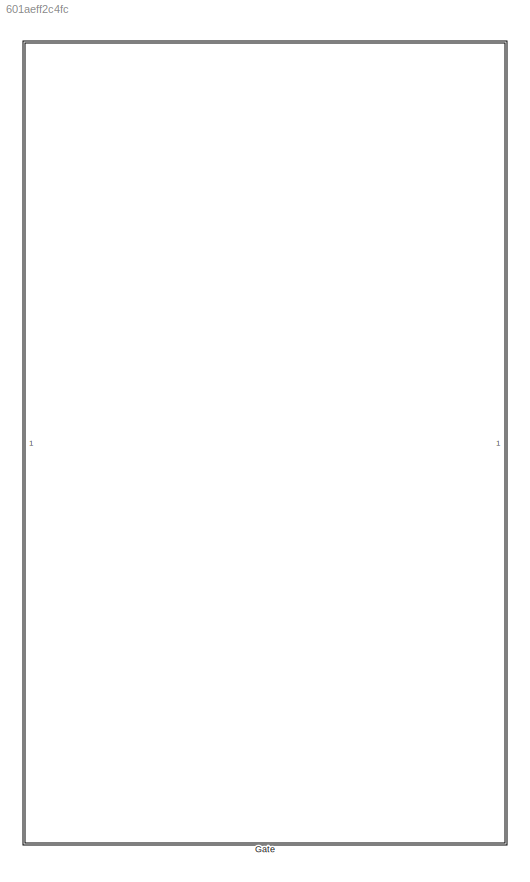
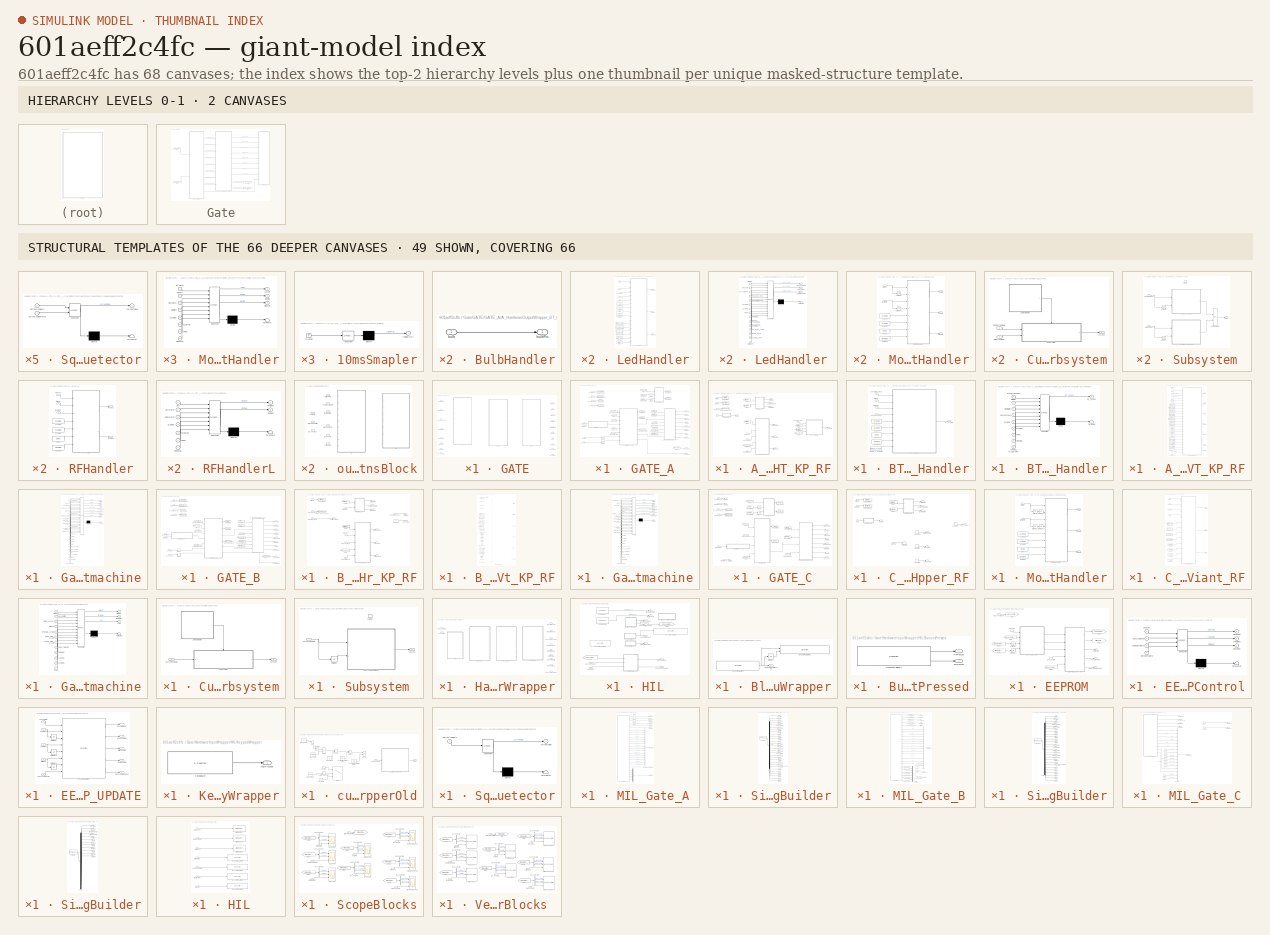
[diagram: thumbnail index - top-2 hierarchy levels (2 canvases) + 49 structural-template representatives of the remaining 66 canvases]
MODEL slx_601aeff2c4fc
KIND model
CONFIG AbsTol = auto
CONFIG FixedStep = 0.001
CONFIG MaxStep = auto
CONFIG MinStep = auto
CONFIG RelTol = 1e-3
CONFIG SampleTimeConstraint = Unconstrained
CONFIG Solver = FixedStepDiscrete
CONFIG SolverMode = Auto
CONFIG SolverName = FixedStepDiscrete
CONFIG StartTime = 0.0
CONFIG StopTime = 100
BLOCK [SubSystem] Gate
  Ports = []
  RequestExecContextInheritance = off
  Variant = off
BLOCK [From] Gate/From
  GotoTag = passwordOut
BLOCK [From] Gate/From1
  GotoTag = passAssigned
BLOCK [SubSystem] Gate/GATE
  OverrideUsingVariant = VariantB
  Ports = [8, 10]
  RequestExecContextInheritance = off
  Variant = on
  VariantControl = Variant1
BLOCK [Outport] Gate/GATE/ BT_TxChar
  IconDisplay = Port number
  Port = 8
BLOCK [Outport] Gate/GATE/ CommonMotorPin
  IconDisplay = Port number
  Port = 5
BLOCK [Outport] Gate/GATE/ LeftMotorPin
  IconDisplay = Port number
  Port = 4
BLOCK [Outport] Gate/GATE/ bulbPin
  IconDisplay = Port number
  Port = 7
BLOCK [Outport] Gate/GATE/ greenLedPin
  IconDisplay = Port number
BLOCK [Outport] Gate/GATE/ redLedPin
  IconDisplay = Port number
  Port = 2
BLOCK [Outport] Gate/GATE/ rightMotorPin
  IconDisplay = Port number
  Port = 6
BLOCK [Outport] Gate/GATE/ yellowLedPin
  IconDisplay = Port number
  Port = 3
BLOCK [Inport] Gate/GATE/BtCharReceived 
  IconDisplay = Port number
  Port = 2
BLOCK [SubSystem] Gate/GATE/GATE_A
  Ports = [8, 10]
  RequestExecContextInheritance = off
  Variant = off
  VariantControl = VariantA
BLOCK [SubSystem] Gate/GATE/GATE_A/A_HardwareOutputWrapper_BT_KP_RF
  Ports = [8, 8]
  RequestExecContextInheritance = off
  Variant = off
  VariantControl = Variant1
BLOCK [Inport] Gate/GATE/GATE_A/A_HardwareOutputWrapper_BT_KP_RF/BTCharReceived
  IconDisplay = Port number
  Port = 7
BLOCK [Outport] Gate/GATE/GATE_A/A_HardwareOutputWrapper_BT_KP_RF/BT_TxChar
  IconDisplay = Port number
  Port = 8
BLOCK [SubSystem] Gate/GATE/GATE_A/A_HardwareOutputWrapper_BT_KP_RF/BT_TxHandler
  Ports = [4, 1]
  RequestExecContextInheritance = off
  Variant = off
BLOCK [Inport] Gate/GATE/GATE_A/A_HardwareOutputWrapper_BT_KP_RF/BT_TxHandler/BTCharReceived
  IconDisplay = Port number
BLOCK [Outport] Gate/GATE/GATE_A/A_HardwareOutputWrapper_BT_KP_RF/BT_TxHandler/BT_TxChar
  IconDisplay = Port number
BLOCK [SubSystem] Gate/GATE/GATE_A/A_HardwareOutputWrapper_BT_KP_RF/BT_TxHandler/BT_TxHandler
  ErrorFcn = Stateflow.Translate.translate
  PermitHierarchicalResolution = ParametersOnly
  Ports = [9, 1]
  RequestExecContextInheritance = off
  SFBlockType = Chart
  TreatAsAtomicUnit = on
  Variant = off
BLOCK [Demux] Gate/GATE/GATE_A/A_HardwareOutputWrapper_BT_KP_RF/BT_TxHandler/BT_TxHandler/ Demux 
  Outputs = 1
  Ports = [1, 1]
BLOCK [S-Function] Gate/GATE/GATE_A/A_HardwareOutputWrapper_BT_KP_RF/BT_TxHandler/BT_TxHandler/ SFunction 
  EnableBusSupport = on
  FunctionName = sf_sfun
  PortCounts = [9 2]
  Ports = [9, 2]
  SFunctionDeploymentMode = off
  Tag = Stateflow S-Function gate_V29_2016a 26
BLOCK [Terminator] Gate/GATE/GATE_A/A_HardwareOutputWrapper_BT_KP_RF/BT_TxHandler/BT_TxHandler/ Terminator 
BLOCK [Inport] Gate/GATE/GATE_A/A_HardwareOutputWrapper_BT_KP_RF/BT_TxHandler/BT_TxHandler/BTCharReceived
  IconDisplay = Port number
BLOCK [Outport] Gate/GATE/GATE_A/A_HardwareOutputWrapper_BT_KP_RF/BT_TxHandler/BT_TxHandler/BT_TxChar
  IconDisplay = Port number
BLOCK [Inport] Gate/GATE/GATE_A/A_HardwareOutputWrapper_BT_KP_RF/BT_TxHandler/BT_TxHandler/CLOSED
  IconDisplay = Port number
  Port = 5
BLOCK [Inport] Gate/GATE/GATE_A/A_HardwareOutputWrapper_BT_KP_RF/BT_TxHandler/BT_TxHandler/CLOSING
  IconDisplay = Port number
  Port = 6
BLOCK [Inport] Gate/GATE/GATE_A/A_HardwareOutputWrapper_BT_KP_RF/BT_TxHandler/BT_TxHandler/OPEN
  IconDisplay = Port number
  Port = 7
BLOCK [Inport] Gate/GATE/GATE_A/A_HardwareOutputWrapper_BT_KP_RF/BT_TxHandler/BT_TxHandler/OPENING
  IconDisplay = Port number
  Port = 8
BLOCK [Inport] Gate/GATE/GATE_A/A_HardwareOutputWrapper_BT_KP_RF/BT_TxHandler/BT_TxHandler/PassSuccess
  IconDisplay = Port number
  Port = 4
BLOCK [Inport] Gate/GATE/GATE_A/A_HardwareOutputWrapper_BT_KP_RF/BT_TxHandler/BT_TxHandler/WRONG_PASSWORD
  IconDisplay = Port number
  Port = 9
BLOCK [Inport] Gate/GATE/GATE_A/A_HardwareOutputWrapper_BT_KP_RF/BT_TxHandler/BT_TxHandler/leftMotor
  IconDisplay = Port number
  Port = 2
BLOCK [Inport] Gate/GATE/GATE_A/A_HardwareOutputWrapper_BT_KP_RF/BT_TxHandler/BT_TxHandler/rightMotor
  IconDisplay = Port number
  Port = 3
BLOCK [Constant] Gate/GATE/GATE_A/A_HardwareOutputWrapper_BT_KP_RF/BT_TxHandler/CLOSED
  SampleTime = -1
  Value = CLOSED
BLOCK [Constant] Gate/GATE/GATE_A/A_HardwareOutputWrapper_BT_KP_RF/BT_TxHandler/CLOSING
  SampleTime = -1
  Value = CLOSING
BLOCK [Constant] Gate/GATE/GATE_A/A_HardwareOutputWrapper_BT_KP_RF/BT_TxHandler/OPEN
  SampleTime = -1
  Value = OPEN
BLOCK [Constant] Gate/GATE/GATE_A/A_HardwareOutputWrapper_BT_KP_RF/BT_TxHandler/OPENING
  SampleTime = -1
  Value = OPENING
BLOCK [Inport] Gate/GATE/GATE_A/A_HardwareOutputWrapper_BT_KP_RF/BT_TxHandler/PassSuccess
  IconDisplay = Port number
  Port = 4
BLOCK [Constant] Gate/GATE/GATE_A/A_HardwareOutputWrapper_BT_KP_RF/BT_TxHandler/WRONG_PASSWORD
  SampleTime = -1
  Value = WRONG_PASSWORD
BLOCK [Inport] Gate/GATE/GATE_A/A_HardwareOutputWrapper_BT_KP_RF/BT_TxHandler/leftMotor
  IconDisplay = Port number
  Port = 2
BLOCK [Inport] Gate/GATE/GATE_A/A_HardwareOutputWrapper_BT_KP_RF/BT_TxHandler/rightMotor
  IconDisplay = Port number
  Port = 3
BLOCK [SubSystem] Gate/GATE/GATE_A/A_HardwareOutputWrapper_BT_KP_RF/BulbHandler
  Ports = [1, 1]
  RequestExecContextInheritance = off
  Variant = off
BLOCK [Inport] Gate/GATE/GATE_A/A_HardwareOutputWrapper_BT_KP_RF/BulbHandler/bulb
  IconDisplay = Port number
BLOCK [Outport] Gate/GATE/GATE_A/A_HardwareOutputWrapper_BT_KP_RF/BulbHandler/bulbPin
  IconDisplay = Port number
BLOCK [Outport] Gate/GATE/GATE_A/A_HardwareOutputWrapper_BT_KP_RF/CommonMotorPin
  IconDisplay = Port number
  Port = 5
BLOCK [From] Gate/GATE/GATE_A/A_HardwareOutputWrapper_BT_KP_RF/From
  GotoTag = leftMotor
BLOCK [From] Gate/GATE/GATE_A/A_HardwareOutputWrapper_BT_KP_RF/From1
  GotoTag = leftMotor
BLOCK [From] Gate/GATE/GATE_A/A_HardwareOutputWrapper_BT_KP_RF/From2
  GotoTag = rightMotor
BLOCK [From] Gate/GATE/GATE_A/A_HardwareOutputWrapper_BT_KP_RF/From4
  GotoTag = leftMotor
BLOCK [From] Gate/GATE/GATE_A/A_HardwareOutputWrapper_BT_KP_RF/From5
  GotoTag = rightMotor
BLOCK [From] Gate/GATE/GATE_A/A_HardwareOutputWrapper_BT_KP_RF/From6
  GotoTag = PassSuccess
BLOCK [From] Gate/GATE/GATE_A/A_HardwareOutputWrapper_BT_KP_RF/From7
  GotoTag = PassSuccess
BLOCK [Goto] Gate/GATE/GATE_A/A_HardwareOutputWrapper_BT_KP_RF/Goto_PassSuccess
  GotoTag = PassSuccess
BLOCK [Goto] Gate/GATE/GATE_A/A_HardwareOutputWrapper_BT_KP_RF/Goto_leftMotor
  GotoTag = leftMotor
BLOCK [Goto] Gate/GATE/GATE_A/A_HardwareOutputWrapper_BT_KP_RF/Goto_rightMotor
  GotoTag = rightMotor
BLOCK [Inport] Gate/GATE/GATE_A/A_HardwareOutputWrapper_BT_KP_RF/KpCharPressed
  IconDisplay = Port number
  Port = 6
BLOCK [SubSystem] Gate/GATE/GATE_A/A_HardwareOutputWrapper_BT_KP_RF/LedHandler
  Ports = [5, 3]
  RequestExecContextInheritance = off
  Variant = off
BLOCK [Constant] Gate/GATE/GATE_A/A_HardwareOutputWrapper_BT_KP_RF/LedHandler/CLOSED
  SampleTime = -1
  Value = CLOSED
BLOCK [Constant] Gate/GATE/GATE_A/A_HardwareOutputWrapper_BT_KP_RF/LedHandler/CLOSE_CHAR
  SampleTime = -1
  Value = CLOSE_CHAR
BLOCK [Constant] Gate/GATE/GATE_A/A_HardwareOutputWrapper_BT_KP_RF/LedHandler/CLOSING
  SampleTime = -1
  Value = CLOSING
BLOCK [Inport] Gate/GATE/GATE_A/A_HardwareOutputWrapper_BT_KP_RF/LedHandler/KpCharPressed
  IconDisplay = Port number
  Port = 5
BLOCK [SubSystem] Gate/GATE/GATE_A/A_HardwareOutputWrapper_BT_KP_RF/LedHandler/LedHandler
  ErrorFcn = Stateflow.Translate.translate
  PermitHierarchicalResolution = ParametersOnly
  Ports = [15, 3]
  RequestExecContextInheritance = off
  SFBlockType = Chart
  TreatAsAtomicUnit = on
  Variant = off
BLOCK [Demux] Gate/GATE/GATE_A/A_HardwareOutputWrapper_BT_KP_RF/LedHandler/LedHandler/ Demux 
  Outputs = 1
  Ports = [1, 1]
BLOCK [S-Function] Gate/GATE/GATE_A/A_HardwareOutputWrapper_BT_KP_RF/LedHandler/LedHandler/ SFunction 
  EnableBusSupport = on
  FunctionName = sf_sfun
  PortCounts = [15 4]
  Ports = [15, 4]
  SFunctionDeploymentMode = off
  Tag = Stateflow S-Function gate_V29_2016a 27
BLOCK [Terminator] Gate/GATE/GATE_A/A_HardwareOutputWrapper_BT_KP_RF/LedHandler/LedHandler/ Terminator 
BLOCK [Inport] Gate/GATE/GATE_A/A_HardwareOutputWrapper_BT_KP_RF/LedHandler/LedHandler/CLOSED
  IconDisplay = Port number
  Port = 6
BLOCK [Inport] Gate/GATE/GATE_A/A_HardwareOutputWrapper_BT_KP_RF/LedHandler/LedHandler/CLOSE_CHAR
  IconDisplay = Port number
  Port = 14
BLOCK [Inport] Gate/GATE/GATE_A/A_HardwareOutputWrapper_BT_KP_RF/LedHandler/LedHandler/CLOSING
  IconDisplay = Port number
  Port = 7
BLOCK [Inport] Gate/GATE/GATE_A/A_HardwareOutputWrapper_BT_KP_RF/LedHandler/LedHandler/KpCharPressed
  IconDisplay = Port number
  Port = 5
BLOCK [Inport] Gate/GATE/GATE_A/A_HardwareOutputWrapper_BT_KP_RF/LedHandler/LedHandler/NO_PASS_ASSIG
  IconDisplay = Port number
  Port = 12
BLOCK [Inport] Gate/GATE/GATE_A/A_HardwareOutputWrapper_BT_KP_RF/LedHandler/LedHandler/OPEN
  IconDisplay = Port number
  Port = 8
BLOCK [Inport] Gate/GATE/GATE_A/A_HardwareOutputWrapper_BT_KP_RF/LedHandler/LedHandler/OPENING
  IconDisplay = Port number
  Port = 9
BLOCK [Inport] Gate/GATE/GATE_A/A_HardwareOutputWrapper_BT_KP_RF/LedHandler/LedHandler/OPEN_CHAR
  IconDisplay = Port number
  Port = 13
BLOCK [Inport] Gate/GATE/GATE_A/A_HardwareOutputWrapper_BT_KP_RF/LedHandler/LedHandler/PASSWORD_VERIFIED
  IconDisplay = Port number
  Port = 11
BLOCK [Inport] Gate/GATE/GATE_A/A_HardwareOutputWrapper_BT_KP_RF/LedHandler/LedHandler/PassAssigned
  IconDisplay = Port number
  Port = 3
BLOCK [Inport] Gate/GATE/GATE_A/A_HardwareOutputWrapper_BT_KP_RF/LedHandler/LedHandler/PassSuccess
  IconDisplay = Port number
  Port = 4
BLOCK [Inport] Gate/GATE/GATE_A/A_HardwareOutputWrapper_BT_KP_RF/LedHandler/LedHandler/PassSw
  IconDisplay = Port number
  Port = 2
BLOCK [Inport] Gate/GATE/GATE_A/A_HardwareOutputWrapper_BT_KP_RF/LedHandler/LedHandler/TIMEOUT
  IconDisplay = Port number
  Port = 15
BLOCK [Inport] Gate/GATE/GATE_A/A_HardwareOutputWrapper_BT_KP_RF/LedHandler/LedHandler/WRONG_PASSWORD
  IconDisplay = Port number
  Port = 10
BLOCK [Outport] Gate/GATE/GATE_A/A_HardwareOutputWrapper_BT_KP_RF/LedHandler/LedHandler/greenLedPin
  IconDisplay = Port number
BLOCK [Inport] Gate/GATE/GATE_A/A_HardwareOutputWrapper_BT_KP_RF/LedHandler/LedHandler/leftMotor
  IconDisplay = Port number
BLOCK [Outport] Gate/GATE/GATE_A/A_HardwareOutputWrapper_BT_KP_RF/LedHandler/LedHandler/redLedPin
  IconDisplay = Port number
  Port = 2
BLOCK [Outport] Gate/GATE/GATE_A/A_HardwareOutputWrapper_BT_KP_RF/LedHandler/LedHandler/yellowLedPin
  IconDisplay = Port number
  Port = 3
BLOCK [Constant] Gate/GATE/GATE_A/A_HardwareOutputWrapper_BT_KP_RF/LedHandler/NO_PASS_ASSIG
  SampleTime = -1
  Value = NO_PASS_ASSIG
BLOCK [Constant] Gate/GATE/GATE_A/A_HardwareOutputWrapper_BT_KP_RF/LedHandler/OPEN
  SampleTime = -1
  Value = OPEN
BLOCK [Constant] Gate/GATE/GATE_A/A_HardwareOutputWrapper_BT_KP_RF/LedHandler/OPENING
  SampleTime = -1
  Value = OPENING
BLOCK [Constant] Gate/GATE/GATE_A/A_HardwareOutputWrapper_BT_KP_RF/LedHandler/OPEN_CHAR
  SampleTime = -1
  Value = OPEN_CHAR
BLOCK [Constant] Gate/GATE/GATE_A/A_HardwareOutputWrapper_BT_KP_RF/LedHandler/PASSWORD_VERIFIED
  SampleTime = -1
  Value = PASSWORD_VERIFIED
BLOCK [Inport] Gate/GATE/GATE_A/A_HardwareOutputWrapper_BT_KP_RF/LedHandler/PassAssigned
  IconDisplay = Port number
  Port = 3
BLOCK [Inport] Gate/GATE/GATE_A/A_HardwareOutputWrapper_BT_KP_RF/LedHandler/PassSuccess
  IconDisplay = Port number
  Port = 4
BLOCK [Constant] Gate/GATE/GATE_A/A_HardwareOutputWrapper_BT_KP_RF/LedHandler/TIMEOUT
  SampleTime = -1
  Value = TIMEOUT
BLOCK [Constant] Gate/GATE/GATE_A/A_HardwareOutputWrapper_BT_KP_RF/LedHandler/WRONG_PASSWORD
  SampleTime = -1
  Value = WRONG_PASSWORD
BLOCK [Outport] Gate/GATE/GATE_A/A_HardwareOutputWrapper_BT_KP_RF/LedHandler/greenLedPin
  IconDisplay = Port number
BLOCK [Inport] Gate/GATE/GATE_A/A_HardwareOutputWrapper_BT_KP_RF/LedHandler/leftMotor
  IconDisplay = Port number
BLOCK [Inport] Gate/GATE/GATE_A/A_HardwareOutputWrapper_BT_KP_RF/LedHandler/passSw
  IconDisplay = Port number
  Port = 2
BLOCK [Outport] Gate/GATE/GATE_A/A_HardwareOutputWrapper_BT_KP_RF/LedHandler/redLedPin
  IconDisplay = Port number
  Port = 2
BLOCK [Outport] Gate/GATE/GATE_A/A_HardwareOutputWrapper_BT_KP_RF/LedHandler/yellowLedPin
  IconDisplay = Port number
  Port = 3
BLOCK [Outport] Gate/GATE/GATE_A/A_HardwareOutputWrapper_BT_KP_RF/LeftMotorPin
  IconDisplay = Port number
  Port = 4
BLOCK [SubSystem] Gate/GATE/GATE_A/A_HardwareOutputWrapper_BT_KP_RF/MotorHandler
  Ports = [2, 3]
  RequestExecContextInheritance = off
  Variant = off
BLOCK [Constant] Gate/GATE/GATE_A/A_HardwareOutputWrapper_BT_KP_RF/MotorHandler/CLOSED
  SampleTime = -1
  Value = CLOSED
BLOCK [Constant] Gate/GATE/GATE_A/A_HardwareOutputWrapper_BT_KP_RF/MotorHandler/CLOSING
  SampleTime = -1
  Value = CLOSING
BLOCK [Outport] Gate/GATE/GATE_A/A_HardwareOutputWrapper_BT_KP_RF/MotorHandler/ComPin
  IconDisplay = Port number
  Port = 2
BLOCK [Outport] Gate/GATE/GATE_A/A_HardwareOutputWrapper_BT_KP_RF/MotorHandler/LeftPin
  IconDisplay = Port number
BLOCK [SubSystem] Gate/GATE/GATE_A/A_HardwareOutputWrapper_BT_KP_RF/MotorHandler/MotorsHandler
  ErrorFcn = Stateflow.Translate.translate
  PermitHierarchicalResolution = ParametersOnly
  Ports = [8, 3]
  RequestExecContextInheritance = off
  SFBlockType = Chart
  TreatAsAtomicUnit = on
  Variant = off
BLOCK [Demux] Gate/GATE/GATE_A/A_HardwareOutputWrapper_BT_KP_RF/MotorHandler/MotorsHandler/ Demux 
  Outputs = 1
  Ports = [1, 1]
BLOCK [S-Function] Gate/GATE/GATE_A/A_HardwareOutputWrapper_BT_KP_RF/MotorHandler/MotorsHandler/ SFunction 
  EnableBusSupport = on
  FunctionName = sf_sfun
  PortCounts = [8 4]
  Ports = [8, 4]
  SFunctionDeploymentMode = off
  Tag = Stateflow S-Function gate_V29_2016a 28
BLOCK [Terminator] Gate/GATE/GATE_A/A_HardwareOutputWrapper_BT_KP_RF/MotorHandler/MotorsHandler/ Terminator 
BLOCK [Inport] Gate/GATE/GATE_A/A_HardwareOutputWrapper_BT_KP_RF/MotorHandler/MotorsHandler/CLOSED
  IconDisplay = Port number
  Port = 5
BLOCK [Inport] Gate/GATE/GATE_A/A_HardwareOutputWrapper_BT_KP_RF/MotorHandler/MotorsHandler/CLOSING
  IconDisplay = Port number
  Port = 6
BLOCK [Outport] Gate/GATE/GATE_A/A_HardwareOutputWrapper_BT_KP_RF/MotorHandler/MotorsHandler/ComPin
  IconDisplay = Port number
  Port = 2
BLOCK [Outport] Gate/GATE/GATE_A/A_HardwareOutputWrapper_BT_KP_RF/MotorHandler/MotorsHandler/LeftPin
  IconDisplay = Port number
BLOCK [Inport] Gate/GATE/GATE_A/A_HardwareOutputWrapper_BT_KP_RF/MotorHandler/MotorsHandler/OPEN
  IconDisplay = Port number
  Port = 7
BLOCK [Inport] Gate/GATE/GATE_A/A_HardwareOutputWrapper_BT_KP_RF/MotorHandler/MotorsHandler/OPENING
  IconDisplay = Port number
  Port = 8
BLOCK [Outport] Gate/GATE/GATE_A/A_HardwareOutputWrapper_BT_KP_RF/MotorHandler/MotorsHandler/RightPin
  IconDisplay = Port number
  Port = 3
BLOCK [Inport] Gate/GATE/GATE_A/A_HardwareOutputWrapper_BT_KP_RF/MotorHandler/MotorsHandler/leftMotor
  IconDisplay = Port number
BLOCK [Inport] Gate/GATE/GATE_A/A_HardwareOutputWrapper_BT_KP_RF/MotorHandler/MotorsHandler/oldLeft
  IconDisplay = Port number
  Port = 2
BLOCK [Inport] Gate/GATE/GATE_A/A_HardwareOutputWrapper_BT_KP_RF/MotorHandler/MotorsHandler/oldRight
  IconDisplay = Port number
  Port = 4
BLOCK [Inport] Gate/GATE/GATE_A/A_HardwareOutputWrapper_BT_KP_RF/MotorHandler/MotorsHandler/rightMotor
  IconDisplay = Port number
  Port = 3
BLOCK [Constant] Gate/GATE/GATE_A/A_HardwareOutputWrapper_BT_KP_RF/MotorHandler/OPEN
  SampleTime = -1
  Value = OPEN
BLOCK [Constant] Gate/GATE/GATE_A/A_HardwareOutputWrapper_BT_KP_RF/MotorHandler/OPENING
  SampleTime = -1
  Value = OPENING
BLOCK [Outport] Gate/GATE/GATE_A/A_HardwareOutputWrapper_BT_KP_RF/MotorHandler/RightPin
  IconDisplay = Port number
  Port = 3
BLOCK [UnitDelay] Gate/GATE/GATE_A/A_HardwareOutputWrapper_BT_KP_RF/MotorHandler/Unit Delay
  InputProcessing = Elements as channels (sample based)
  SampleTime = -1
BLOCK [UnitDelay] Gate/GATE/GATE_A/A_HardwareOutputWrapper_BT_KP_RF/MotorHandler/Unit Delay1
  InputProcessing = Elements as channels (sample based)
  SampleTime = -1
BLOCK [Inport] Gate/GATE/GATE_A/A_HardwareOutputWrapper_BT_KP_RF/MotorHandler/leftMotor
  IconDisplay = Port number
BLOCK [Inport] Gate/GATE/GATE_A/A_HardwareOutputWrapper_BT_KP_RF/MotorHandler/rightMotor
  IconDisplay = Port number
  Port = 2
BLOCK [Inport] Gate/GATE/GATE_A/A_HardwareOutputWrapper_BT_KP_RF/PassAssigned
  IconDisplay = Port number
  Port = 5
BLOCK [Inport] Gate/GATE/GATE_A/A_HardwareOutputWrapper_BT_KP_RF/PassSuccess
  IconDisplay = Port number
  Port = 8
BLOCK [Inport] Gate/GATE/GATE_A/A_HardwareOutputWrapper_BT_KP_RF/bulb
  IconDisplay = Port number
  Port = 3
BLOCK [Outport] Gate/GATE/GATE_A/A_HardwareOutputWrapper_BT_KP_RF/bulbPin
  IconDisplay = Port number
  Port = 7
BLOCK [Outport] Gate/GATE/GATE_A/A_HardwareOutputWrapper_BT_KP_RF/greenLedPin
  IconDisplay = Port number
BLOCK [Inport] Gate/GATE/GATE_A/A_HardwareOutputWrapper_BT_KP_RF/leftMotor
  IconDisplay = Port number
BLOCK [Inport] Gate/GATE/GATE_A/A_HardwareOutputWrapper_BT_KP_RF/passSw
  IconDisplay = Port number
  Port = 4
BLOCK [Outport] Gate/GATE/GATE_A/A_HardwareOutputWrapper_BT_KP_RF/redLedPin
  IconDisplay = Port number
  Port = 2
BLOCK [Inport] Gate/GATE/GATE_A/A_HardwareOutputWrapper_BT_KP_RF/rightMotor
  IconDisplay = Port number
  Port = 2
BLOCK [Outport] Gate/GATE/GATE_A/A_HardwareOutputWrapper_BT_KP_RF/rightMotorPin
  IconDisplay = Port number
  Port = 6
BLOCK [Outport] Gate/GATE/GATE_A/A_HardwareOutputWrapper_BT_KP_RF/yellowLedPin
  IconDisplay = Port number
  Port = 3
BLOCK [SubSystem] Gate/GATE/GATE_A/A_Variant_BT_KP_RF
  Ports = [8, 6]
  RequestExecContextInheritance = off
  Variant = off
  VariantControl = Variant
BLOCK [Inport] Gate/GATE/GATE_A/A_Variant_BT_KP_RF/BtCharReceived
  IconDisplay = Port number
  Port = 6
BLOCK [Constant] Gate/GATE/GATE_A/A_Variant_BT_KP_RF/CLOSED
  SampleTime = -1
  Value = CLOSED
BLOCK [Constant] Gate/GATE/GATE_A/A_Variant_BT_KP_RF/CLOSE_CHAR
  SampleTime = -1
  Value = CLOSE_CHAR
BLOCK [Constant] Gate/GATE/GATE_A/A_Variant_BT_KP_RF/CLOSE_SIDE_VALUE
  SampleTime = -1
  Value = CLOSE_SIDE_VALUE
BLOCK [Constant] Gate/GATE/GATE_A/A_Variant_BT_KP_RF/CLOSING
  SampleTime = -1
  Value = CLOSING
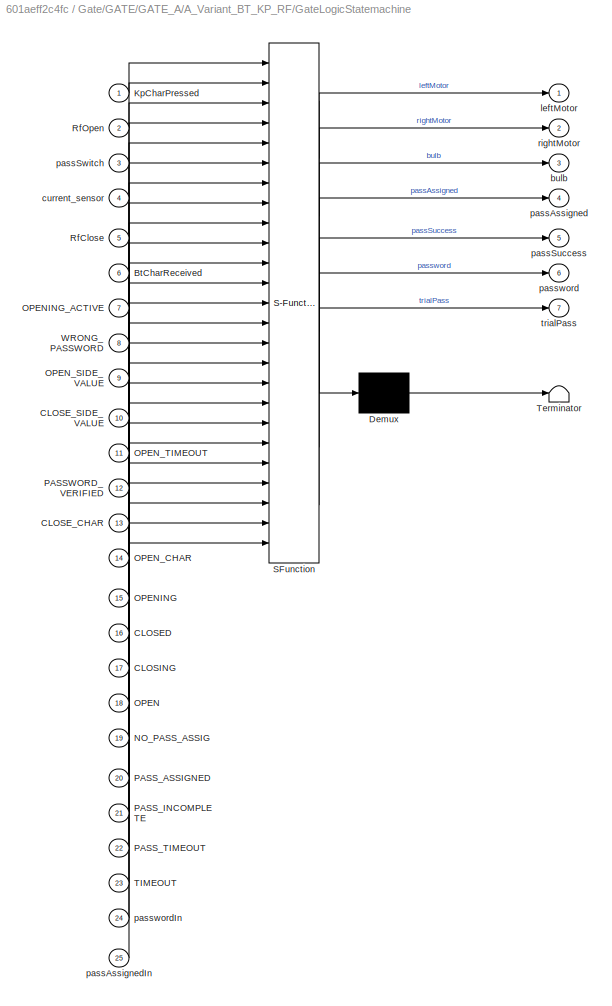
BLOCK [SubSystem] Gate/GATE/GATE_A/A_Variant_BT_KP_RF/GateLogicStatemachine
  ErrorFcn = Stateflow.Translate.translate
  PermitHierarchicalResolution = ParametersOnly
  Ports = [25, 7]
  RequestExecContextInheritance = off
  SFBlockType = Chart
  TreatAsAtomicUnit = on
  Variant = off
BLOCK [Demux] Gate/GATE/GATE_A/A_Variant_BT_KP_RF/GateLogicStatemachine/ Demux 
  Outputs = 1
  Ports = [1, 1]
BLOCK [S-Function] Gate/GATE/GATE_A/A_Variant_BT_KP_RF/GateLogicStatemachine/ SFunction 
  EnableBusSupport = on
  FunctionName = sf_sfun
  PortCounts = [25 8]
  Ports = [25, 8]
  SFunctionDeploymentMode = off
  Tag = Stateflow S-Function gate_V29_2016a 12
BLOCK [Terminator] Gate/GATE/GATE_A/A_Variant_BT_KP_RF/GateLogicStatemachine/ Terminator 
BLOCK [Inport] Gate/GATE/GATE_A/A_Variant_BT_KP_RF/GateLogicStatemachine/BtCharReceived
  IconDisplay = Port number
  Port = 6
BLOCK [Inport] Gate/GATE/GATE_A/A_Variant_BT_KP_RF/GateLogicStatemachine/CLOSED
  IconDisplay = Port number
  Port = 16
BLOCK [Inport] Gate/GATE/GATE_A/A_Variant_BT_KP_RF/GateLogicStatemachine/CLOSE_CHAR
  IconDisplay = Port number
  Port = 13
BLOCK [Inport] Gate/GATE/GATE_A/A_Variant_BT_KP_RF/GateLogicStatemachine/CLOSE_SIDE_VALUE
  IconDisplay = Port number
  Port = 10
BLOCK [Inport] Gate/GATE/GATE_A/A_Variant_BT_KP_RF/GateLogicStatemachine/CLOSING
  IconDisplay = Port number
  Port = 17
BLOCK [Inport] Gate/GATE/GATE_A/A_Variant_BT_KP_RF/GateLogicStatemachine/KpCharPressed
  IconDisplay = Port number
BLOCK [Inport] Gate/GATE/GATE_A/A_Variant_BT_KP_RF/GateLogicStatemachine/NO_PASS_ASSIG
  IconDisplay = Port number
  Port = 19
BLOCK [Inport] Gate/GATE/GATE_A/A_Variant_BT_KP_RF/GateLogicStatemachine/OPEN
  IconDisplay = Port number
  Port = 18
BLOCK [Inport] Gate/GATE/GATE_A/A_Variant_BT_KP_RF/GateLogicStatemachine/OPENING
  IconDisplay = Port number
  Port = 15
BLOCK [Inport] Gate/GATE/GATE_A/A_Variant_BT_KP_RF/GateLogicStatemachine/OPENING_ACTIVE
  IconDisplay = Port number
  Port = 7
BLOCK [Inport] Gate/GATE/GATE_A/A_Variant_BT_KP_RF/GateLogicStatemachine/OPEN_CHAR
  IconDisplay = Port number
  Port = 14
BLOCK [Inport] Gate/GATE/GATE_A/A_Variant_BT_KP_RF/GateLogicStatemachine/OPEN_SIDE_VALUE
  IconDisplay = Port number
  Port = 9
BLOCK [Inport] Gate/GATE/GATE_A/A_Variant_BT_KP_RF/GateLogicStatemachine/OPEN_TIMEOUT
  IconDisplay = Port number
  Port = 11
BLOCK [Inport] Gate/GATE/GATE_A/A_Variant_BT_KP_RF/GateLogicStatemachine/PASSWORD_VERIFIED
  IconDisplay = Port number
  Port = 12
BLOCK [Inport] Gate/GATE/GATE_A/A_Variant_BT_KP_RF/GateLogicStatemachine/PASS_ASSIGNED
  IconDisplay = Port number
  Port = 20
BLOCK [Inport] Gate/GATE/GATE_A/A_Variant_BT_KP_RF/GateLogicStatemachine/PASS_INCOMPLETE
  IconDisplay = Port number
  Port = 21
BLOCK [Inport] Gate/GATE/GATE_A/A_Variant_BT_KP_RF/GateLogicStatemachine/PASS_TIMEOUT
  IconDisplay = Port number
  Port = 22
BLOCK [Inport] Gate/GATE/GATE_A/A_Variant_BT_KP_RF/GateLogicStatemachine/RfClose
  IconDisplay = Port number
  Port = 5
BLOCK [Inport] Gate/GATE/GATE_A/A_Variant_BT_KP_RF/GateLogicStatemachine/RfOpen
  IconDisplay = Port number
  Port = 2
BLOCK [Inport] Gate/GATE/GATE_A/A_Variant_BT_KP_RF/GateLogicStatemachine/TIMEOUT
  IconDisplay = Port number
  Port = 23
BLOCK [Inport] Gate/GATE/GATE_A/A_Variant_BT_KP_RF/GateLogicStatemachine/WRONG_PASSWORD
  IconDisplay = Port number
  Port = 8
BLOCK [Outport] Gate/GATE/GATE_A/A_Variant_BT_KP_RF/GateLogicStatemachine/bulb
  IconDisplay = Port number
  Port = 3
BLOCK [Inport] Gate/GATE/GATE_A/A_Variant_BT_KP_RF/GateLogicStatemachine/current_sensor
  IconDisplay = Port number
  Port = 4
BLOCK [Outport] Gate/GATE/GATE_A/A_Variant_BT_KP_RF/GateLogicStatemachine/leftMotor
  IconDisplay = Port number
BLOCK [Outport] Gate/GATE/GATE_A/A_Variant_BT_KP_RF/GateLogicStatemachine/passAssigned
  IconDisplay = Port number
  Port = 4
BLOCK [Inport] Gate/GATE/GATE_A/A_Variant_BT_KP_RF/GateLogicStatemachine/passAssignedIn
  IconDisplay = Port number
  Port = 25
BLOCK [Outport] Gate/GATE/GATE_A/A_Variant_BT_KP_RF/GateLogicStatemachine/passSuccess
  IconDisplay = Port number
  Port = 5
BLOCK [Inport] Gate/GATE/GATE_A/A_Variant_BT_KP_RF/GateLogicStatemachine/passSwitch
  IconDisplay = Port number
  Port = 3
BLOCK [Outport] Gate/GATE/GATE_A/A_Variant_BT_KP_RF/GateLogicStatemachine/password
  IconDisplay = Port number
  Port = 6
BLOCK [Inport] Gate/GATE/GATE_A/A_Variant_BT_KP_RF/GateLogicStatemachine/passwordIn
  IconDisplay = Port number
  Port = 24
BLOCK [Outport] Gate/GATE/GATE_A/A_Variant_BT_KP_RF/GateLogicStatemachine/rightMotor
  IconDisplay = Port number
  Port = 2
BLOCK [Outport] Gate/GATE/GATE_A/A_Variant_BT_KP_RF/GateLogicStatemachine/trialPass
  IconDisplay = Port number
  Port = 7
BLOCK [Inport] Gate/GATE/GATE_A/A_Variant_BT_KP_RF/KpCharPressed
  IconDisplay = Port number
BLOCK [Constant] Gate/GATE/GATE_A/A_Variant_BT_KP_RF/NO_PASS_ASSIG
  SampleTime = -1
  Value = NO_PASS_ASSIG
BLOCK [Constant] Gate/GATE/GATE_A/A_Variant_BT_KP_RF/OPEN
  SampleTime = -1
  Value = OPEN
BLOCK [Constant] Gate/GATE/GATE_A/A_Variant_BT_KP_RF/OPENING
  SampleTime = -1
  Value = OPENING
BLOCK [Constant] Gate/GATE/GATE_A/A_Variant_BT_KP_RF/OPENING_ACTIVE
  SampleTime = -1
  Value = OPENING_ACTIVE
BLOCK [Constant] Gate/GATE/GATE_A/A_Variant_BT_KP_RF/OPEN_CHAR
  SampleTime = -1
  Value = OPEN_CHAR
BLOCK [Constant] Gate/GATE/GATE_A/A_Variant_BT_KP_RF/OPEN_SIDE_VALUE
  SampleTime = -1
  Value = OPEN_SIDE_VALUE
BLOCK [Constant] Gate/GATE/GATE_A/A_Variant_BT_KP_RF/OPEN_TIMEOUT
  SampleTime = -1
  Value = OPEN_TIMEOUT
BLOCK [Constant] Gate/GATE/GATE_A/A_Variant_BT_KP_RF/PASSWORD_VERIFIED
  SampleTime = -1
  Value = PASSWORD_VERIFIED
BLOCK [Constant] Gate/GATE/GATE_A/A_Variant_BT_KP_RF/PASS_ASSIGNED
  SampleTime = -1
  Value = PASS_ASSIGNED
BLOCK [Constant] Gate/GATE/GATE_A/A_Variant_BT_KP_RF/PASS_INCOMPLETE
  SampleTime = -1
  Value = PASS_INCOMPLETE
BLOCK [Constant] Gate/GATE/GATE_A/A_Variant_BT_KP_RF/PASS_TIMEOUT
  SampleTime = -1
  Value = PASS_TIMEOUT
BLOCK [Outport] Gate/GATE/GATE_A/A_Variant_BT_KP_RF/PassAssigned
  IconDisplay = Port number
  Port = 4
BLOCK [Outport] Gate/GATE/GATE_A/A_Variant_BT_KP_RF/PassSuccess
  IconDisplay = Port number
  Port = 5
BLOCK [Inport] Gate/GATE/GATE_A/A_Variant_BT_KP_RF/RfClose
  IconDisplay = Port number
  Port = 5
BLOCK [Inport] Gate/GATE/GATE_A/A_Variant_BT_KP_RF/RfOpen
  IconDisplay = Port number
  Port = 2
BLOCK [Constant] Gate/GATE/GATE_A/A_Variant_BT_KP_RF/TIMEOUT
  SampleTime = -1
  Value = TIMEOUT
BLOCK [Terminator] Gate/GATE/GATE_A/A_Variant_BT_KP_RF/Terminator
BLOCK [Constant] Gate/GATE/GATE_A/A_Variant_BT_KP_RF/WRONG_PASSWORD
  SampleTime = -1
  Value = WRONG_PASSWORD
BLOCK [Outport] Gate/GATE/GATE_A/A_Variant_BT_KP_RF/bulb
  IconDisplay = Port number
  Port = 3
BLOCK [Inport] Gate/GATE/GATE_A/A_Variant_BT_KP_RF/current_sensor
  IconDisplay = Port number
  Port = 4
BLOCK [Outport] Gate/GATE/GATE_A/A_Variant_BT_KP_RF/leftMotor
  IconDisplay = Port number
BLOCK [Inport] Gate/GATE/GATE_A/A_Variant_BT_KP_RF/passAssignedIn
  IconDisplay = Port number
  Port = 8
BLOCK [Inport] Gate/GATE/GATE_A/A_Variant_BT_KP_RF/passSwitch
  IconDisplay = Port number
  Port = 3
BLOCK [Inport] Gate/GATE/GATE_A/A_Variant_BT_KP_RF/passwordIn
  IconDisplay = Port number
  Port = 7
BLOCK [Outport] Gate/GATE/GATE_A/A_Variant_BT_KP_RF/passwordOut
  IconDisplay = Port number
  Port = 6
BLOCK [Outport] Gate/GATE/GATE_A/A_Variant_BT_KP_RF/rightMotor
  IconDisplay = Port number
  Port = 2
BLOCK [Outport] Gate/GATE/GATE_A/BT_TxChar
  IconDisplay = Port number
  Port = 8
BLOCK [Inport] Gate/GATE/GATE_A/BtCharReceived
  IconDisplay = Port number
  Port = 2
BLOCK [Outport] Gate/GATE/GATE_A/CommonMotorPin
  IconDisplay = Port number
  Port = 5
BLOCK [SubSystem] Gate/GATE/GATE_A/CurrentFilterSubsystem
  Ports = [2, 1]
  RequestExecContextInheritance = off
  Variant = off
BLOCK [SubSystem] Gate/GATE/GATE_A/CurrentFilterSubsystem/10msSmapler
  ErrorFcn = Stateflow.Translate.translate
  PermitHierarchicalResolution = ParametersOnly
  Ports = [0, 1]
  RequestExecContextInheritance = off
  SFBlockType = Chart
  TreatAsAtomicUnit = on
  Variant = off
BLOCK [Demux] Gate/GATE/GATE_A/CurrentFilterSubsystem/10msSmapler/ Demux 
  Outputs = 1
  Ports = [1, 1]
BLOCK [Ground] Gate/GATE/GATE_A/CurrentFilterSubsystem/10msSmapler/ Ground 
BLOCK [S-Function] Gate/GATE/GATE_A/CurrentFilterSubsystem/10msSmapler/ SFunction 
  EnableBusSupport = on
  FunctionName = sf_sfun
  PortCounts = [1 1]
  Ports = [1, 1]
  SFunctionDeploymentMode = off
  Tag = Stateflow S-Function gate_V29_2016a 2
BLOCK [Outport] Gate/GATE/GATE_A/CurrentFilterSubsystem/10msSmapler/triggerOn()
  IconDisplay = Port number
BLOCK [SubSystem] Gate/GATE/GATE_A/CurrentFilterSubsystem/Subsystem
  Ports = [2, 1, 0, 1]
  RequestExecContextInheritance = off
  Variant = off
BLOCK [Logic] Gate/GATE/GATE_A/CurrentFilterSubsystem/Subsystem/Logical Operator
  AllPortsSameDT = off
  Operator = OR
  OutDataTypeStr = boolean
  Ports = [2, 1]
BLOCK [SubSystem] Gate/GATE/GATE_A/CurrentFilterSubsystem/Subsystem/SquareWaveDetector
  ErrorFcn = Stateflow.Translate.translate
  PermitHierarchicalResolution = ParametersOnly
  Ports = [2, 1]
  RequestExecContextInheritance = off
  SFBlockType = Chart
  TreatAsAtomicUnit = on
  Variant = off
BLOCK [Demux] Gate/GATE/GATE_A/CurrentFilterSubsystem/Subsystem/SquareWaveDetector/ Demux 
  Outputs = 1
  Ports = [1, 1]
BLOCK [S-Function] Gate/GATE/GATE_A/CurrentFilterSubsystem/Subsystem/SquareWaveDetector/ SFunction 
  EnableBusSupport = on
  FunctionName = sf_sfun
  PortCounts = [2 2]
  Ports = [2, 2]
  SFunctionDeploymentMode = off
  Tag = Stateflow S-Function gate_V29_2016a 3
BLOCK [Terminator] Gate/GATE/GATE_A/CurrentFilterSubsystem/Subsystem/SquareWaveDetector/ Terminator 
BLOCK [Inport] Gate/GATE/GATE_A/CurrentFilterSubsystem/Subsystem/SquareWaveDetector/CurrentAnalogIn
  IconDisplay = Port number
BLOCK [Inport] Gate/GATE/GATE_A/CurrentFilterSubsystem/Subsystem/SquareWaveDetector/CurrentAnalogInOld
  IconDisplay = Port number
  Port = 2
BLOCK [Outport] Gate/GATE/GATE_A/CurrentFilterSubsystem/Subsystem/SquareWaveDetector/currentValue
  IconDisplay = Port number
BLOCK [SubSystem] Gate/GATE/GATE_A/CurrentFilterSubsystem/Subsystem/SquareWaveDetector1
  ErrorFcn = Stateflow.Translate.translate
  PermitHierarchicalResolution = ParametersOnly
  Ports = [2, 1]
  RequestExecContextInheritance = off
  SFBlockType = Chart
  TreatAsAtomicUnit = on
  Variant = off
BLOCK [Demux] Gate/GATE/GATE_A/CurrentFilterSubsystem/Subsystem/SquareWaveDetector1/ Demux 
  Outputs = 1
  Ports = [1, 1]
BLOCK [S-Function] Gate/GATE/GATE_A/CurrentFilterSubsystem/Subsystem/SquareWaveDetector1/ SFunction 
  EnableBusSupport = on
  FunctionName = sf_sfun
  PortCounts = [2 2]
  Ports = [2, 2]
  SFunctionDeploymentMode = off
  Tag = Stateflow S-Function gate_V29_2016a 4
BLOCK [Terminator] Gate/GATE/GATE_A/CurrentFilterSubsystem/Subsystem/SquareWaveDetector1/ Terminator 
BLOCK [Inport] Gate/GATE/GATE_A/CurrentFilterSubsystem/Subsystem/SquareWaveDetector1/CurrentAnalogIn
  IconDisplay = Port number
BLOCK [Inport] Gate/GATE/GATE_A/CurrentFilterSubsystem/Subsystem/SquareWaveDetector1/CurrentAnalogInOld
  IconDisplay = Port number
  Port = 2
BLOCK [Outport] Gate/GATE/GATE_A/CurrentFilterSubsystem/Subsystem/SquareWaveDetector1/currentValue
  IconDisplay = Port number
BLOCK [TriggerPort] Gate/GATE/GATE_A/CurrentFilterSubsystem/Subsystem/Trigger
  PortDimensions = 1
  Ports = []
  StatesWhenEnabling = held
  TriggerType = function-call
  VariantControl = Variant
BLOCK [UnitDelay] Gate/GATE/GATE_A/CurrentFilterSubsystem/Subsystem/Unit Delay
  InputProcessing = Elements as channels (sample based)
  SampleTime = -1
BLOCK [UnitDelay] Gate/GATE/GATE_A/CurrentFilterSubsystem/Subsystem/Unit Delay1
  InputProcessing = Elements as channels (sample based)
  SampleTime = -1
BLOCK [Outport] Gate/GATE/GATE_A/CurrentFilterSubsystem/Subsystem/current
  IconDisplay = Port number
BLOCK [Inport] Gate/GATE/GATE_A/CurrentFilterSubsystem/Subsystem/leftCurrentRaw
  IconDisplay = Port number
  Port = 2
BLOCK [Inport] Gate/GATE/GATE_A/CurrentFilterSubsystem/Subsystem/rightCurrentRaw
  IconDisplay = Port number
BLOCK [Outport] Gate/GATE/GATE_A/CurrentFilterSubsystem/current
  IconDisplay = Port number
BLOCK [Inport] Gate/GATE/GATE_A/CurrentFilterSubsystem/leftCurrentRaw
  IconDisplay = Port number
  Port = 2
BLOCK [Inport] Gate/GATE/GATE_A/CurrentFilterSubsystem/rightCurrentRaw
  IconDisplay = Port number
BLOCK [From] Gate/GATE/GATE_A/From
  GotoTag = RFOpen
BLOCK [From] Gate/GATE/GATE_A/From1
  GotoTag = RFClose
BLOCK [From] Gate/GATE/GATE_A/From2
  GotoTag = passAssigned
BLOCK [From] Gate/GATE/GATE_A/From3
  GotoTag = RFPressedOut
BLOCK [From] Gate/GATE/GATE_A/From4
  GotoTag = passAssigned
BLOCK [From] Gate/GATE/GATE_A/From_BtCharReceived
  GotoTag = BtCharReceived
BLOCK [From] Gate/GATE/GATE_A/From_BtCharReceived1
  GotoTag = BtCharReceived
BLOCK [From] Gate/GATE/GATE_A/From_KpCharPressed
  GotoTag = KpCharPressed
BLOCK [From] Gate/GATE/GATE_A/From_KpCharPressed1
  GotoTag = KpCharPressed
BLOCK [From] Gate/GATE/GATE_A/From_PassSw
  GotoTag = PassSw
BLOCK [From] Gate/GATE/GATE_A/From_PassSw1
  GotoTag = PassSw
BLOCK [From] Gate/GATE/GATE_A/From_leftMotor
  GotoTag = leftMotor
BLOCK [From] Gate/GATE/GATE_A/From_leftMotor1
  GotoTag = leftMotor
BLOCK [From] Gate/GATE/GATE_A/From_rightMotor
  GotoTag = rightMotor
BLOCK [From] Gate/GATE/GATE_A/From_rightMotor1
  GotoTag = rightMotor
BLOCK [Goto] Gate/GATE/GATE_A/Goto_BtCharReceived
  GotoTag = BtCharReceived
BLOCK [Goto] Gate/GATE/GATE_A/Goto_KpCharPressed
  GotoTag = KpCharPressed
BLOCK [Goto] Gate/GATE/GATE_A/Goto_PassSw
  GotoTag = PassSw
BLOCK [Goto] Gate/GATE/GATE_A/Goto_RFClose
  GotoTag = RFClose
BLOCK [Goto] Gate/GATE/GATE_A/Goto_RFOpen
  GotoTag = RFOpen
BLOCK [Goto] Gate/GATE/GATE_A/Goto_RFOpen1
  GotoTag = RFPressedOut
BLOCK [Goto] Gate/GATE/GATE_A/Goto_leftMotor
  GotoTag = leftMotor
BLOCK [Goto] Gate/GATE/GATE_A/Goto_passAssigned
  GotoTag = passAssigned
BLOCK [Goto] Gate/GATE/GATE_A/Goto_rightMotor
  GotoTag = rightMotor
BLOCK [Inport] Gate/GATE/GATE_A/KpCharPressed
  IconDisplay = Port number
BLOCK [Outport] Gate/GATE/GATE_A/LeftMotorPin
  IconDisplay = Port number
  Port = 4
BLOCK [Inport] Gate/GATE/GATE_A/PassSwPressedOut
  IconDisplay = Port number
  Port = 3
BLOCK [SubSystem] Gate/GATE/GATE_A/RFHandler
  Ports = [3, 2]
  RequestExecContextInheritance = off
  Variant = off
BLOCK [Constant] Gate/GATE/GATE_A/RFHandler/CLOSED
  SampleTime = -1
  Value = CLOSED
BLOCK [Constant] Gate/GATE/GATE_A/RFHandler/CLOSING
  SampleTime = -1
  Value = CLOSING
BLOCK [Constant] Gate/GATE/GATE_A/RFHandler/OPEN
  SampleTime = -1
  Value = OPEN
BLOCK [Constant] Gate/GATE/GATE_A/RFHandler/OPENING
  SampleTime = -1
  Value = OPENING
BLOCK [Outport] Gate/GATE/GATE_A/RFHandler/RFClose
  IconDisplay = Port number
  Port = 2
BLOCK [SubSystem] Gate/GATE/GATE_A/RFHandler/RFHandlerL
  ErrorFcn = Stateflow.Translate.translate
  PermitHierarchicalResolution = ParametersOnly
  Ports = [7, 2]
  RequestExecContextInheritance = off
  SFBlockType = Chart
  TreatAsAtomicUnit = on
  Variant = off
BLOCK [Demux] Gate/GATE/GATE_A/RFHandler/RFHandlerL/ Demux 
  Outputs = 1
  Ports = [1, 1]
BLOCK [S-Function] Gate/GATE/GATE_A/RFHandler/RFHandlerL/ SFunction 
  EnableBusSupport = on
  FunctionName = sf_sfun
  PortCounts = [7 3]
  Ports = [7, 3]
  SFunctionDeploymentMode = off
  Tag = Stateflow S-Function gate_V29_2016a 5
BLOCK [Terminator] Gate/GATE/GATE_A/RFHandler/RFHandlerL/ Terminator 
BLOCK [Inport] Gate/GATE/GATE_A/RFHandler/RFHandlerL/CLOSED
  IconDisplay = Port number
  Port = 4
BLOCK [Inport] Gate/GATE/GATE_A/RFHandler/RFHandlerL/CLOSING
  IconDisplay = Port number
  Port = 5
BLOCK [Inport] Gate/GATE/GATE_A/RFHandler/RFHandlerL/OPEN
  IconDisplay = Port number
  Port = 6
BLOCK [Inport] Gate/GATE/GATE_A/RFHandler/RFHandlerL/OPENING
  IconDisplay = Port number
  Port = 7
BLOCK [Outport] Gate/GATE/GATE_A/RFHandler/RFHandlerL/RFClose
  IconDisplay = Port number
BLOCK [Outport] Gate/GATE/GATE_A/RFHandler/RFHandlerL/RFOpen
  IconDisplay = Port number
  Port = 2
BLOCK [Inport] Gate/GATE/GATE_A/RFHandler/RFHandlerL/btn
  IconDisplay = Port number
BLOCK [Inport] Gate/GATE/GATE_A/RFHandler/RFHandlerL/leftMotor
  IconDisplay = Port number
  Port = 2
BLOCK [Inport] Gate/GATE/GATE_A/RFHandler/RFHandlerL/rightMotor
  IconDisplay = Port number
  Port = 3
BLOCK [Inport] Gate/GATE/GATE_A/RFHandler/RFInput
  IconDisplay = Port number
BLOCK [Outport] Gate/GATE/GATE_A/RFHandler/RFOpen
  IconDisplay = Port number
BLOCK [Inport] Gate/GATE/GATE_A/RFHandler/leftMotor
  IconDisplay = Port number
  Port = 2
BLOCK [Inport] Gate/GATE/GATE_A/RFHandler/rightMotor
  IconDisplay = Port number
  Port = 3
BLOCK [Inport] Gate/GATE/GATE_A/RFPressedOut
  IconDisplay = Port number
  Port = 4
BLOCK [UnitDelay] Gate/GATE/GATE_A/Unit Delay
  InputProcessing = Elements as channels (sample based)
  SampleTime = -1
BLOCK [UnitDelay] Gate/GATE/GATE_A/Unit Delay1
  InputProcessing = Elements as channels (sample based)
  SampleTime = -1
BLOCK [UnitDelay] Gate/GATE/GATE_A/Unit Delay2
  InputProcessing = Elements as channels (sample based)
  SampleTime = -1
BLOCK [UnitDelay] Gate/GATE/GATE_A/Unit Delay3
  InputProcessing = Elements as channels (sample based)
  SampleTime = -1
BLOCK [Outport] Gate/GATE/GATE_A/bulbPin
  IconDisplay = Port number
  Port = 7
BLOCK [Outport] Gate/GATE/GATE_A/greenLedPin
  IconDisplay = Port number
BLOCK [Inport] Gate/GATE/GATE_A/leftCurrentRaw
  IconDisplay = Port number
  Port = 6
BLOCK [Outport] Gate/GATE/GATE_A/passAssigned
  IconDisplay = Port number
  Port = 9
BLOCK [Inport] Gate/GATE/GATE_A/passAssignedIn
  IconDisplay = Port number
  Port = 8
BLOCK [Inport] Gate/GATE/GATE_A/passwordIn
  IconDisplay = Port number
  Port = 7
BLOCK [Outport] Gate/GATE/GATE_A/passwordOut
  IconDisplay = Port number
  Port = 10
BLOCK [Outport] Gate/GATE/GATE_A/redLedPin
  IconDisplay = Port number
  Port = 2
BLOCK [Inport] Gate/GATE/GATE_A/rightCurrentRaw
  IconDisplay = Port number
  Port = 5
BLOCK [Outport] Gate/GATE/GATE_A/rightMotorPin
  IconDisplay = Port number
  Port = 6
BLOCK [Outport] Gate/GATE/GATE_A/yellowLedPin
  IconDisplay = Port number
  Port = 3
BLOCK [SubSystem] Gate/GATE/GATE_B
  Ports = [8, 10]
  RequestExecContextInheritance = off
  Variant = off
  VariantControl = VariantB
BLOCK [Outport] Gate/GATE/GATE_B/BT_TxChar
  IconDisplay = Port number
  Port = 8
BLOCK [SubSystem] Gate/GATE/GATE_B/B_HardwareOutputWrapper_KP_RF
  Ports = [8, 8]
  RequestExecContextInheritance = off
  Variant = off
  VariantControl = Variant2
BLOCK [Inport] Gate/GATE/GATE_B/B_HardwareOutputWrapper_KP_RF/BTCharReceived
  IconDisplay = Port number
  Port = 7
BLOCK [Outport] Gate/GATE/GATE_B/B_HardwareOutputWrapper_KP_RF/BT_TxChar
  IconDisplay = Port number
  Port = 8
BLOCK [Outport] Gate/GATE/GATE_B/B_HardwareOutputWrapper_KP_RF/CommonMotorPin
  IconDisplay = Port number
  Port = 5
BLOCK [Constant] Gate/GATE/GATE_B/B_HardwareOutputWrapper_KP_RF/Constant
  SampleTime = -1
  Value = 0
BLOCK [From] Gate/GATE/GATE_B/B_HardwareOutputWrapper_KP_RF/From
  GotoTag = leftMotor
BLOCK [From] Gate/GATE/GATE_B/B_HardwareOutputWrapper_KP_RF/From1
  GotoTag = leftMotor
BLOCK [From] Gate/GATE/GATE_B/B_HardwareOutputWrapper_KP_RF/From6
  GotoTag = PassSuccess
BLOCK [Goto] Gate/GATE/GATE_B/B_HardwareOutputWrapper_KP_RF/Goto_PassSuccess
  GotoTag = PassSuccess
BLOCK [Goto] Gate/GATE/GATE_B/B_HardwareOutputWrapper_KP_RF/Goto_leftMotor
  GotoTag = leftMotor
BLOCK [Inport] Gate/GATE/GATE_B/B_HardwareOutputWrapper_KP_RF/KpCharPressed
  IconDisplay = Port number
  Port = 6
BLOCK [SubSystem] Gate/GATE/GATE_B/B_HardwareOutputWrapper_KP_RF/LedHandler
  Ports = [5, 3]
  RequestExecContextInheritance = off
  Variant = off
BLOCK [Constant] Gate/GATE/GATE_B/B_HardwareOutputWrapper_KP_RF/LedHandler/CLOSED
  SampleTime = -1
  Value = CLOSED
BLOCK [Constant] Gate/GATE/GATE_B/B_HardwareOutputWrapper_KP_RF/LedHandler/CLOSE_CHAR
  SampleTime = -1
  Value = CLOSE_CHAR
BLOCK [Constant] Gate/GATE/GATE_B/B_HardwareOutputWrapper_KP_RF/LedHandler/CLOSING
  SampleTime = -1
  Value = CLOSING
BLOCK [Inport] Gate/GATE/GATE_B/B_HardwareOutputWrapper_KP_RF/LedHandler/KpCharPressed
  IconDisplay = Port number
  Port = 5
BLOCK [SubSystem] Gate/GATE/GATE_B/B_HardwareOutputWrapper_KP_RF/LedHandler/LedHandler
  ErrorFcn = Stateflow.Translate.translate
  PermitHierarchicalResolution = ParametersOnly
  Ports = [15, 3]
  RequestExecContextInheritance = off
  SFBlockType = Chart
  TreatAsAtomicUnit = on
  Variant = off
BLOCK [Demux] Gate/GATE/GATE_B/B_HardwareOutputWrapper_KP_RF/LedHandler/LedHandler/ Demux 
  Outputs = 1
  Ports = [1, 1]
BLOCK [S-Function] Gate/GATE/GATE_B/B_HardwareOutputWrapper_KP_RF/LedHandler/LedHandler/ SFunction 
  EnableBusSupport = on
  FunctionName = sf_sfun
  PortCounts = [15 4]
  Ports = [15, 4]
  SFunctionDeploymentMode = off
  Tag = Stateflow S-Function gate_V29_2016a 16
BLOCK [Terminator] Gate/GATE/GATE_B/B_HardwareOutputWrapper_KP_RF/LedHandler/LedHandler/ Terminator 
BLOCK [Inport] Gate/GATE/GATE_B/B_HardwareOutputWrapper_KP_RF/LedHandler/LedHandler/CLOSED
  IconDisplay = Port number
  Port = 6
BLOCK [Inport] Gate/GATE/GATE_B/B_HardwareOutputWrapper_KP_RF/LedHandler/LedHandler/CLOSE_CHAR
  IconDisplay = Port number
  Port = 14
BLOCK [Inport] Gate/GATE/GATE_B/B_HardwareOutputWrapper_KP_RF/LedHandler/LedHandler/CLOSING
  IconDisplay = Port number
  Port = 7
BLOCK [Inport] Gate/GATE/GATE_B/B_HardwareOutputWrapper_KP_RF/LedHandler/LedHandler/KpCharPressed
  IconDisplay = Port number
  Port = 5
BLOCK [Inport] Gate/GATE/GATE_B/B_HardwareOutputWrapper_KP_RF/LedHandler/LedHandler/NO_PASS_ASSIG
  IconDisplay = Port number
  Port = 12
BLOCK [Inport] Gate/GATE/GATE_B/B_HardwareOutputWrapper_KP_RF/LedHandler/LedHandler/OPEN
  IconDisplay = Port number
  Port = 8
BLOCK [Inport] Gate/GATE/GATE_B/B_HardwareOutputWrapper_KP_RF/LedHandler/LedHandler/OPENING
  IconDisplay = Port number
  Port = 9
BLOCK [Inport] Gate/GATE/GATE_B/B_HardwareOutputWrapper_KP_RF/LedHandler/LedHandler/OPEN_CHAR
  IconDisplay = Port number
  Port = 13
BLOCK [Inport] Gate/GATE/GATE_B/B_HardwareOutputWrapper_KP_RF/LedHandler/LedHandler/PASSWORD_VERIFIED
  IconDisplay = Port number
  Port = 11
BLOCK [Inport] Gate/GATE/GATE_B/B_HardwareOutputWrapper_KP_RF/LedHandler/LedHandler/PassAssigned
  IconDisplay = Port number
  Port = 3
BLOCK [Inport] Gate/GATE/GATE_B/B_HardwareOutputWrapper_KP_RF/LedHandler/LedHandler/PassSuccess
  IconDisplay = Port number
  Port = 4
BLOCK [Inport] Gate/GATE/GATE_B/B_HardwareOutputWrapper_KP_RF/LedHandler/LedHandler/PassSw
  IconDisplay = Port number
  Port = 2
BLOCK [Inport] Gate/GATE/GATE_B/B_HardwareOutputWrapper_KP_RF/LedHandler/LedHandler/TIMEOUT
  IconDisplay = Port number
  Port = 15
BLOCK [Inport] Gate/GATE/GATE_B/B_HardwareOutputWrapper_KP_RF/LedHandler/LedHandler/WRONG_PASSWORD
  IconDisplay = Port number
  Port = 10
BLOCK [Outport] Gate/GATE/GATE_B/B_HardwareOutputWrapper_KP_RF/LedHandler/LedHandler/greenLedPin_BOOL
  IconDisplay = Port number
BLOCK [Inport] Gate/GATE/GATE_B/B_HardwareOutputWrapper_KP_RF/LedHandler/LedHandler/leftMotor
  IconDisplay = Port number
BLOCK [Outport] Gate/GATE/GATE_B/B_HardwareOutputWrapper_KP_RF/LedHandler/LedHandler/redLedPin_BOOL
  IconDisplay = Port number
  Port = 2
BLOCK [Outport] Gate/GATE/GATE_B/B_HardwareOutputWrapper_KP_RF/LedHandler/LedHandler/yellowLedPin_BOOL
  IconDisplay = Port number
  Port = 3
BLOCK [Constant] Gate/GATE/GATE_B/B_HardwareOutputWrapper_KP_RF/LedHandler/NO_PASS_ASSIG
  SampleTime = -1
  Value = NO_PASS_ASSIG
BLOCK [Constant] Gate/GATE/GATE_B/B_HardwareOutputWrapper_KP_RF/LedHandler/OPEN
  SampleTime = -1
  Value = OPEN
BLOCK [Constant] Gate/GATE/GATE_B/B_HardwareOutputWrapper_KP_RF/LedHandler/OPENING
  SampleTime = -1
  Value = OPENING
BLOCK [Constant] Gate/GATE/GATE_B/B_HardwareOutputWrapper_KP_RF/LedHandler/OPEN_CHAR
  SampleTime = -1
  Value = OPEN_CHAR
BLOCK [Constant] Gate/GATE/GATE_B/B_HardwareOutputWrapper_KP_RF/LedHandler/PASSWORD_VERIFIED
  SampleTime = -1
  Value = PASSWORD_VERIFIED
BLOCK [Inport] Gate/GATE/GATE_B/B_HardwareOutputWrapper_KP_RF/LedHandler/PassAssigned
  IconDisplay = Port number
  Port = 3
BLOCK [Inport] Gate/GATE/GATE_B/B_HardwareOutputWrapper_KP_RF/LedHandler/PassSuccess
  IconDisplay = Port number
  Port = 4
BLOCK [Constant] Gate/GATE/GATE_B/B_HardwareOutputWrapper_KP_RF/LedHandler/TIMEOUT
  SampleTime = -1
  Value = TIMEOUT
BLOCK [Constant] Gate/GATE/GATE_B/B_HardwareOutputWrapper_KP_RF/LedHandler/WRONG_PASSWORD
  SampleTime = -1
  Value = WRONG_PASSWORD
BLOCK [Outport] Gate/GATE/GATE_B/B_HardwareOutputWrapper_KP_RF/LedHandler/greenLedPin
  IconDisplay = Port number
BLOCK [Inport] Gate/GATE/GATE_B/B_HardwareOutputWrapper_KP_RF/LedHandler/leftMotor
  IconDisplay = Port number
BLOCK [Inport] Gate/GATE/GATE_B/B_HardwareOutputWrapper_KP_RF/LedHandler/passSw
  IconDisplay = Port number
  Port = 2
BLOCK [Outport] Gate/GATE/GATE_B/B_HardwareOutputWrapper_KP_RF/LedHandler/redLedPin
  IconDisplay = Port number
  Port = 2
BLOCK [Outport] Gate/GATE/GATE_B/B_HardwareOutputWrapper_KP_RF/LedHandler/yellowLedPin
  IconDisplay = Port number
  Port = 3
BLOCK [Outport] Gate/GATE/GATE_B/B_HardwareOutputWrapper_KP_RF/LeftMotorPin
  IconDisplay = Port number
  Port = 4
BLOCK [SubSystem] Gate/GATE/GATE_B/B_HardwareOutputWrapper_KP_RF/MotorHandler
  Ports = [2, 3]
  RequestExecContextInheritance = off
  Variant = off
BLOCK [Constant] Gate/GATE/GATE_B/B_HardwareOutputWrapper_KP_RF/MotorHandler/CLOSED
  SampleTime = -1
  Value = CLOSED
BLOCK [Constant] Gate/GATE/GATE_B/B_HardwareOutputWrapper_KP_RF/MotorHandler/CLOSING
  SampleTime = -1
  Value = CLOSING
BLOCK [Outport] Gate/GATE/GATE_B/B_HardwareOutputWrapper_KP_RF/MotorHandler/ComPin
  IconDisplay = Port number
  Port = 2
BLOCK [Outport] Gate/GATE/GATE_B/B_HardwareOutputWrapper_KP_RF/MotorHandler/LeftPin
  IconDisplay = Port number
BLOCK [SubSystem] Gate/GATE/GATE_B/B_HardwareOutputWrapper_KP_RF/MotorHandler/MotorsHandler
  ErrorFcn = Stateflow.Translate.translate
  PermitHierarchicalResolution = ParametersOnly
  Ports = [8, 3]
  RequestExecContextInheritance = off
  SFBlockType = Chart
  TreatAsAtomicUnit = on
  Variant = off
BLOCK [Demux] Gate/GATE/GATE_B/B_HardwareOutputWrapper_KP_RF/MotorHandler/MotorsHandler/ Demux 
  Outputs = 1
  Ports = [1, 1]
BLOCK [S-Function] Gate/GATE/GATE_B/B_HardwareOutputWrapper_KP_RF/MotorHandler/MotorsHandler/ SFunction 
  EnableBusSupport = on
  FunctionName = sf_sfun
  PortCounts = [8 4]
  Ports = [8, 4]
  SFunctionDeploymentMode = off
  Tag = Stateflow S-Function gate_V29_2016a 19
BLOCK [Terminator] Gate/GATE/GATE_B/B_HardwareOutputWrapper_KP_RF/MotorHandler/MotorsHandler/ Terminator 
BLOCK [Inport] Gate/GATE/GATE_B/B_HardwareOutputWrapper_KP_RF/MotorHandler/MotorsHandler/CLOSED
  IconDisplay = Port number
  Port = 5
BLOCK [Inport] Gate/GATE/GATE_B/B_HardwareOutputWrapper_KP_RF/MotorHandler/MotorsHandler/CLOSING
  IconDisplay = Port number
  Port = 6
BLOCK [Outport] Gate/GATE/GATE_B/B_HardwareOutputWrapper_KP_RF/MotorHandler/MotorsHandler/ComMotorPin_BOOL
  IconDisplay = Port number
  Port = 2
BLOCK [Outport] Gate/GATE/GATE_B/B_HardwareOutputWrapper_KP_RF/MotorHandler/MotorsHandler/LeftMotorPin_BOOL
  IconDisplay = Port number
BLOCK [Inport] Gate/GATE/GATE_B/B_HardwareOutputWrapper_KP_RF/MotorHandler/MotorsHandler/OPEN
  IconDisplay = Port number
  Port = 7
BLOCK [Inport] Gate/GATE/GATE_B/B_HardwareOutputWrapper_KP_RF/MotorHandler/MotorsHandler/OPENING
  IconDisplay = Port number
  Port = 8
BLOCK [Outport] Gate/GATE/GATE_B/B_HardwareOutputWrapper_KP_RF/MotorHandler/MotorsHandler/RightMotorPin_BOOL
  IconDisplay = Port number
  Port = 3
BLOCK [Inport] Gate/GATE/GATE_B/B_HardwareOutputWrapper_KP_RF/MotorHandler/MotorsHandler/leftMotor
  IconDisplay = Port number
BLOCK [Inport] Gate/GATE/GATE_B/B_HardwareOutputWrapper_KP_RF/MotorHandler/MotorsHandler/oldLeft
  IconDisplay = Port number
  Port = 2
BLOCK [Inport] Gate/GATE/GATE_B/B_HardwareOutputWrapper_KP_RF/MotorHandler/MotorsHandler/oldRight
  IconDisplay = Port number
  Port = 4
BLOCK [Inport] Gate/GATE/GATE_B/B_HardwareOutputWrapper_KP_RF/MotorHandler/MotorsHandler/rightMotor
  IconDisplay = Port number
  Port = 3
BLOCK [Constant] Gate/GATE/GATE_B/B_HardwareOutputWrapper_KP_RF/MotorHandler/OPEN
  SampleTime = -1
  Value = OPEN
BLOCK [Constant] Gate/GATE/GATE_B/B_HardwareOutputWrapper_KP_RF/MotorHandler/OPENING
  SampleTime = -1
  Value = OPENING
BLOCK [Outport] Gate/GATE/GATE_B/B_HardwareOutputWrapper_KP_RF/MotorHandler/RightPin
  IconDisplay = Port number
  Port = 3
BLOCK [UnitDelay] Gate/GATE/GATE_B/B_HardwareOutputWrapper_KP_RF/MotorHandler/Unit Delay
  InputProcessing = Elements as channels (sample based)
  SampleTime = -1
BLOCK [UnitDelay] Gate/GATE/GATE_B/B_HardwareOutputWrapper_KP_RF/MotorHandler/Unit Delay1
  InputProcessing = Elements as channels (sample based)
  SampleTime = -1
BLOCK [Inport] Gate/GATE/GATE_B/B_HardwareOutputWrapper_KP_RF/MotorHandler/leftMotor
  IconDisplay = Port number
BLOCK [Inport] Gate/GATE/GATE_B/B_HardwareOutputWrapper_KP_RF/MotorHandler/rightMotor
  IconDisplay = Port number
  Port = 2
BLOCK [Inport] Gate/GATE/GATE_B/B_HardwareOutputWrapper_KP_RF/PassAssigned
  IconDisplay = Port number
  Port = 5
BLOCK [Inport] Gate/GATE/GATE_B/B_HardwareOutputWrapper_KP_RF/PassSuccess
  IconDisplay = Port number
  Port = 8
BLOCK [Terminator] Gate/GATE/GATE_B/B_HardwareOutputWrapper_KP_RF/Terminator
BLOCK [Inport] Gate/GATE/GATE_B/B_HardwareOutputWrapper_KP_RF/bulbPinIn_BOOL
  IconDisplay = Port number
  Port = 3
BLOCK [Outport] Gate/GATE/GATE_B/B_HardwareOutputWrapper_KP_RF/bulbPin_BOOL
  IconDisplay = Port number
  Port = 7
BLOCK [Outport] Gate/GATE/GATE_B/B_HardwareOutputWrapper_KP_RF/greenLedPin
  IconDisplay = Port number
BLOCK [Inport] Gate/GATE/GATE_B/B_HardwareOutputWrapper_KP_RF/leftMotor
  IconDisplay = Port number
BLOCK [Inport] Gate/GATE/GATE_B/B_HardwareOutputWrapper_KP_RF/passSw
  IconDisplay = Port number
  Port = 4
BLOCK [Outport] Gate/GATE/GATE_B/B_HardwareOutputWrapper_KP_RF/redLedPin
  IconDisplay = Port number
  Port = 2
BLOCK [Inport] Gate/GATE/GATE_B/B_HardwareOutputWrapper_KP_RF/rightMotor
  IconDisplay = Port number
  Port = 2
BLOCK [Outport] Gate/GATE/GATE_B/B_HardwareOutputWrapper_KP_RF/rightMotorPin
  IconDisplay = Port number
  Port = 6
BLOCK [Outport] Gate/GATE/GATE_B/B_HardwareOutputWrapper_KP_RF/yellowLedPin
  IconDisplay = Port number
  Port = 3
BLOCK [SubSystem] Gate/GATE/GATE_B/B_Variant_KP_RF
  Ports = [7, 6]
  RequestExecContextInheritance = off
  Variant = off
  VariantControl = Variant2
BLOCK [Inport] Gate/GATE/GATE_B/B_Variant_KP_RF/BtCharReceived
  IconDisplay = Port number
  Port = 5
BLOCK [Constant] Gate/GATE/GATE_B/B_Variant_KP_RF/CLOSED
  SampleTime = -1
  Value = CLOSED
BLOCK [Constant] Gate/GATE/GATE_B/B_Variant_KP_RF/CLOSE_CHAR
  SampleTime = -1
  Value = CLOSE_CHAR
BLOCK [Constant] Gate/GATE/GATE_B/B_Variant_KP_RF/CLOSE_SIDE_VALUE
  SampleTime = -1
  Value = CLOSE_SIDE_VALUE
BLOCK [Constant] Gate/GATE/GATE_B/B_Variant_KP_RF/CLOSING
  SampleTime = -1
  Value = CLOSING
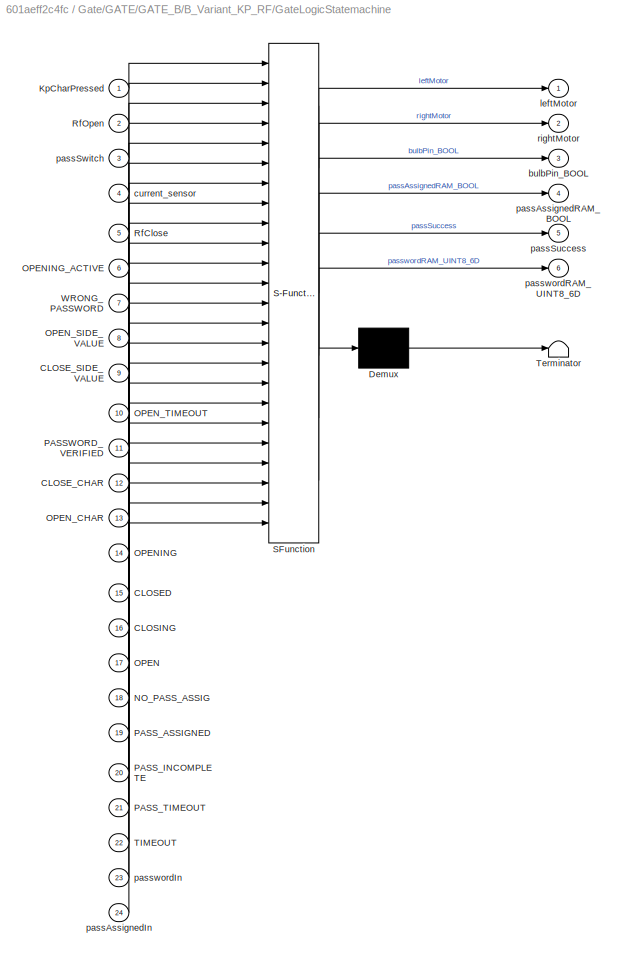
BLOCK [SubSystem] Gate/GATE/GATE_B/B_Variant_KP_RF/GateLogicStatemachine
  ErrorFcn = Stateflow.Translate.translate
  PermitHierarchicalResolution = ParametersOnly
  Ports = [24, 6]
  RequestExecContextInheritance = off
  SFBlockType = Chart
  TreatAsAtomicUnit = on
  Variant = off
BLOCK [Demux] Gate/GATE/GATE_B/B_Variant_KP_RF/GateLogicStatemachine/ Demux 
  Outputs = 1
  Ports = [1, 1]
BLOCK [S-Function] Gate/GATE/GATE_B/B_Variant_KP_RF/GateLogicStatemachine/ SFunction 
  EnableBusSupport = on
  FunctionName = sf_sfun
  PortCounts = [24 7]
  Ports = [24, 7]
  SFunctionDeploymentMode = off
  Tag = Stateflow S-Function gate_V29_2016a 20
BLOCK [Terminator] Gate/GATE/GATE_B/B_Variant_KP_RF/GateLogicStatemachine/ Terminator 
BLOCK [Inport] Gate/GATE/GATE_B/B_Variant_KP_RF/GateLogicStatemachine/CLOSED
  IconDisplay = Port number
  Port = 15
BLOCK [Inport] Gate/GATE/GATE_B/B_Variant_KP_RF/GateLogicStatemachine/CLOSE_CHAR
  IconDisplay = Port number
  Port = 12
BLOCK [Inport] Gate/GATE/GATE_B/B_Variant_KP_RF/GateLogicStatemachine/CLOSE_SIDE_VALUE
  IconDisplay = Port number
  Port = 9
BLOCK [Inport] Gate/GATE/GATE_B/B_Variant_KP_RF/GateLogicStatemachine/CLOSING
  IconDisplay = Port number
  Port = 16
BLOCK [Inport] Gate/GATE/GATE_B/B_Variant_KP_RF/GateLogicStatemachine/KpCharPressed
  IconDisplay = Port number
BLOCK [Inport] Gate/GATE/GATE_B/B_Variant_KP_RF/GateLogicStatemachine/NO_PASS_ASSIG
  IconDisplay = Port number
  Port = 18
BLOCK [Inport] Gate/GATE/GATE_B/B_Variant_KP_RF/GateLogicStatemachine/OPEN
  IconDisplay = Port number
  Port = 17
BLOCK [Inport] Gate/GATE/GATE_B/B_Variant_KP_RF/GateLogicStatemachine/OPENING
  IconDisplay = Port number
  Port = 14
BLOCK [Inport] Gate/GATE/GATE_B/B_Variant_KP_RF/GateLogicStatemachine/OPENING_ACTIVE
  IconDisplay = Port number
  Port = 6
BLOCK [Inport] Gate/GATE/GATE_B/B_Variant_KP_RF/GateLogicStatemachine/OPEN_CHAR
  IconDisplay = Port number
  Port = 13
BLOCK [Inport] Gate/GATE/GATE_B/B_Variant_KP_RF/GateLogicStatemachine/OPEN_SIDE_VALUE
  IconDisplay = Port number
  Port = 8
BLOCK [Inport] Gate/GATE/GATE_B/B_Variant_KP_RF/GateLogicStatemachine/OPEN_TIMEOUT
  IconDisplay = Port number
  Port = 10
BLOCK [Inport] Gate/GATE/GATE_B/B_Variant_KP_RF/GateLogicStatemachine/PASSWORD_VERIFIED
  IconDisplay = Port number
  Port = 11
BLOCK [Inport] Gate/GATE/GATE_B/B_Variant_KP_RF/GateLogicStatemachine/PASS_ASSIGNED
  IconDisplay = Port number
  Port = 19
BLOCK [Inport] Gate/GATE/GATE_B/B_Variant_KP_RF/GateLogicStatemachine/PASS_INCOMPLETE
  IconDisplay = Port number
  Port = 20
BLOCK [Inport] Gate/GATE/GATE_B/B_Variant_KP_RF/GateLogicStatemachine/PASS_TIMEOUT
  IconDisplay = Port number
  Port = 21
BLOCK [Inport] Gate/GATE/GATE_B/B_Variant_KP_RF/GateLogicStatemachine/RfClose
  IconDisplay = Port number
  Port = 5
BLOCK [Inport] Gate/GATE/GATE_B/B_Variant_KP_RF/GateLogicStatemachine/RfOpen
  IconDisplay = Port number
  Port = 2
BLOCK [Inport] Gate/GATE/GATE_B/B_Variant_KP_RF/GateLogicStatemachine/TIMEOUT
  IconDisplay = Port number
  Port = 22
BLOCK [Inport] Gate/GATE/GATE_B/B_Variant_KP_RF/GateLogicStatemachine/WRONG_PASSWORD
  IconDisplay = Port number
  Port = 7
BLOCK [Outport] Gate/GATE/GATE_B/B_Variant_KP_RF/GateLogicStatemachine/bulbPin_BOOL
  IconDisplay = Port number
  Port = 3
BLOCK [Inport] Gate/GATE/GATE_B/B_Variant_KP_RF/GateLogicStatemachine/current_sensor
  IconDisplay = Port number
  Port = 4
BLOCK [Outport] Gate/GATE/GATE_B/B_Variant_KP_RF/GateLogicStatemachine/leftMotor
  IconDisplay = Port number
BLOCK [Inport] Gate/GATE/GATE_B/B_Variant_KP_RF/GateLogicStatemachine/passAssignedIn
  IconDisplay = Port number
  Port = 24
BLOCK [Outport] Gate/GATE/GATE_B/B_Variant_KP_RF/GateLogicStatemachine/passAssignedRAM_BOOL
  IconDisplay = Port number
  Port = 4
BLOCK [Outport] Gate/GATE/GATE_B/B_Variant_KP_RF/GateLogicStatemachine/passSuccess
  IconDisplay = Port number
  Port = 5
BLOCK [Inport] Gate/GATE/GATE_B/B_Variant_KP_RF/GateLogicStatemachine/passSwitch
  IconDisplay = Port number
  Port = 3
BLOCK [Inport] Gate/GATE/GATE_B/B_Variant_KP_RF/GateLogicStatemachine/passwordIn
  IconDisplay = Port number
  Port = 23
BLOCK [Outport] Gate/GATE/GATE_B/B_Variant_KP_RF/GateLogicStatemachine/passwordRAM_UINT8_6D
  IconDisplay = Port number
  Port = 6
BLOCK [Outport] Gate/GATE/GATE_B/B_Variant_KP_RF/GateLogicStatemachine/rightMotor
  IconDisplay = Port number
  Port = 2
BLOCK [Inport] Gate/GATE/GATE_B/B_Variant_KP_RF/KpCharPressed
  IconDisplay = Port number
BLOCK [Constant] Gate/GATE/GATE_B/B_Variant_KP_RF/NO_PASS_ASSIG
  SampleTime = -1
  Value = NO_PASS_ASSIG
BLOCK [Constant] Gate/GATE/GATE_B/B_Variant_KP_RF/OPEN
  SampleTime = -1
  Value = OPEN
BLOCK [Constant] Gate/GATE/GATE_B/B_Variant_KP_RF/OPENING
  SampleTime = -1
  Value = OPENING
BLOCK [Constant] Gate/GATE/GATE_B/B_Variant_KP_RF/OPENING_ACTIVE
  SampleTime = -1
  Value = OPENING_ACTIVE
BLOCK [Constant] Gate/GATE/GATE_B/B_Variant_KP_RF/OPEN_CHAR
  SampleTime = -1
  Value = OPEN_CHAR
BLOCK [Constant] Gate/GATE/GATE_B/B_Variant_KP_RF/OPEN_SIDE_VALUE
  SampleTime = -1
  Value = OPEN_SIDE_VALUE
BLOCK [Constant] Gate/GATE/GATE_B/B_Variant_KP_RF/OPEN_TIMEOUT
  SampleTime = -1
  Value = OPEN_TIMEOUT
BLOCK [Constant] Gate/GATE/GATE_B/B_Variant_KP_RF/PASSWORD_VERIFIED
  SampleTime = -1
  Value = PASSWORD_VERIFIED
BLOCK [Constant] Gate/GATE/GATE_B/B_Variant_KP_RF/PASS_ASSIGNED
  SampleTime = -1
  Value = PASS_ASSIGNED
BLOCK [Constant] Gate/GATE/GATE_B/B_Variant_KP_RF/PASS_INCOMPLETE
  SampleTime = -1
  Value = PASS_INCOMPLETE
BLOCK [Constant] Gate/GATE/GATE_B/B_Variant_KP_RF/PASS_TIMEOUT
  SampleTime = -1
  Value = PASS_TIMEOUT
BLOCK [Outport] Gate/GATE/GATE_B/B_Variant_KP_RF/PassAssigned
  IconDisplay = Port number
  Port = 4
BLOCK [Outport] Gate/GATE/GATE_B/B_Variant_KP_RF/PassSuccess
  IconDisplay = Port number
  Port = 5
BLOCK [Inport] Gate/GATE/GATE_B/B_Variant_KP_RF/RFPressedOut
  IconDisplay = Port number
  Port = 2
BLOCK [Constant] Gate/GATE/GATE_B/B_Variant_KP_RF/TIMEOUT
  SampleTime = -1
  Value = TIMEOUT
BLOCK [Terminator] Gate/GATE/GATE_B/B_Variant_KP_RF/Terminator
BLOCK [Constant] Gate/GATE/GATE_B/B_Variant_KP_RF/WRONG_PASSWORD
  SampleTime = -1
  Value = WRONG_PASSWORD
BLOCK [Outport] Gate/GATE/GATE_B/B_Variant_KP_RF/bulbPin_BOOL
  IconDisplay = Port number
  Port = 3
BLOCK [Inport] Gate/GATE/GATE_B/B_Variant_KP_RF/current_sensor
  IconDisplay = Port number
  Port = 4
BLOCK [Outport] Gate/GATE/GATE_B/B_Variant_KP_RF/leftMotor
  IconDisplay = Port number
BLOCK [Inport] Gate/GATE/GATE_B/B_Variant_KP_RF/passAssignedIn
  IconDisplay = Port number
  Port = 7
BLOCK [Inport] Gate/GATE/GATE_B/B_Variant_KP_RF/passSwitch
  IconDisplay = Port number
  Port = 3
BLOCK [Inport] Gate/GATE/GATE_B/B_Variant_KP_RF/passwordIn
  IconDisplay = Port number
  Port = 6
BLOCK [Outport] Gate/GATE/GATE_B/B_Variant_KP_RF/passwordOut
  IconDisplay = Port number
  Port = 6
BLOCK [Outport] Gate/GATE/GATE_B/B_Variant_KP_RF/rightMotor
  IconDisplay = Port number
  Port = 2
BLOCK [Inport] Gate/GATE/GATE_B/BtCharReceived
  IconDisplay = Port number
  Port = 2
BLOCK [Outport] Gate/GATE/GATE_B/CommonMotorPin
  IconDisplay = Port number
  Port = 5
BLOCK [SubSystem] Gate/GATE/GATE_B/CurrentFilterSubsystem
  Ports = [2, 1]
  RequestExecContextInheritance = off
  Variant = off
BLOCK [SubSystem] Gate/GATE/GATE_B/CurrentFilterSubsystem/10msSmapler
  ErrorFcn = Stateflow.Translate.translate
  PermitHierarchicalResolution = ParametersOnly
  Ports = [0, 1]
  RequestExecContextInheritance = off
  SFBlockType = Chart
  TreatAsAtomicUnit = on
  Variant = off
BLOCK [Demux] Gate/GATE/GATE_B/CurrentFilterSubsystem/10msSmapler/ Demux 
  Outputs = 1
  Ports = [1, 1]
BLOCK [Ground] Gate/GATE/GATE_B/CurrentFilterSubsystem/10msSmapler/ Ground 
BLOCK [S-Function] Gate/GATE/GATE_B/CurrentFilterSubsystem/10msSmapler/ SFunction 
  EnableBusSupport = on
  FunctionName = sf_sfun
  PortCounts = [1 1]
  Ports = [1, 1]
  SFunctionDeploymentMode = off
  Tag = Stateflow S-Function gate_V29_2016a 21
BLOCK [Outport] Gate/GATE/GATE_B/CurrentFilterSubsystem/10msSmapler/triggerOn()
  IconDisplay = Port number
BLOCK [SubSystem] Gate/GATE/GATE_B/CurrentFilterSubsystem/Subsystem
  Ports = [2, 1, 0, 1]
  RequestExecContextInheritance = off
  Variant = off
BLOCK [Logic] Gate/GATE/GATE_B/CurrentFilterSubsystem/Subsystem/Logical Operator
  AllPortsSameDT = off
  Operator = OR
  OutDataTypeStr = boolean
  Ports = [2, 1]
BLOCK [SubSystem] Gate/GATE/GATE_B/CurrentFilterSubsystem/Subsystem/SquareWaveDetector
  ErrorFcn = Stateflow.Translate.translate
  PermitHierarchicalResolution = ParametersOnly
  Ports = [2, 1]
  RequestExecContextInheritance = off
  SFBlockType = Chart
  TreatAsAtomicUnit = on
  Variant = off
BLOCK [Demux] Gate/GATE/GATE_B/CurrentFilterSubsystem/Subsystem/SquareWaveDetector/ Demux 
  Outputs = 1
  Ports = [1, 1]
BLOCK [S-Function] Gate/GATE/GATE_B/CurrentFilterSubsystem/Subsystem/SquareWaveDetector/ SFunction 
  EnableBusSupport = on
  FunctionName = sf_sfun
  PortCounts = [2 2]
  Ports = [2, 2]
  SFunctionDeploymentMode = off
  Tag = Stateflow S-Function gate_V29_2016a 22
BLOCK [Terminator] Gate/GATE/GATE_B/CurrentFilterSubsystem/Subsystem/SquareWaveDetector/ Terminator 
BLOCK [Inport] Gate/GATE/GATE_B/CurrentFilterSubsystem/Subsystem/SquareWaveDetector/CurrentAnalogIn
  IconDisplay = Port number
BLOCK [Inport] Gate/GATE/GATE_B/CurrentFilterSubsystem/Subsystem/SquareWaveDetector/CurrentAnalogInOld
  IconDisplay = Port number
  Port = 2
BLOCK [Outport] Gate/GATE/GATE_B/CurrentFilterSubsystem/Subsystem/SquareWaveDetector/currentValue
  IconDisplay = Port number
BLOCK [SubSystem] Gate/GATE/GATE_B/CurrentFilterSubsystem/Subsystem/SquareWaveDetector1
  ErrorFcn = Stateflow.Translate.translate
  PermitHierarchicalResolution = ParametersOnly
  Ports = [2, 1]
  RequestExecContextInheritance = off
  SFBlockType = Chart
  TreatAsAtomicUnit = on
  Variant = off
BLOCK [Demux] Gate/GATE/GATE_B/CurrentFilterSubsystem/Subsystem/SquareWaveDetector1/ Demux 
  Outputs = 1
  Ports = [1, 1]
BLOCK [S-Function] Gate/GATE/GATE_B/CurrentFilterSubsystem/Subsystem/SquareWaveDetector1/ SFunction 
  EnableBusSupport = on
  FunctionName = sf_sfun
  PortCounts = [2 2]
  Ports = [2, 2]
  SFunctionDeploymentMode = off
  Tag = Stateflow S-Function gate_V29_2016a 1
BLOCK [Terminator] Gate/GATE/GATE_B/CurrentFilterSubsystem/Subsystem/SquareWaveDetector1/ Terminator 
BLOCK [Inport] Gate/GATE/GATE_B/CurrentFilterSubsystem/Subsystem/SquareWaveDetector1/CurrentAnalogIn
  IconDisplay = Port number
BLOCK [Inport] Gate/GATE/GATE_B/CurrentFilterSubsystem/Subsystem/SquareWaveDetector1/CurrentAnalogInOld
  IconDisplay = Port number
  Port = 2
BLOCK [Outport] Gate/GATE/GATE_B/CurrentFilterSubsystem/Subsystem/SquareWaveDetector1/currentValue
  IconDisplay = Port number
BLOCK [TriggerPort] Gate/GATE/GATE_B/CurrentFilterSubsystem/Subsystem/Trigger
  PortDimensions = 1
  Ports = []
  StatesWhenEnabling = held
  TriggerType = function-call
  VariantControl = Variant
BLOCK [UnitDelay] Gate/GATE/GATE_B/CurrentFilterSubsystem/Subsystem/Unit Delay
  InputProcessing = Elements as channels (sample based)
  SampleTime = -1
BLOCK [UnitDelay] Gate/GATE/GATE_B/CurrentFilterSubsystem/Subsystem/Unit Delay1
  InputProcessing = Elements as channels (sample based)
  SampleTime = -1
BLOCK [Outport] Gate/GATE/GATE_B/CurrentFilterSubsystem/Subsystem/current
  IconDisplay = Port number
BLOCK [Inport] Gate/GATE/GATE_B/CurrentFilterSubsystem/Subsystem/leftCurrentRaw
  IconDisplay = Port number
  Port = 2
BLOCK [Inport] Gate/GATE/GATE_B/CurrentFilterSubsystem/Subsystem/rightCurrentRaw
  IconDisplay = Port number
BLOCK [Outport] Gate/GATE/GATE_B/CurrentFilterSubsystem/current
  IconDisplay = Port number
BLOCK [Inport] Gate/GATE/GATE_B/CurrentFilterSubsystem/leftCurrentRaw
  IconDisplay = Port number
  Port = 2
BLOCK [Inport] Gate/GATE/GATE_B/CurrentFilterSubsystem/rightCurrentRaw
  IconDisplay = Port number
BLOCK [From] Gate/GATE/GATE_B/From
  GotoTag = RFPressedOut
BLOCK [From] Gate/GATE/GATE_B/From2
  GotoTag = passAssigned
BLOCK [From] Gate/GATE/GATE_B/From4
  GotoTag = passAssigned
BLOCK [From] Gate/GATE/GATE_B/From_BtCharReceived
  GotoTag = BtCharReceived
BLOCK [From] Gate/GATE/GATE_B/From_BtCharReceived1
  GotoTag = BtCharReceived
BLOCK [From] Gate/GATE/GATE_B/From_KpCharPressed
  GotoTag = KpCharPressed
BLOCK [From] Gate/GATE/GATE_B/From_KpCharPressed1
  GotoTag = KpCharPressed
BLOCK [From] Gate/GATE/GATE_B/From_PassSw
  GotoTag = PassSw
BLOCK [From] Gate/GATE/GATE_B/From_PassSw1
  GotoTag = PassSw
BLOCK [From] Gate/GATE/GATE_B/From_leftMotor
  GotoTag = leftMotor
BLOCK [From] Gate/GATE/GATE_B/From_rightMotor
  GotoTag = rightMotor
BLOCK [Goto] Gate/GATE/GATE_B/Goto_BtCharReceived
  GotoTag = BtCharReceived
BLOCK [Goto] Gate/GATE/GATE_B/Goto_KpCharPressed
  GotoTag = KpCharPressed
BLOCK [Goto] Gate/GATE/GATE_B/Goto_PassSw
  GotoTag = PassSw
BLOCK [Goto] Gate/GATE/GATE_B/Goto_RFOpen1
  GotoTag = RFPressedOut
BLOCK [Goto] Gate/GATE/GATE_B/Goto_leftMotor
  GotoTag = leftMotor
BLOCK [Goto] Gate/GATE/GATE_B/Goto_passAssigned
  GotoTag = passAssigned
BLOCK [Goto] Gate/GATE/GATE_B/Goto_rightMotor
  GotoTag = rightMotor
BLOCK [Inport] Gate/GATE/GATE_B/KpCharPressed
  IconDisplay = Port number
BLOCK [Outport] Gate/GATE/GATE_B/LeftMotorPin
  IconDisplay = Port number
  Port = 4
BLOCK [Inport] Gate/GATE/GATE_B/PassSwPressedOut
  IconDisplay = Port number
  Port = 3
BLOCK [Inport] Gate/GATE/GATE_B/RFPressedOut
  IconDisplay = Port number
  Port = 5
BLOCK [UnitDelay] Gate/GATE/GATE_B/Unit Delay2
  InputProcessing = Elements as channels (sample based)
  SampleTime = -1
BLOCK [UnitDelay] Gate/GATE/GATE_B/Unit Delay3
  InputProcessing = Elements as channels (sample based)
  SampleTime = -1
BLOCK [Outport] Gate/GATE/GATE_B/bulbPin
  IconDisplay = Port number
  Port = 7
BLOCK [Outport] Gate/GATE/GATE_B/greenLedPin
  IconDisplay = Port number
BLOCK [Inport] Gate/GATE/GATE_B/leftCurrentRaw
  IconDisplay = Port number
  Port = 6
BLOCK [Outport] Gate/GATE/GATE_B/passAssigned
  IconDisplay = Port number
  Port = 9
BLOCK [Inport] Gate/GATE/GATE_B/passAssignedIn
  IconDisplay = Port number
  Port = 8
BLOCK [Inport] Gate/GATE/GATE_B/passwordIn
  IconDisplay = Port number
  Port = 7
BLOCK [Outport] Gate/GATE/GATE_B/passwordOut
  IconDisplay = Port number
  Port = 10
BLOCK [Outport] Gate/GATE/GATE_B/redLedPin
  IconDisplay = Port number
  Port = 2
BLOCK [Inport] Gate/GATE/GATE_B/rightCurrentRaw
  IconDisplay = Port number
  Port = 4
BLOCK [Outport] Gate/GATE/GATE_B/rightMotorPin
  IconDisplay = Port number
  Port = 6
BLOCK [Outport] Gate/GATE/GATE_B/yellowLedPin
  IconDisplay = Port number
  Port = 3
BLOCK [SubSystem] Gate/GATE/GATE_C
  Ports = [6, 8]
  RequestExecContextInheritance = off
  Variant = off
  VariantControl = VariantC
BLOCK [Outport] Gate/GATE/GATE_C/BT_TxChar
  IconDisplay = Port number
  Port = 8
BLOCK [Inport] Gate/GATE/GATE_C/BtCharReceived
  IconDisplay = Port number
  Port = 2
BLOCK [SubSystem] Gate/GATE/GATE_C/C_HardwareOutputWrapper_RF
  Ports = [4, 8]
  RequestExecContextInheritance = off
  Variant = off
  VariantControl = Variant3
BLOCK [Outport] Gate/GATE/GATE_C/C_HardwareOutputWrapper_RF/BT_TxChar
  IconDisplay = Port number
  Port = 8
BLOCK [SubSystem] Gate/GATE/GATE_C/C_HardwareOutputWrapper_RF/BulbHandler
  Ports = [1, 1]
  RequestExecContextInheritance = off
  Variant = off
BLOCK [Inport] Gate/GATE/GATE_C/C_HardwareOutputWrapper_RF/BulbHandler/bulb
  IconDisplay = Port number
BLOCK [Outport] Gate/GATE/GATE_C/C_HardwareOutputWrapper_RF/BulbHandler/bulbPin
  IconDisplay = Port number
BLOCK [Outport] Gate/GATE/GATE_C/C_HardwareOutputWrapper_RF/CommonMotorPin
  IconDisplay = Port number
  Port = 5
BLOCK [Constant] Gate/GATE/GATE_C/C_HardwareOutputWrapper_RF/Constant
  SampleTime = -1
  Value = 0
BLOCK [Constant] Gate/GATE/GATE_C/C_HardwareOutputWrapper_RF/Constant1
  SampleTime = -1
  Value = 0
BLOCK [Constant] Gate/GATE/GATE_C/C_HardwareOutputWrapper_RF/Constant2
  SampleTime = -1
  Value = 0
BLOCK [Constant] Gate/GATE/GATE_C/C_HardwareOutputWrapper_RF/Constant3
  SampleTime = -1
  Value = 0
BLOCK [From] Gate/GATE/GATE_C/C_HardwareOutputWrapper_RF/From
  GotoTag = leftMotor
BLOCK [From] Gate/GATE/GATE_C/C_HardwareOutputWrapper_RF/From2
  GotoTag = rightMotor
BLOCK [Goto] Gate/GATE/GATE_C/C_HardwareOutputWrapper_RF/Goto_leftMotor
  GotoTag = leftMotor
BLOCK [Goto] Gate/GATE/GATE_C/C_HardwareOutputWrapper_RF/Goto_rightMotor
  GotoTag = rightMotor
BLOCK [Outport] Gate/GATE/GATE_C/C_HardwareOutputWrapper_RF/LeftMotorPin
  IconDisplay = Port number
  Port = 4
BLOCK [SubSystem] Gate/GATE/GATE_C/C_HardwareOutputWrapper_RF/MotorHandler
  Ports = [2, 3]
  RequestExecContextInheritance = off
  Variant = off
BLOCK [Constant] Gate/GATE/GATE_C/C_HardwareOutputWrapper_RF/MotorHandler/CLOSED
  SampleTime = -1
  Value = CLOSED
BLOCK [Constant] Gate/GATE/GATE_C/C_HardwareOutputWrapper_RF/MotorHandler/CLOSING
  SampleTime = -1
  Value = CLOSING
BLOCK [Outport] Gate/GATE/GATE_C/C_HardwareOutputWrapper_RF/MotorHandler/ComPin
  IconDisplay = Port number
  Port = 2
BLOCK [Outport] Gate/GATE/GATE_C/C_HardwareOutputWrapper_RF/MotorHandler/LeftPin
  IconDisplay = Port number
BLOCK [SubSystem] Gate/GATE/GATE_C/C_HardwareOutputWrapper_RF/MotorHandler/MotorsHandler
  ErrorFcn = Stateflow.Translate.translate
  PermitHierarchicalResolution = ParametersOnly
  Ports = [8, 3]
  RequestExecContextInheritance = off
  SFBlockType = Chart
  TreatAsAtomicUnit = on
  Variant = off
BLOCK [Demux] Gate/GATE/GATE_C/C_HardwareOutputWrapper_RF/MotorHandler/MotorsHandler/ Demux 
  Outputs = 1
  Ports = [1, 1]
BLOCK [S-Function] Gate/GATE/GATE_C/C_HardwareOutputWrapper_RF/MotorHandler/MotorsHandler/ SFunction 
  EnableBusSupport = on
  FunctionName = sf_sfun
  PortCounts = [8 4]
  Ports = [8, 4]
  SFunctionDeploymentMode = off
  Tag = Stateflow S-Function gate_V29_2016a 25
BLOCK [Terminator] Gate/GATE/GATE_C/C_HardwareOutputWrapper_RF/MotorHandler/MotorsHandler/ Terminator 
BLOCK [Inport] Gate/GATE/GATE_C/C_HardwareOutputWrapper_RF/MotorHandler/MotorsHandler/CLOSED
  IconDisplay = Port number
  Port = 5
BLOCK [Inport] Gate/GATE/GATE_C/C_HardwareOutputWrapper_RF/MotorHandler/MotorsHandler/CLOSING
  IconDisplay = Port number
  Port = 6
BLOCK [Outport] Gate/GATE/GATE_C/C_HardwareOutputWrapper_RF/MotorHandler/MotorsHandler/ComPin
  IconDisplay = Port number
  Port = 2
BLOCK [Outport] Gate/GATE/GATE_C/C_HardwareOutputWrapper_RF/MotorHandler/MotorsHandler/LeftPin
  IconDisplay = Port number
BLOCK [Inport] Gate/GATE/GATE_C/C_HardwareOutputWrapper_RF/MotorHandler/MotorsHandler/OPEN
  IconDisplay = Port number
  Port = 7
BLOCK [Inport] Gate/GATE/GATE_C/C_HardwareOutputWrapper_RF/MotorHandler/MotorsHandler/OPENING
  IconDisplay = Port number
  Port = 8
BLOCK [Outport] Gate/GATE/GATE_C/C_HardwareOutputWrapper_RF/MotorHandler/MotorsHandler/RightPin
  IconDisplay = Port number
  Port = 3
BLOCK [Inport] Gate/GATE/GATE_C/C_HardwareOutputWrapper_RF/MotorHandler/MotorsHandler/leftMotor
  IconDisplay = Port number
BLOCK [Inport] Gate/GATE/GATE_C/C_HardwareOutputWrapper_RF/MotorHandler/MotorsHandler/oldLeft
  IconDisplay = Port number
  Port = 2
BLOCK [Inport] Gate/GATE/GATE_C/C_HardwareOutputWrapper_RF/MotorHandler/MotorsHandler/oldRight
  IconDisplay = Port number
  Port = 4
BLOCK [Inport] Gate/GATE/GATE_C/C_HardwareOutputWrapper_RF/MotorHandler/MotorsHandler/rightMotor
  IconDisplay = Port number
  Port = 3
BLOCK [Constant] Gate/GATE/GATE_C/C_HardwareOutputWrapper_RF/MotorHandler/OPEN
  SampleTime = -1
  Value = OPEN
BLOCK [Constant] Gate/GATE/GATE_C/C_HardwareOutputWrapper_RF/MotorHandler/OPENING
  SampleTime = -1
  Value = OPENING
BLOCK [Outport] Gate/GATE/GATE_C/C_HardwareOutputWrapper_RF/MotorHandler/RightPin
  IconDisplay = Port number
  Port = 3
BLOCK [UnitDelay] Gate/GATE/GATE_C/C_HardwareOutputWrapper_RF/MotorHandler/Unit Delay
  InputProcessing = Elements as channels (sample based)
  SampleTime = -1
BLOCK [UnitDelay] Gate/GATE/GATE_C/C_HardwareOutputWrapper_RF/MotorHandler/Unit Delay1
  InputProcessing = Elements as channels (sample based)
  SampleTime = -1
BLOCK [UnitDelay] Gate/GATE/GATE_C/C_HardwareOutputWrapper_RF/MotorHandler/Unit Delay2
  InputProcessing = Elements as channels (sample based)
  SampleTime = -1
BLOCK [UnitDelay] Gate/GATE/GATE_C/C_HardwareOutputWrapper_RF/MotorHandler/Unit Delay3
  InputProcessing = Elements as channels (sample based)
  SampleTime = -1
BLOCK [Inport] Gate/GATE/GATE_C/C_HardwareOutputWrapper_RF/MotorHandler/leftMotor
  IconDisplay = Port number
BLOCK [Inport] Gate/GATE/GATE_C/C_HardwareOutputWrapper_RF/MotorHandler/rightMotor
  IconDisplay = Port number
  Port = 2
BLOCK [Terminator] Gate/GATE/GATE_C/C_HardwareOutputWrapper_RF/Terminator1
BLOCK [Inport] Gate/GATE/GATE_C/C_HardwareOutputWrapper_RF/bulb
  IconDisplay = Port number
  Port = 3
BLOCK [Outport] Gate/GATE/GATE_C/C_HardwareOutputWrapper_RF/bulbPin
  IconDisplay = Port number
  Port = 7
BLOCK [Outport] Gate/GATE/GATE_C/C_HardwareOutputWrapper_RF/greenLedPin
  IconDisplay = Port number
BLOCK [Inport] Gate/GATE/GATE_C/C_HardwareOutputWrapper_RF/leftMotor
  IconDisplay = Port number
BLOCK [Inport] Gate/GATE/GATE_C/C_HardwareOutputWrapper_RF/passSw
  IconDisplay = Port number
  Port = 4
BLOCK [Outport] Gate/GATE/GATE_C/C_HardwareOutputWrapper_RF/redLedPin
  IconDisplay = Port number
  Port = 2
BLOCK [Inport] Gate/GATE/GATE_C/C_HardwareOutputWrapper_RF/rightMotor
  IconDisplay = Port number
  Port = 2
BLOCK [Outport] Gate/GATE/GATE_C/C_HardwareOutputWrapper_RF/rightMotorPin
  IconDisplay = Port number
  Port = 6
BLOCK [Outport] Gate/GATE/GATE_C/C_HardwareOutputWrapper_RF/yellowLedPin
  IconDisplay = Port number
  Port = 3
BLOCK [SubSystem] Gate/GATE/GATE_C/C_Variant_RF
  Ports = [4, 3]
  RequestExecContextInheritance = off
  Variant = off
  VariantControl = Variant3
BLOCK [Constant] Gate/GATE/GATE_C/C_Variant_RF/CLOSED
  SampleTime = -1
  Value = CLOSED
BLOCK [Constant] Gate/GATE/GATE_C/C_Variant_RF/CLOSE_SIDE_VALUE
  SampleTime = -1
  Value = CLOSE_SIDE_VALUE
BLOCK [Constant] Gate/GATE/GATE_C/C_Variant_RF/CLOSING
  SampleTime = -1
  Value = CLOSING
BLOCK [SubSystem] Gate/GATE/GATE_C/C_Variant_RF/GateLogicStatemachine
  ErrorFcn = Stateflow.Translate.translate
  PermitHierarchicalResolution = ParametersOnly
  Ports = [12, 3]
  RequestExecContextInheritance = off
  SFBlockType = Chart
  TreatAsAtomicUnit = on
  Variant = off
BLOCK [Demux] Gate/GATE/GATE_C/C_Variant_RF/GateLogicStatemachine/ Demux 
  Outputs = 1
  Ports = [1, 1]
BLOCK [S-Function] Gate/GATE/GATE_C/C_Variant_RF/GateLogicStatemachine/ SFunction 
  EnableBusSupport = on
  FunctionName = sf_sfun
  PortCounts = [12 4]
  Ports = [12, 4]
  SFunctionDeploymentMode = off
  Tag = Stateflow S-Function gate_V29_2016a 24
BLOCK [Terminator] Gate/GATE/GATE_C/C_Variant_RF/GateLogicStatemachine/ Terminator 
BLOCK [Inport] Gate/GATE/GATE_C/C_Variant_RF/GateLogicStatemachine/CLOSED
  IconDisplay = Port number
  Port = 10
BLOCK [Inport] Gate/GATE/GATE_C/C_Variant_RF/GateLogicStatemachine/CLOSE_SIDE_VALUE
  IconDisplay = Port number
  Port = 7
BLOCK [Inport] Gate/GATE/GATE_C/C_Variant_RF/GateLogicStatemachine/CLOSING
  IconDisplay = Port number
  Port = 11
BLOCK [Inport] Gate/GATE/GATE_C/C_Variant_RF/GateLogicStatemachine/OPEN
  IconDisplay = Port number
  Port = 12
BLOCK [Inport] Gate/GATE/GATE_C/C_Variant_RF/GateLogicStatemachine/OPENING
  IconDisplay = Port number
  Port = 9
BLOCK [Inport] Gate/GATE/GATE_C/C_Variant_RF/GateLogicStatemachine/OPENING_ACTIVE
  IconDisplay = Port number
  Port = 5
BLOCK [Inport] Gate/GATE/GATE_C/C_Variant_RF/GateLogicStatemachine/OPEN_SIDE_VALUE
  IconDisplay = Port number
  Port = 6
BLOCK [Inport] Gate/GATE/GATE_C/C_Variant_RF/GateLogicStatemachine/OPEN_TIMEOUT
  IconDisplay = Port number
  Port = 8
BLOCK [Inport] Gate/GATE/GATE_C/C_Variant_RF/GateLogicStatemachine/RfClose
  IconDisplay = Port number
  Port = 4
BLOCK [Inport] Gate/GATE/GATE_C/C_Variant_RF/GateLogicStatemachine/RfOpen
  IconDisplay = Port number
BLOCK [Outport] Gate/GATE/GATE_C/C_Variant_RF/GateLogicStatemachine/bulb
  IconDisplay = Port number
  Port = 3
BLOCK [Inport] Gate/GATE/GATE_C/C_Variant_RF/GateLogicStatemachine/current_sensor
  IconDisplay = Port number
  Port = 3
BLOCK [Outport] Gate/GATE/GATE_C/C_Variant_RF/GateLogicStatemachine/leftMotor
  IconDisplay = Port number
BLOCK [Inport] Gate/GATE/GATE_C/C_Variant_RF/GateLogicStatemachine/passSwitch
  IconDisplay = Port number
  Port = 2
BLOCK [Outport] Gate/GATE/GATE_C/C_Variant_RF/GateLogicStatemachine/rightMotor
  IconDisplay = Port number
  Port = 2
BLOCK [Constant] Gate/GATE/GATE_C/C_Variant_RF/OPEN
  SampleTime = -1
  Value = OPEN
BLOCK [Constant] Gate/GATE/GATE_C/C_Variant_RF/OPENING
  SampleTime = -1
  Value = OPENING
BLOCK [Constant] Gate/GATE/GATE_C/C_Variant_RF/OPENING_ACTIVE
  SampleTime = -1
  Value = OPENING_ACTIVE
BLOCK [Constant] Gate/GATE/GATE_C/C_Variant_RF/OPEN_SIDE_VALUE
  SampleTime = -1
  Value = OPEN_SIDE_VALUE
BLOCK [Constant] Gate/GATE/GATE_C/C_Variant_RF/OPEN_TIMEOUT
  SampleTime = -1
  Value = OPEN_TIMEOUT
BLOCK [Inport] Gate/GATE/GATE_C/C_Variant_RF/RfClose
  IconDisplay = Port number
  Port = 4
BLOCK [Inport] Gate/GATE/GATE_C/C_Variant_RF/RfOpen
  IconDisplay = Port number
BLOCK [Outport] Gate/GATE/GATE_C/C_Variant_RF/bulb
  IconDisplay = Port number
  Port = 3
BLOCK [Inport] Gate/GATE/GATE_C/C_Variant_RF/current_sensor
  IconDisplay = Port number
  Port = 3
BLOCK [Outport] Gate/GATE/GATE_C/C_Variant_RF/leftMotor
  IconDisplay = Port number
BLOCK [Inport] Gate/GATE/GATE_C/C_Variant_RF/passSwitch
  IconDisplay = Port number
  Port = 2
BLOCK [Outport] Gate/GATE/GATE_C/C_Variant_RF/rightMotor
  IconDisplay = Port number
  Port = 2
BLOCK [Outport] Gate/GATE/GATE_C/CommonMotorPin
  IconDisplay = Port number
  Port = 5
BLOCK [SubSystem] Gate/GATE/GATE_C/CurrentFilterSubsystem
  Ports = [1, 1]
  RequestExecContextInheritance = off
  Variant = off
BLOCK [SubSystem] Gate/GATE/GATE_C/CurrentFilterSubsystem/10msSmapler
  ErrorFcn = Stateflow.Translate.translate
  PermitHierarchicalResolution = ParametersOnly
  Ports = [0, 1]
  RequestExecContextInheritance = off
  SFBlockType = Chart
  TreatAsAtomicUnit = on
  Variant = off
BLOCK [Demux] Gate/GATE/GATE_C/CurrentFilterSubsystem/10msSmapler/ Demux 
  Outputs = 1
  Ports = [1, 1]
BLOCK [Ground] Gate/GATE/GATE_C/CurrentFilterSubsystem/10msSmapler/ Ground 
BLOCK [S-Function] Gate/GATE/GATE_C/CurrentFilterSubsystem/10msSmapler/ SFunction 
  EnableBusSupport = on
  FunctionName = sf_sfun
  PortCounts = [1 1]
  Ports = [1, 1]
  SFunctionDeploymentMode = off
  Tag = Stateflow S-Function gate_V29_2016a 37
BLOCK [Outport] Gate/GATE/GATE_C/CurrentFilterSubsystem/10msSmapler/triggerOn()
  IconDisplay = Port number
BLOCK [Inport] Gate/GATE/GATE_C/CurrentFilterSubsystem/CurrentAnalogIn
  IconDisplay = Port number
BLOCK [SubSystem] Gate/GATE/GATE_C/CurrentFilterSubsystem/Subsystem
  Ports = [1, 1, 0, 1]
  RequestExecContextInheritance = off
  Variant = off
BLOCK [Inport] Gate/GATE/GATE_C/CurrentFilterSubsystem/Subsystem/CurrentAnalogIn
  IconDisplay = Port number
BLOCK [SubSystem] Gate/GATE/GATE_C/CurrentFilterSubsystem/Subsystem/SquareWaveDetector
  ErrorFcn = Stateflow.Translate.translate
  PermitHierarchicalResolution = ParametersOnly
  Ports = [2, 1]
  RequestExecContextInheritance = off
  SFBlockType = Chart
  TreatAsAtomicUnit = on
  Variant = off
BLOCK [Demux] Gate/GATE/GATE_C/CurrentFilterSubsystem/Subsystem/SquareWaveDetector/ Demux 
  Outputs = 1
  Ports = [1, 1]
BLOCK [S-Function] Gate/GATE/GATE_C/CurrentFilterSubsystem/Subsystem/SquareWaveDetector/ SFunction 
  EnableBusSupport = on
  FunctionName = sf_sfun
  PortCounts = [2 2]
  Ports = [2, 2]
  SFunctionDeploymentMode = off
  Tag = Stateflow S-Function gate_V29_2016a 38
BLOCK [Terminator] Gate/GATE/GATE_C/CurrentFilterSubsystem/Subsystem/SquareWaveDetector/ Terminator 
BLOCK [Inport] Gate/GATE/GATE_C/CurrentFilterSubsystem/Subsystem/SquareWaveDetector/CurrentAnalogIn
  IconDisplay = Port number
BLOCK [Inport] Gate/GATE/GATE_C/CurrentFilterSubsystem/Subsystem/SquareWaveDetector/CurrentAnalogInOld
  IconDisplay = Port number
  Port = 2
BLOCK [Outport] Gate/GATE/GATE_C/CurrentFilterSubsystem/Subsystem/SquareWaveDetector/currentValue
  IconDisplay = Port number
BLOCK [TriggerPort] Gate/GATE/GATE_C/CurrentFilterSubsystem/Subsystem/Trigger
  AttributesFormatString = %<StatesWhenEnabling>
  PortDimensions = 1
  Ports = []
  StatesWhenEnabling = held
  TriggerType = function-call
  VariantControl = Variant
BLOCK [UnitDelay] Gate/GATE/GATE_C/CurrentFilterSubsystem/Subsystem/Unit Delay
  InputProcessing = Elements as channels (sample based)
  SampleTime = -1
BLOCK [Outport] Gate/GATE/GATE_C/CurrentFilterSubsystem/Subsystem/current
  AttributesFormatString = %<OutputWhenDisabled>
  IconDisplay = Port number
BLOCK [Outport] Gate/GATE/GATE_C/CurrentFilterSubsystem/current
  IconDisplay = Port number
BLOCK [From] Gate/GATE/GATE_C/From
  GotoTag = RFOpen
BLOCK [From] Gate/GATE/GATE_C/From1
  GotoTag = RFClose
BLOCK [From] Gate/GATE/GATE_C/From3
  GotoTag = RFPressedOut
BLOCK [From] Gate/GATE/GATE_C/From_PassSw
  GotoTag = PassSw
BLOCK [From] Gate/GATE/GATE_C/From_PassSw1
  GotoTag = PassSw
BLOCK [From] Gate/GATE/GATE_C/From_leftMotor
  GotoTag = leftMotor
BLOCK [From] Gate/GATE/GATE_C/From_leftMotor1
  GotoTag = leftMotor
BLOCK [From] Gate/GATE/GATE_C/From_rightMotor
  GotoTag = rightMotor
BLOCK [From] Gate/GATE/GATE_C/From_rightMotor1
  GotoTag = rightMotor
BLOCK [Goto] Gate/GATE/GATE_C/Goto_PassSw
  GotoTag = PassSw
BLOCK [Goto] Gate/GATE/GATE_C/Goto_RFClose
  GotoTag = RFClose
BLOCK [Goto] Gate/GATE/GATE_C/Goto_RFOpen
  GotoTag = RFOpen
BLOCK [Goto] Gate/GATE/GATE_C/Goto_RFOpen1
  GotoTag = RFPressedOut
BLOCK [Goto] Gate/GATE/GATE_C/Goto_leftMotor
  GotoTag = leftMotor
BLOCK [Goto] Gate/GATE/GATE_C/Goto_rightMotor
  GotoTag = rightMotor
BLOCK [Inport] Gate/GATE/GATE_C/KpCharPressed
  IconDisplay = Port number
BLOCK [Outport] Gate/GATE/GATE_C/LeftMotorPin
  IconDisplay = Port number
  Port = 4
BLOCK [Inport] Gate/GATE/GATE_C/PassSwPressedOut
  IconDisplay = Port number
  Port = 3
BLOCK [SubSystem] Gate/GATE/GATE_C/RFHandler
  Ports = [3, 2]
  RequestExecContextInheritance = off
  Variant = off
BLOCK [Constant] Gate/GATE/GATE_C/RFHandler/CLOSED
  SampleTime = -1
  Value = CLOSED
BLOCK [Constant] Gate/GATE/GATE_C/RFHandler/CLOSING
  SampleTime = -1
  Value = CLOSING
BLOCK [Constant] Gate/GATE/GATE_C/RFHandler/OPEN
  SampleTime = -1
  Value = OPEN
BLOCK [Constant] Gate/GATE/GATE_C/RFHandler/OPENING
  SampleTime = -1
  Value = OPENING
BLOCK [Outport] Gate/GATE/GATE_C/RFHandler/RFClose
  IconDisplay = Port number
  Port = 2
BLOCK [SubSystem] Gate/GATE/GATE_C/RFHandler/RFHandlerL
  ErrorFcn = Stateflow.Translate.translate
  PermitHierarchicalResolution = ParametersOnly
  Ports = [7, 2]
  RequestExecContextInheritance = off
  SFBlockType = Chart
  TreatAsAtomicUnit = on
  Variant = off
BLOCK [Demux] Gate/GATE/GATE_C/RFHandler/RFHandlerL/ Demux 
  Outputs = 1
  Ports = [1, 1]
BLOCK [S-Function] Gate/GATE/GATE_C/RFHandler/RFHandlerL/ SFunction 
  EnableBusSupport = on
  FunctionName = sf_sfun
  PortCounts = [7 3]
  Ports = [7, 3]
  SFunctionDeploymentMode = off
  Tag = Stateflow S-Function gate_V29_2016a 49
BLOCK [Terminator] Gate/GATE/GATE_C/RFHandler/RFHandlerL/ Terminator 
BLOCK [Inport] Gate/GATE/GATE_C/RFHandler/RFHandlerL/CLOSED
  IconDisplay = Port number
  Port = 4
BLOCK [Inport] Gate/GATE/GATE_C/RFHandler/RFHandlerL/CLOSING
  IconDisplay = Port number
  Port = 5
BLOCK [Inport] Gate/GATE/GATE_C/RFHandler/RFHandlerL/OPEN
  IconDisplay = Port number
  Port = 6
BLOCK [Inport] Gate/GATE/GATE_C/RFHandler/RFHandlerL/OPENING
  IconDisplay = Port number
  Port = 7
BLOCK [Outport] Gate/GATE/GATE_C/RFHandler/RFHandlerL/RFClose
  IconDisplay = Port number
BLOCK [Outport] Gate/GATE/GATE_C/RFHandler/RFHandlerL/RFOpen
  IconDisplay = Port number
  Port = 2
BLOCK [Inport] Gate/GATE/GATE_C/RFHandler/RFHandlerL/btn
  IconDisplay = Port number
BLOCK [Inport] Gate/GATE/GATE_C/RFHandler/RFHandlerL/leftMotor
  IconDisplay = Port number
  Port = 2
BLOCK [Inport] Gate/GATE/GATE_C/RFHandler/RFHandlerL/rightMotor
  IconDisplay = Port number
  Port = 3
BLOCK [Inport] Gate/GATE/GATE_C/RFHandler/RFInput
  IconDisplay = Port number
BLOCK [Outport] Gate/GATE/GATE_C/RFHandler/RFOpen
  IconDisplay = Port number
BLOCK [Inport] Gate/GATE/GATE_C/RFHandler/leftMotor
  IconDisplay = Port number
  Port = 2
BLOCK [Inport] Gate/GATE/GATE_C/RFHandler/rightMotor
  IconDisplay = Port number
  Port = 3
BLOCK [Inport] Gate/GATE/GATE_C/RFPressedOut
  IconDisplay = Port number
  Port = 5
BLOCK [Terminator] Gate/GATE/GATE_C/Terminator
BLOCK [Terminator] Gate/GATE/GATE_C/Terminator1
BLOCK [Terminator] Gate/GATE/GATE_C/Terminator2
BLOCK [UnitDelay] Gate/GATE/GATE_C/Unit Delay
  InputProcessing = Elements as channels (sample based)
  SampleTime = -1
BLOCK [UnitDelay] Gate/GATE/GATE_C/Unit Delay1
  InputProcessing = Elements as channels (sample based)
  SampleTime = -1
BLOCK [Outport] Gate/GATE/GATE_C/bulbPin
  IconDisplay = Port number
  Port = 7
BLOCK [Outport] Gate/GATE/GATE_C/greenLedPin
  IconDisplay = Port number
BLOCK [Inport] Gate/GATE/GATE_C/leftCurrentRaw
  IconDisplay = Port number
  Port = 6
BLOCK [Outport] Gate/GATE/GATE_C/redLedPin
  IconDisplay = Port number
  Port = 2
BLOCK [Inport] Gate/GATE/GATE_C/rightCurrentRaw
  IconDisplay = Port number
  Port = 4
BLOCK [Outport] Gate/GATE/GATE_C/rightMotorPin
  IconDisplay = Port number
  Port = 6
BLOCK [Outport] Gate/GATE/GATE_C/yellowLedPin
  IconDisplay = Port number
  Port = 3
BLOCK [Inport] Gate/GATE/KpCharPressed 
  IconDisplay = Port number
BLOCK [Inport] Gate/GATE/PassSwPressedOut 
  IconDisplay = Port number
  Port = 3
BLOCK [Inport] Gate/GATE/RFPressedOut 
  IconDisplay = Port number
  Port = 6
BLOCK [Inport] Gate/GATE/leftCurrentRaw
  IconDisplay = Port number
  Port = 5
BLOCK [Outport] Gate/GATE/passAssigned
  IconDisplay = Port number
  Port = 9
BLOCK [Inport] Gate/GATE/passAssignedIn
  IconDisplay = Port number
  Port = 8
BLOCK [Inport] Gate/GATE/passwordIn
  IconDisplay = Port number
  Port = 7
BLOCK [Outport] Gate/GATE/passwordOut
  IconDisplay = Port number
  Port = 10
BLOCK [Inport] Gate/GATE/rightCurrentRaw
  IconDisplay = Port number
  Port = 4
BLOCK [Goto] Gate/Goto
  GotoTag = passAssigned
BLOCK [Goto] Gate/Goto1
  GotoTag = passwordOut
BLOCK [SubSystem] Gate/HardwareInputWrapper
  OverrideUsingVariant = MIL_VariantB
  Ports = [2, 9]
  RequestExecContextInheritance = off
  Variant = on
  VariantControl = Variant1
BLOCK [Outport] Gate/HardwareInputWrapper/BtCharReceived
  IconDisplay = Port number
  Port = 2
BLOCK [SubSystem] Gate/HardwareInputWrapper/HIL
  Ports = [2, 8]
  RequestExecContextInheritance = off
  Variant = off
  VariantControl = HardwareInloopInputs
BLOCK [Reference] Gate/HardwareInputWrapper/HIL/Analog Input  REF=arduinolib/Analog Input
  Ports = [0, 1]
  SourceBlock = arduinolib/Analog Input
  SourceType = Arduino Analog Input
BLOCK [Reference] Gate/HardwareInputWrapper/HIL/Analog Input1  REF=arduinolib/Analog Input
  Ports = [0, 1]
  SourceBlock = arduinolib/Analog Input
  SourceType = Arduino Analog Input
BLOCK [SubSystem] Gate/HardwareInputWrapper/HIL/BluetoothWrapper
  Commented = on
  Ports = [0, 1]
  RequestExecContextInheritance = off
  Variant = off
BLOCK [S-Function] Gate/HardwareInputWrapper/HIL/BluetoothWrapper/S-Function Builder
  CopyFcn = set_param(gcbh,'LinkStatus','none')
  EnableBusSupport = off
  FunctionName = BluetoothLib
  InitFcn = try, set_param(gcb,'FunctionName','BluetoothLib'), end
  OpenFcn = sfunctionwizard(gcbh)
  Ports = [0, 1]
  PreSaveFcn = try, set_param(gcb,'FunctionName','BluetoothLib'), end
  SFunctionDeploymentMode = off
  SFunctionModules = BluetoothLib_wrapper
BLOCK [S-Function] Gate/HardwareInputWrapper/HIL/BluetoothWrapper/S-Function Builder1
  Commented = on
  CopyFcn = set_param(gcbh,'LinkStatus','none')
  EnableBusSupport = off
  FunctionName = printingBlock
  InitFcn = try, set_param(gcb,'FunctionName','printingBlock'), end
  OpenFcn = sfunctionwizard(gcbh)
  Ports = [2]
  PreSaveFcn = try, set_param(gcb,'FunctionName','printingBlock'), end
  SFunctionDeploymentMode = off
  SFunctionModules = printingBlock_wrapper
BLOCK [UnitDelay] Gate/HardwareInputWrapper/HIL/BluetoothWrapper/Unit Delay
  Commented = on
  InputProcessing = Elements as channels (sample based)
  SampleTime = -1
BLOCK [Outport] Gate/HardwareInputWrapper/HIL/BluetoothWrapper/bluetoothCharPressed
  IconDisplay = Port number
BLOCK [Outport] Gate/HardwareInputWrapper/HIL/BtCharReceived
  IconDisplay = Port number
  Port = 2
BLOCK [SubSystem] Gate/HardwareInputWrapper/HIL/ButtonsPressed
  Ports = [0, 2]
  RequestExecContextInheritance = off
  Variant = off
BLOCK [Outport] Gate/HardwareInputWrapper/HIL/ButtonsPressed/RFPressed
  IconDisplay = Port number
BLOCK [S-Function] Gate/HardwareInputWrapper/HIL/ButtonsPressed/S-Function Builder1
  CopyFcn = set_param(gcbh,'LinkStatus','none')
  EnableBusSupport = off
  FunctionName = Button_Lib
  InitFcn = try, set_param(gcb,'FunctionName','Button_Lib'), end
  OpenFcn = sfunctionwizard(gcbh)
  Ports = [0, 2]
  PreSaveFcn = try, set_param(gcb,'FunctionName','Button_Lib'), end
  SFunctionDeploymentMode = off
  SFunctionModules = Button_Lib_wrapper
BLOCK [Outport] Gate/HardwareInputWrapper/HIL/ButtonsPressed/SWPressed
  IconDisplay = Port number
  Port = 2
BLOCK [SubSystem] Gate/HardwareInputWrapper/HIL/EEPROM
  Ports = [3, 2]
  RequestExecContextInheritance = off
  Variant = off
BLOCK [SubSystem] Gate/HardwareInputWrapper/HIL/EEPROM/EEPROM_Control
  ErrorFcn = Stateflow.Translate.translate
  PermitHierarchicalResolution = ParametersOnly
  Ports = [4, 3]
  RequestExecContextInheritance = off
  SFBlockType = Chart
  TreatAsAtomicUnit = on
  Variant = off
BLOCK [Demux] Gate/HardwareInputWrapper/HIL/EEPROM/EEPROM_Control/ Demux 
  Outputs = 1
  Ports = [1, 1]
BLOCK [S-Function] Gate/HardwareInputWrapper/HIL/EEPROM/EEPROM_Control/ SFunction 
  EnableBusSupport = on
  FunctionName = sf_sfun
  PortCounts = [4 4]
  Ports = [4, 4]
  SFunctionDeploymentMode = off
  Tag = Stateflow S-Function gate_V29_2016a 7
BLOCK [Terminator] Gate/HardwareInputWrapper/HIL/EEPROM/EEPROM_Control/ Terminator 
BLOCK [Outport] Gate/HardwareInputWrapper/HIL/EEPROM/EEPROM_Control/clearReq
  IconDisplay = Port number
BLOCK [Inport] Gate/HardwareInputWrapper/HIL/EEPROM/EEPROM_Control/passAssigned
  IconDisplay = Port number
  Port = 2
BLOCK [Inport] Gate/HardwareInputWrapper/HIL/EEPROM/EEPROM_Control/passSw
  IconDisplay = Port number
BLOCK [Inport] Gate/HardwareInputWrapper/HIL/EEPROM/EEPROM_Control/readComplete
  IconDisplay = Port number
  Port = 3
BLOCK [Outport] Gate/HardwareInputWrapper/HIL/EEPROM/EEPROM_Control/readReq
  IconDisplay = Port number
  Port = 2
BLOCK [Inport] Gate/HardwareInputWrapper/HIL/EEPROM/EEPROM_Control/writeComplete
  IconDisplay = Port number
  Port = 4
BLOCK [Outport] Gate/HardwareInputWrapper/HIL/EEPROM/EEPROM_Control/writeReq
  IconDisplay = Port number
  Port = 3
BLOCK [SubSystem] Gate/HardwareInputWrapper/HIL/EEPROM/EEPROM_UPDATE
  Ports = [5, 5]
  RequestExecContextInheritance = off
  TreatAsAtomicUnit = on
  Variant = off
BLOCK [S-Function] Gate/HardwareInputWrapper/HIL/EEPROM/EEPROM_UPDATE/S-Function Builder
  CopyFcn = set_param(gcbh,'LinkStatus','none')
  EnableBusSupport = off
  FunctionName = myEEPROM_Handler
  InitFcn = try, set_param(gcb,'FunctionName','myEEPROM_Handler'), end
  OpenFcn = sfunctionwizard(gcbh)
  Ports = [8, 5]
  PreSaveFcn = try, set_param(gcb,'FunctionName','myEEPROM_Handler'), end
  SFunctionDeploymentMode = off
  SFunctionModules = myEEPROM_Handler_wrapper
BLOCK [UnitDelay] Gate/HardwareInputWrapper/HIL/EEPROM/EEPROM_UPDATE/Unit Delay
  SampleTime = -1
BLOCK [UnitDelay] Gate/HardwareInputWrapper/HIL/EEPROM/EEPROM_UPDATE/Unit Delay1
  SampleTime = -1
BLOCK [UnitDelay] Gate/HardwareInputWrapper/HIL/EEPROM/EEPROM_UPDATE/Unit Delay2
  SampleTime = -1
BLOCK [Outport] Gate/HardwareInputWrapper/HIL/EEPROM/EEPROM_UPDATE/clearComplete
  IconDisplay = Port number
  Port = 3
BLOCK [Inport] Gate/HardwareInputWrapper/HIL/EEPROM/EEPROM_UPDATE/clearReq
  IconDisplay = Port number
BLOCK [Inport] Gate/HardwareInputWrapper/HIL/EEPROM/EEPROM_UPDATE/passAssignedIn
  IconDisplay = Port number
  Port = 5
BLOCK [Outport] Gate/HardwareInputWrapper/HIL/EEPROM/EEPROM_UPDATE/passAssignedOut
  IconDisplay = Port number
  Port = 5
BLOCK [Inport] Gate/HardwareInputWrapper/HIL/EEPROM/EEPROM_UPDATE/passwordIn
  IconDisplay = Port number
  Port = 4
BLOCK [Outport] Gate/HardwareInputWrapper/HIL/EEPROM/EEPROM_UPDATE/passwordOut
  IconDisplay = Port number
  Port = 4
BLOCK [Outport] Gate/HardwareInputWrapper/HIL/EEPROM/EEPROM_UPDATE/readComplete
  IconDisplay = Port number
BLOCK [Inport] Gate/HardwareInputWrapper/HIL/EEPROM/EEPROM_UPDATE/readReq
  IconDisplay = Port number
  Port = 2
BLOCK [Outport] Gate/HardwareInputWrapper/HIL/EEPROM/EEPROM_UPDATE/writeComplete
  IconDisplay = Port number
  Port = 2
BLOCK [Inport] Gate/HardwareInputWrapper/HIL/EEPROM/EEPROM_UPDATE/writeReq
  IconDisplay = Port number
  Port = 3
BLOCK [From] Gate/HardwareInputWrapper/HIL/EEPROM/From
  GotoTag = passAssigned
BLOCK [From] Gate/HardwareInputWrapper/HIL/EEPROM/From1
  GotoTag = passAssigned
BLOCK [From] Gate/HardwareInputWrapper/HIL/EEPROM/From2
  GotoTag = readComplete
BLOCK [From] Gate/HardwareInputWrapper/HIL/EEPROM/From3
  GotoTag = writeComplete
BLOCK [Goto] Gate/HardwareInputWrapper/HIL/EEPROM/Goto
  GotoTag = passAssigned
BLOCK [Goto] Gate/HardwareInputWrapper/HIL/EEPROM/Goto1
  GotoTag = readComplete
BLOCK [Goto] Gate/HardwareInputWrapper/HIL/EEPROM/Goto2
  GotoTag = writeComplete
BLOCK [Terminator] Gate/HardwareInputWrapper/HIL/EEPROM/Terminator
BLOCK [UnitDelay] Gate/HardwareInputWrapper/HIL/EEPROM/Unit Delay
  InputProcessing = Elements as channels (sample based)
  SampleTime = -1
BLOCK [UnitDelay] Gate/HardwareInputWrapper/HIL/EEPROM/Unit Delay1
  InputProcessing = Elements as channels (sample based)
  SampleTime = -1
BLOCK [Inport] Gate/HardwareInputWrapper/HIL/EEPROM/passAssigned
  IconDisplay = Port number
  Port = 2
BLOCK [Outport] Gate/HardwareInputWrapper/HIL/EEPROM/passAssignedOut
  IconDisplay = Port number
  Port = 2
BLOCK [Inport] Gate/HardwareInputWrapper/HIL/EEPROM/passSw
  IconDisplay = Port number
BLOCK [Inport] Gate/HardwareInputWrapper/HIL/EEPROM/passwordIn
  IconDisplay = Port number
  Port = 3
BLOCK [Outport] Gate/HardwareInputWrapper/HIL/EEPROM/passwordOut
  IconDisplay = Port number
BLOCK [From] Gate/HardwareInputWrapper/HIL/From
  GotoTag = PassSwPressedOut
BLOCK [Goto] Gate/HardwareInputWrapper/HIL/Goto1
  GotoTag = PassSwPressedOut
BLOCK [SubSystem] Gate/HardwareInputWrapper/HIL/KeypadWrapper
  Ports = [0, 1]
  RequestExecContextInheritance = off
  Variant = off
BLOCK [S-Function] Gate/HardwareInputWrapper/HIL/KeypadWrapper/KeypadLib
  CopyFcn = set_param(gcbh,'LinkStatus','none')
  EnableBusSupport = off
  FunctionName = keypadLib
  InitFcn = try, set_param(gcb,'FunctionName','keypadLib'), end
  OpenFcn = sfunctionwizard(gcbh)
  Ports = [0, 1]
  PreSaveFcn = try, set_param(gcb,'FunctionName','keypadLib'), end
  SFunctionDeploymentMode = off
  SFunctionModules = keypadLib_wrapper
BLOCK [Outport] Gate/HardwareInputWrapper/HIL/KeypadWrapper/charPressed
  IconDisplay = Port number
BLOCK [Outport] Gate/HardwareInputWrapper/HIL/KpCharPressed
  IconDisplay = Port number
BLOCK [Outport] Gate/HardwareInputWrapper/HIL/PassSwPressedOut
  IconDisplay = Port number
  Port = 3
BLOCK [Outport] Gate/HardwareInputWrapper/HIL/RFPressedOut
  IconDisplay = Port number
  Port = 6
BLOCK [S-Function] Gate/HardwareInputWrapper/HIL/S-Function Builder1
  Commented = on
  CopyFcn = set_param(gcbh,'LinkStatus','none')
  EnableBusSupport = off
  FunctionName = CurrentA_Lib
  InitFcn = try, set_param(gcb,'FunctionName','CurrentA_Lib'), end
  OpenFcn = sfunctionwizard(gcbh)
  Ports = [0, 1]
  PreSaveFcn = try, set_param(gcb,'FunctionName','CurrentA_Lib'), end
  SFunctionDeploymentMode = off
  SFunctionModules = CurrentA_Lib_wrapper
BLOCK [S-Function] Gate/HardwareInputWrapper/HIL/S-Function Builder2
  Commented = on
  CopyFcn = set_param(gcbh,'LinkStatus','none')
  EnableBusSupport = off
  FunctionName = printingBlock
  InitFcn = try, set_param(gcb,'FunctionName','printingBlock'), end
  OpenFcn = sfunctionwizard(gcbh)
  Ports = [2]
  PreSaveFcn = try, set_param(gcb,'FunctionName','printingBlock'), end
  SFunctionDeploymentMode = off
  SFunctionModules = printingBlock_wrapper
BLOCK [SubSystem] Gate/HardwareInputWrapper/HIL/currentSensorWrapperOld
  Commented = on
  Ports = [1, 1]
  RequestExecContextInheritance = off
  Variant = off
BLOCK [Sum] Gate/HardwareInputWrapper/HIL/currentSensorWrapperOld/Add
  Commented = on
  InputSameDT = off
  OutDataTypeStr = Inherit: Inherit via internal rule
  Ports = [2, 1]
  SaturateOnIntegerOverflow = off
BLOCK [Constant] Gate/HardwareInputWrapper/HIL/currentSensorWrapperOld/Constant
  Commented = on
  Value = 0
BLOCK [Constant] Gate/HardwareInputWrapper/HIL/currentSensorWrapperOld/Constant1
  Commented = on
BLOCK [Inport] Gate/HardwareInputWrapper/HIL/currentSensorWrapperOld/CurrentAnalogIn
  IconDisplay = Port number
BLOCK [Product] Gate/HardwareInputWrapper/HIL/currentSensorWrapperOld/Divide
  Commented = on
  InputSameDT = off
  Inputs = */
  OutDataTypeStr = Inherit: Inherit via internal rule
  Ports = [2, 1]
  RndMeth = Floor
  SaturateOnIntegerOverflow = off
BLOCK [Product] Gate/HardwareInputWrapper/HIL/currentSensorWrapperOld/Divide1
  Commented = on
  InputSameDT = off
  Inputs = */
  OutDataTypeStr = Inherit: Inherit via internal rule
  Ports = [2, 1]
  RndMeth = Floor
  SaturateOnIntegerOverflow = off
BLOCK [Constant] Gate/HardwareInputWrapper/HIL/currentSensorWrapperOld/MaxAnalog
  Commented = on
  Value = 65535
BLOCK [Constant] Gate/HardwareInputWrapper/HIL/currentSensorWrapperOld/MaxAnalog1
  Commented = on
BLOCK [Constant] Gate/HardwareInputWrapper/HIL/currentSensorWrapperOld/MaxAnalog2
  Commented = on
  Value = 600
BLOCK [Constant] Gate/HardwareInputWrapper/HIL/currentSensorWrapperOld/MaxVoltage
  Commented = on
  Value = 5
BLOCK [Product] Gate/HardwareInputWrapper/HIL/currentSensorWrapperOld/Product
  Commented = on
  InputSameDT = off
  OutDataTypeStr = Inherit: Inherit via internal rule
  Ports = [2, 1]
  RndMeth = Floor
  SaturateOnIntegerOverflow = off
BLOCK [RelationalOperator] Gate/HardwareInputWrapper/HIL/currentSensorWrapperOld/Relational Operator
  Commented = on
  InputSameDT = off
  Operator = <=
  OutDataTypeStr = boolean
  Ports = [2, 1]
BLOCK [Reference] Gate/HardwareInputWrapper/HIL/currentSensorWrapperOld/Slider Gain  REF=simulink/Math
Operations/Slider
Gain
  Commented = on
  Ports = [1, 1]
  SourceBlock = simulink/Math\nOperations/Slider\nGain
  SourceType = Slider Gain
BLOCK [SubSystem] Gate/HardwareInputWrapper/HIL/currentSensorWrapperOld/SquareWaveDetector
  ErrorFcn = Stateflow.Translate.translate
  PermitHierarchicalResolution = ParametersOnly
  Ports = [1, 1]
  RequestExecContextInheritance = off
  SFBlockType = Chart
  TreatAsAtomicUnit = on
  Variant = off
BLOCK [Demux] Gate/HardwareInputWrapper/HIL/currentSensorWrapperOld/SquareWaveDetector/ Demux 
  Outputs = 1
  Ports = [1, 1]
BLOCK [S-Function] Gate/HardwareInputWrapper/HIL/currentSensorWrapperOld/SquareWaveDetector/ SFunction 
  EnableBusSupport = on
  FunctionName = sf_sfun
  PortCounts = [1 2]
  Ports = [1, 2]
  SFunctionDeploymentMode = off
  Tag = Stateflow S-Function gate_V29_2016a 11
BLOCK [Terminator] Gate/HardwareInputWrapper/HIL/currentSensorWrapperOld/SquareWaveDetector/ Terminator 
BLOCK [Inport] Gate/HardwareInputWrapper/HIL/currentSensorWrapperOld/SquareWaveDetector/CurrentAnalogIn
  IconDisplay = Port number
BLOCK [Outport] Gate/HardwareInputWrapper/HIL/currentSensorWrapperOld/SquareWaveDetector/currentValue
  IconDisplay = Port number
BLOCK [Sum] Gate/HardwareInputWrapper/HIL/currentSensorWrapperOld/Subtract
  Commented = on
  InputSameDT = off
  Inputs = +-
  OutDataTypeStr = Inherit: Inherit via internal rule
  Ports = [2, 1]
  SaturateOnIntegerOverflow = off
BLOCK [Switch] Gate/HardwareInputWrapper/HIL/currentSensorWrapperOld/Switch
  Commented = on
  Criteria = u2 > Threshold
  InputSameDT = off
  SaturateOnIntegerOverflow = off
BLOCK [Constant] Gate/HardwareInputWrapper/HIL/currentSensorWrapperOld/constantInCurrentEqua
  Commented = on
  Value = 2.5
BLOCK [Constant] Gate/HardwareInputWrapper/HIL/currentSensorWrapperOld/constantInCurrentEqua1
  Commented = on
  Value = 0.2
BLOCK [Outport] Gate/HardwareInputWrapper/HIL/currentSensorWrapperOld/current
  IconDisplay = Port number
BLOCK [Outport] Gate/HardwareInputWrapper/HIL/leftCurrentRaw
  IconDisplay = Port number
  Port = 5
BLOCK [Inport] Gate/HardwareInputWrapper/HIL/passAssigned
  IconDisplay = Port number
BLOCK [Outport] Gate/HardwareInputWrapper/HIL/passAssignedOut
  IconDisplay = Port number
  Port = 8
BLOCK [Inport] Gate/HardwareInputWrapper/HIL/passwordIn
  IconDisplay = Port number
  Port = 2
BLOCK [Outport] Gate/HardwareInputWrapper/HIL/passwordOut
  IconDisplay = Port number
  Port = 7
BLOCK [Outport] Gate/HardwareInputWrapper/HIL/rightCurrentRaw
  IconDisplay = Port number
  Port = 4
BLOCK [Outport] Gate/HardwareInputWrapper/KpCharPressed
  IconDisplay = Port number
BLOCK [SubSystem] Gate/HardwareInputWrapper/MIL_Gate_A
  Ports = [0, 9]
  RequestExecContextInheritance = off
  Variant = off
  VariantControl = MIL_VariantA
BLOCK [Outport] Gate/HardwareInputWrapper/MIL_Gate_A/BtCharReceived
  IconDisplay = Port number
  Port = 2
BLOCK [BusCreator] Gate/HardwareInputWrapper/MIL_Gate_A/Bus Creator
  DisplayOption = bar
  InheritFromInputs = on
  Inputs = 16
  Ports = [16, 1]
BLOCK [Outport] Gate/HardwareInputWrapper/MIL_Gate_A/KpCharPressed
  IconDisplay = Port number
BLOCK [Mux] Gate/HardwareInputWrapper/MIL_Gate_A/Mux
  DisplayOption = bar
  Inputs = 6
  Ports = [6, 1]
BLOCK [Outport] Gate/HardwareInputWrapper/MIL_Gate_A/PassSwPressedOut
  IconDisplay = Port number
  Port = 3
BLOCK [Quantizer] Gate/HardwareInputWrapper/MIL_Gate_A/Quantizer
  QuantizationInterval = -1
BLOCK [Quantizer] Gate/HardwareInputWrapper/MIL_Gate_A/Quantizer1
  QuantizationInterval = -1
BLOCK [Quantizer] Gate/HardwareInputWrapper/MIL_Gate_A/Quantizer2
  QuantizationInterval = -1
BLOCK [Quantizer] Gate/HardwareInputWrapper/MIL_Gate_A/Quantizer3
  QuantizationInterval = -1
BLOCK [Outport] Gate/HardwareInputWrapper/MIL_Gate_A/RFPressedOut
  IconDisplay = Port number
  Port = 4
BLOCK [SubSystem] Gate/HardwareInputWrapper/MIL_Gate_A/Signal Builder
  ClipboardFcn = sigbuilder_block('clipboard');
  CloseFcn = sigbuilder_block('close');
  ContinueFcn = sigbuilder_block('continue');
  CopyFcn = sigbuilder_block('copy');
  DeleteFcn = sigbuilder_block('delete');
  LoadFcn = sigbuilder_block('load');
  MaskHideContents = on
  ModelCloseFcn = sigbuilder_block('modelClose');
  NameChangeFcn = sigbuilder_block('namechange');
  OpenFcn = sigbuilder_block('open',[6 28.2 1012.8 484.8 ]);
  PauseFcn = sigbuilder_block('pause');
  Ports = [0, 29]
  PreSaveFcn = sigbuilder_block('preSave');
  RequestExecContextInheritance = off
  StartFcn = sigbuilder_block('start');
  StopFcn = sigbuilder_block('stop');
  Tag = STV Subsys
  Variant = off
BLOCK [Outport] Gate/HardwareInputWrapper/MIL_Gate_A/Signal Builder/BT_input
  IconDisplay = Port number
  Port = 2
  Tag = STV Outport
BLOCK [Outport] Gate/HardwareInputWrapper/MIL_Gate_A/Signal Builder/BT_ouputMax
  IconDisplay = Port number
  Port = 21
  Tag = STV Outport
BLOCK [Outport] Gate/HardwareInputWrapper/MIL_Gate_A/Signal Builder/BT_outputMin
  IconDisplay = Port number
  Port = 22
  Tag = STV Outport
BLOCK [Outport] Gate/HardwareInputWrapper/MIL_Gate_A/Signal Builder/BulbMax
  IconDisplay = Port number
  Port = 19
  Tag = STV Outport
BLOCK [Outport] Gate/HardwareInputWrapper/MIL_Gate_A/Signal Builder/BulbMin
  IconDisplay = Port number
  Port = 20
  Tag = STV Outport
BLOCK [Demux] Gate/HardwareInputWrapper/MIL_Gate_A/Signal Builder/Demux
  Outputs = 29
  Ports = [1, 29]
  Tag = STV Demux
BLOCK [FromWorkspace] Gate/HardwareInputWrapper/MIL_Gate_A/Signal Builder/FromWs
  SampleTime = 0
  Tag = STV FromWs
  VariableName = tuvar
  ZeroCross = on
BLOCK [Outport] Gate/HardwareInputWrapper/MIL_Gate_A/Signal Builder/GreenLedMax
  IconDisplay = Port number
  Port = 17
  Tag = STV Outport
BLOCK [Outport] Gate/HardwareInputWrapper/MIL_Gate_A/Signal Builder/GreenLedMin
  IconDisplay = Port number
  Port = 18
  Tag = STV Outport
BLOCK [Outport] Gate/HardwareInputWrapper/MIL_Gate_A/Signal Builder/Kp_input
  IconDisplay = Port number
  Tag = STV Outport
BLOCK [Outport] Gate/HardwareInputWrapper/MIL_Gate_A/Signal Builder/MCMax
  IconDisplay = Port number
  Port = 11
  Tag = STV Outport
BLOCK [Outport] Gate/HardwareInputWrapper/MIL_Gate_A/Signal Builder/MCMin
  IconDisplay = Port number
  Port = 12
  Tag = STV Outport
BLOCK [Outport] Gate/HardwareInputWrapper/MIL_Gate_A/Signal Builder/MLMax
  IconDisplay = Port number
  Port = 7
  Tag = STV Outport
BLOCK [Outport] Gate/HardwareInputWrapper/MIL_Gate_A/Signal Builder/MLMin
  IconDisplay = Port number
  Port = 8
  Tag = STV Outport
BLOCK [Outport] Gate/HardwareInputWrapper/MIL_Gate_A/Signal Builder/MRMax
  IconDisplay = Port number
  Port = 9
  Tag = STV Outport
BLOCK [Outport] Gate/HardwareInputWrapper/MIL_Gate_A/Signal Builder/MRMin
  IconDisplay = Port number
  Port = 10
  Tag = STV Outport
BLOCK [Outport] Gate/HardwareInputWrapper/MIL_Gate_A/Signal Builder/Pass1
  IconDisplay = Port number
  Port = 24
  Tag = STV Outport
BLOCK [Outport] Gate/HardwareInputWrapper/MIL_Gate_A/Signal Builder/Pass2
  IconDisplay = Port number
  Port = 25
  Tag = STV Outport
BLOCK [Outport] Gate/HardwareInputWrapper/MIL_Gate_A/Signal Builder/Pass3
  IconDisplay = Port number
  Port = 26
  Tag = STV Outport
BLOCK [Outport] Gate/HardwareInputWrapper/MIL_Gate_A/Signal Builder/Pass4
  IconDisplay = Port number
  Port = 27
  Tag = STV Outport
BLOCK [Outport] Gate/HardwareInputWrapper/MIL_Gate_A/Signal Builder/Pass5
  IconDisplay = Port number
  Port = 28
  Tag = STV Outport
BLOCK [Outport] Gate/HardwareInputWrapper/MIL_Gate_A/Signal Builder/Pass6
  IconDisplay = Port number
  Port = 29
  Tag = STV Outport
BLOCK [Outport] Gate/HardwareInputWrapper/MIL_Gate_A/Signal Builder/PassAssignedEEPROM
  IconDisplay = Port number
  Port = 23
  Tag = STV Outport
BLOCK [Outport] Gate/HardwareInputWrapper/MIL_Gate_A/Signal Builder/RF_input
  IconDisplay = Port number
  Port = 3
  Tag = STV Outport
BLOCK [Outport] Gate/HardwareInputWrapper/MIL_Gate_A/Signal Builder/RedLedMax
  IconDisplay = Port number
  Port = 13
  Tag = STV Outport
BLOCK [Outport] Gate/HardwareInputWrapper/MIL_Gate_A/Signal Builder/RedLedMin
  IconDisplay = Port number
  Port = 14
  Tag = STV Outport
BLOCK [Outport] Gate/HardwareInputWrapper/MIL_Gate_A/Signal Builder/SW_input
  IconDisplay = Port number
  Port = 4
  Tag = STV Outport
BLOCK [Outport] Gate/HardwareInputWrapper/MIL_Gate_A/Signal Builder/YellowLedMax
  IconDisplay = Port number
  Port = 15
  Tag = STV Outport
BLOCK [Outport] Gate/HardwareInputWrapper/MIL_Gate_A/Signal Builder/YellowLedMin
  IconDisplay = Port number
  Port = 16
  Tag = STV Outport
BLOCK [Outport] Gate/HardwareInputWrapper/MIL_Gate_A/Signal Builder/leftSpeedRaw
  IconDisplay = Port number
  Port = 6
  Tag = STV Outport
BLOCK [Outport] Gate/HardwareInputWrapper/MIL_Gate_A/Signal Builder/rightSpeedRaw
  IconDisplay = Port number
  Port = 5
  Tag = STV Outport
BLOCK [Outport] Gate/HardwareInputWrapper/MIL_Gate_A/SimuOutputLimits
  IconDisplay = Port number
  Port = 7
BLOCK [Outport] Gate/HardwareInputWrapper/MIL_Gate_A/leftCurrentRaw
  IconDisplay = Port number
  Port = 6
BLOCK [Outport] Gate/HardwareInputWrapper/MIL_Gate_A/passAssignedOut
  IconDisplay = Port number
  Port = 9
BLOCK [Outport] Gate/HardwareInputWrapper/MIL_Gate_A/passwordOut
  IconDisplay = Port number
  Port = 8
BLOCK [Outport] Gate/HardwareInputWrapper/MIL_Gate_A/rightCurrentRaw
  IconDisplay = Port number
  Port = 5
BLOCK [SubSystem] Gate/HardwareInputWrapper/MIL_Gate_B
  Ports = [0, 9]
  RequestExecContextInheritance = off
  Variant = off
  VariantControl = MIL_VariantB
BLOCK [Outport] Gate/HardwareInputWrapper/MIL_Gate_B/BtCharReceived
  IconDisplay = Port number
  Port = 7
BLOCK [BusCreator] Gate/HardwareInputWrapper/MIL_Gate_B/Bus Creator
  DisplayOption = bar
  InheritFromInputs = on
  Inputs = 16
  Ports = [16, 1]
BLOCK [Constant] Gate/HardwareInputWrapper/MIL_Gate_B/Constant
  Value = 0
BLOCK [Constant] Gate/HardwareInputWrapper/MIL_Gate_B/Constant1
  Value = 0
BLOCK [Constant] Gate/HardwareInputWrapper/MIL_Gate_B/Constant2
  Value = 0
BLOCK [DataTypeConversion] Gate/HardwareInputWrapper/MIL_Gate_B/Data Type Conversion
  OutDataTypeStr = boolean
  RndMeth = Floor
  SaturateOnIntegerOverflow = off
BLOCK [DataTypeConversion] Gate/HardwareInputWrapper/MIL_Gate_B/Data Type Conversion1
  OutDataTypeStr = uint8
  RndMeth = Floor
  SaturateOnIntegerOverflow = off
BLOCK [DataTypeConversion] Gate/HardwareInputWrapper/MIL_Gate_B/Data Type Conversion10
  OutDataTypeStr = uint8
  RndMeth = Floor
  SaturateOnIntegerOverflow = off
BLOCK [DataTypeConversion] Gate/HardwareInputWrapper/MIL_Gate_B/Data Type Conversion11
  OutDataTypeStr = boolean
  RndMeth = Floor
  SaturateOnIntegerOverflow = off
BLOCK [DataTypeConversion] Gate/HardwareInputWrapper/MIL_Gate_B/Data Type Conversion2
  OutDataTypeStr = uint8
  RndMeth = Floor
  SaturateOnIntegerOverflow = off
BLOCK [DataTypeConversion] Gate/HardwareInputWrapper/MIL_Gate_B/Data Type Conversion3
  OutDataTypeStr = uint16
  RndMeth = Floor
  SaturateOnIntegerOverflow = off
BLOCK [DataTypeConversion] Gate/HardwareInputWrapper/MIL_Gate_B/Data Type Conversion4
  OutDataTypeStr = uint16
  RndMeth = Floor
  SaturateOnIntegerOverflow = off
BLOCK [DataTypeConversion] Gate/HardwareInputWrapper/MIL_Gate_B/Data Type Conversion5
  OutDataTypeStr = uint8
  RndMeth = Floor
  SaturateOnIntegerOverflow = off
BLOCK [DataTypeConversion] Gate/HardwareInputWrapper/MIL_Gate_B/Data Type Conversion6
  OutDataTypeStr = uint8
  RndMeth = Floor
  SaturateOnIntegerOverflow = off
BLOCK [DataTypeConversion] Gate/HardwareInputWrapper/MIL_Gate_B/Data Type Conversion7
  OutDataTypeStr = uint8
  RndMeth = Floor
  SaturateOnIntegerOverflow = off
BLOCK [DataTypeConversion] Gate/HardwareInputWrapper/MIL_Gate_B/Data Type Conversion8
  OutDataTypeStr = uint8
  RndMeth = Floor
  SaturateOnIntegerOverflow = off
BLOCK [DataTypeConversion] Gate/HardwareInputWrapper/MIL_Gate_B/Data Type Conversion9
  OutDataTypeStr = uint8
  RndMeth = Floor
  SaturateOnIntegerOverflow = off
BLOCK [Outport] Gate/HardwareInputWrapper/MIL_Gate_B/KpCharPressed
  IconDisplay = Port number
BLOCK [Mux] Gate/HardwareInputWrapper/MIL_Gate_B/Mux
  DisplayOption = bar
  Inputs = 6
  Ports = [6, 1]
BLOCK [Outport] Gate/HardwareInputWrapper/MIL_Gate_B/PassSwPressedOut
  IconDisplay = Port number
  Port = 2
BLOCK [Outport] Gate/HardwareInputWrapper/MIL_Gate_B/RFPressedOut
  IconDisplay = Port number
  Port = 3
BLOCK [SubSystem] Gate/HardwareInputWrapper/MIL_Gate_B/Signal Builder
  ClipboardFcn = sigbuilder_block('clipboard');
  CloseFcn = sigbuilder_block('close');
  ContinueFcn = sigbuilder_block('continue');
  CopyFcn = sigbuilder_block('copy');
  DeleteFcn = sigbuilder_block('delete');
  LoadFcn = sigbuilder_block('load',[-1152 0 1152 592.8 ]);
  MaskHideContents = on
  ModelCloseFcn = sigbuilder_block('modelClose');
  NameChangeFcn = sigbuilder_block('namechange');
  OpenFcn = sigbuilder_block('open',[19.2 31.8 1141.2 525 ]);
  PauseFcn = sigbuilder_block('pause');
  Ports = [0, 26]
  PreSaveFcn = sigbuilder_block('preSave');
  RequestExecContextInheritance = off
  StartFcn = sigbuilder_block('start');
  StopFcn = sigbuilder_block('stop');
  Tag = STV Subsys
  Variant = off
BLOCK [Outport] Gate/HardwareInputWrapper/MIL_Gate_B/Signal Builder/BulbMax
  IconDisplay = Port number
  Port = 18
  Tag = STV Outport
BLOCK [Outport] Gate/HardwareInputWrapper/MIL_Gate_B/Signal Builder/BulbMin
  IconDisplay = Port number
  Port = 19
  Tag = STV Outport
BLOCK [Demux] Gate/HardwareInputWrapper/MIL_Gate_B/Signal Builder/Demux
  Outputs = 26
  Ports = [1, 26]
  Tag = STV Demux
BLOCK [FromWorkspace] Gate/HardwareInputWrapper/MIL_Gate_B/Signal Builder/FromWs
  OutputAfterFinalValue = Holding final value
  SampleTime = 0
  Tag = STV FromWs
  VariableName = tuvar
  ZeroCross = on
BLOCK [Outport] Gate/HardwareInputWrapper/MIL_Gate_B/Signal Builder/GreenLedMax
  IconDisplay = Port number
  Port = 16
  Tag = STV Outport
BLOCK [Outport] Gate/HardwareInputWrapper/MIL_Gate_B/Signal Builder/GreenLedMin
  IconDisplay = Port number
  Port = 17
  Tag = STV Outport
BLOCK [Outport] Gate/HardwareInputWrapper/MIL_Gate_B/Signal Builder/Kp_input
  IconDisplay = Port number
  Tag = STV Outport
BLOCK [Outport] Gate/HardwareInputWrapper/MIL_Gate_B/Signal Builder/MCMax
  IconDisplay = Port number
  Port = 10
  Tag = STV Outport
BLOCK [Outport] Gate/HardwareInputWrapper/MIL_Gate_B/Signal Builder/MCMin
  IconDisplay = Port number
  Port = 11
  Tag = STV Outport
BLOCK [Outport] Gate/HardwareInputWrapper/MIL_Gate_B/Signal Builder/MLMax
  IconDisplay = Port number
  Port = 6
  Tag = STV Outport
BLOCK [Outport] Gate/HardwareInputWrapper/MIL_Gate_B/Signal Builder/MLMin
  IconDisplay = Port number
  Port = 7
  Tag = STV Outport
BLOCK [Outport] Gate/HardwareInputWrapper/MIL_Gate_B/Signal Builder/MRMax
  IconDisplay = Port number
  Port = 8
  Tag = STV Outport
BLOCK [Outport] Gate/HardwareInputWrapper/MIL_Gate_B/Signal Builder/MRMin
  IconDisplay = Port number
  Port = 9
  Tag = STV Outport
BLOCK [Outport] Gate/HardwareInputWrapper/MIL_Gate_B/Signal Builder/Pass1
  IconDisplay = Port number
  Port = 21
  Tag = STV Outport
BLOCK [Outport] Gate/HardwareInputWrapper/MIL_Gate_B/Signal Builder/Pass2
  IconDisplay = Port number
  Port = 22
  Tag = STV Outport
BLOCK [Outport] Gate/HardwareInputWrapper/MIL_Gate_B/Signal Builder/Pass3
  IconDisplay = Port number
  Port = 23
  Tag = STV Outport
BLOCK [Outport] Gate/HardwareInputWrapper/MIL_Gate_B/Signal Builder/Pass4
  IconDisplay = Port number
  Port = 24
  Tag = STV Outport
BLOCK [Outport] Gate/HardwareInputWrapper/MIL_Gate_B/Signal Builder/Pass5
  IconDisplay = Port number
  Port = 25
  Tag = STV Outport
BLOCK [Outport] Gate/HardwareInputWrapper/MIL_Gate_B/Signal Builder/Pass6
  IconDisplay = Port number
  Port = 26
  Tag = STV Outport
BLOCK [Outport] Gate/HardwareInputWrapper/MIL_Gate_B/Signal Builder/PassAssignedEEPROM
  IconDisplay = Port number
  Port = 20
  Tag = STV Outport
BLOCK [Outport] Gate/HardwareInputWrapper/MIL_Gate_B/Signal Builder/RF_input
  IconDisplay = Port number
  Port = 2
  Tag = STV Outport
BLOCK [Outport] Gate/HardwareInputWrapper/MIL_Gate_B/Signal Builder/RedLedMax
  IconDisplay = Port number
  Port = 12
  Tag = STV Outport
BLOCK [Outport] Gate/HardwareInputWrapper/MIL_Gate_B/Signal Builder/RedLedMin
  IconDisplay = Port number
  Port = 13
  Tag = STV Outport
BLOCK [Outport] Gate/HardwareInputWrapper/MIL_Gate_B/Signal Builder/SW_input
  IconDisplay = Port number
  Port = 3
  Tag = STV Outport
BLOCK [Outport] Gate/HardwareInputWrapper/MIL_Gate_B/Signal Builder/YellowLedMax
  IconDisplay = Port number
  Port = 14
  Tag = STV Outport
BLOCK [Outport] Gate/HardwareInputWrapper/MIL_Gate_B/Signal Builder/YellowLedMin
  IconDisplay = Port number
  Port = 15
  Tag = STV Outport
BLOCK [Outport] Gate/HardwareInputWrapper/MIL_Gate_B/Signal Builder/leftSpeedRaw
  IconDisplay = Port number
  Port = 5
  Tag = STV Outport
BLOCK [Outport] Gate/HardwareInputWrapper/MIL_Gate_B/Signal Builder/rightSpeedRaw
  IconDisplay = Port number
  Port = 4
  Tag = STV Outport
BLOCK [Outport] Gate/HardwareInputWrapper/MIL_Gate_B/SimuOutputLimits
  IconDisplay = Port number
  Port = 6
BLOCK [Outport] Gate/HardwareInputWrapper/MIL_Gate_B/leftCurrentRaw
  IconDisplay = Port number
  Port = 5
BLOCK [Outport] Gate/HardwareInputWrapper/MIL_Gate_B/passAssignedOut
  IconDisplay = Port number
  Port = 9
BLOCK [Outport] Gate/HardwareInputWrapper/MIL_Gate_B/passwordOut
  IconDisplay = Port number
  Port = 8
BLOCK [Outport] Gate/HardwareInputWrapper/MIL_Gate_B/rightCurrentRaw
  IconDisplay = Port number
  Port = 4
BLOCK [SubSystem] Gate/HardwareInputWrapper/MIL_Gate_C
  Ports = [0, 7]
  RequestExecContextInheritance = off
  Variant = off
  VariantControl = MIL_VariantC
BLOCK [Outport] Gate/HardwareInputWrapper/MIL_Gate_C/BtCharReceived
  IconDisplay = Port number
  Port = 2
BLOCK [BusCreator] Gate/HardwareInputWrapper/MIL_Gate_C/Bus Creator
  DisplayOption = bar
  InheritFromInputs = on
  Inputs = 16
  Ports = [16, 1]
BLOCK [Constant] Gate/HardwareInputWrapper/MIL_Gate_C/Constant
  Value = 0
BLOCK [Constant] Gate/HardwareInputWrapper/MIL_Gate_C/Constant1
  Value = 0
BLOCK [Constant] Gate/HardwareInputWrapper/MIL_Gate_C/Constant2
  Value = 0
BLOCK [Constant] Gate/HardwareInputWrapper/MIL_Gate_C/Constant3
  Value = 0
BLOCK [Constant] Gate/HardwareInputWrapper/MIL_Gate_C/Constant4
  Value = 0
BLOCK [Constant] Gate/HardwareInputWrapper/MIL_Gate_C/Constant5
  Value = 0
BLOCK [Constant] Gate/HardwareInputWrapper/MIL_Gate_C/Constant6
  Value = 0
BLOCK [Constant] Gate/HardwareInputWrapper/MIL_Gate_C/Constant7
  Value = 0
BLOCK [Constant] Gate/HardwareInputWrapper/MIL_Gate_C/Constant8
  Value = 0
BLOCK [Constant] Gate/HardwareInputWrapper/MIL_Gate_C/Constant9
  Value = 0
BLOCK [Outport] Gate/HardwareInputWrapper/MIL_Gate_C/KpCharPressed
  IconDisplay = Port number
BLOCK [Outport] Gate/HardwareInputWrapper/MIL_Gate_C/PassSwPressedOut
  IconDisplay = Port number
  Port = 3
BLOCK [Outport] Gate/HardwareInputWrapper/MIL_Gate_C/RFPressedOut
  IconDisplay = Port number
  Port = 4
BLOCK [SubSystem] Gate/HardwareInputWrapper/MIL_Gate_C/Signal Builder
  ClipboardFcn = sigbuilder_block('clipboard');
  CloseFcn = sigbuilder_block('close');
  ContinueFcn = sigbuilder_block('continue');
  CopyFcn = sigbuilder_block('copy');
  DeleteFcn = sigbuilder_block('delete');
  LoadFcn = sigbuilder_block('load');
  MaskHideContents = on
  ModelCloseFcn = sigbuilder_block('modelClose');
  NameChangeFcn = sigbuilder_block('namechange');
  OpenFcn = sigbuilder_block('open',[6 28.2 1012.8 484.8 ]);
  PauseFcn = sigbuilder_block('pause');
  Ports = [0, 12]
  PreSaveFcn = sigbuilder_block('preSave');
  RequestExecContextInheritance = off
  StartFcn = sigbuilder_block('start');
  StopFcn = sigbuilder_block('stop');
  Tag = STV Subsys
  Variant = off
BLOCK [Outport] Gate/HardwareInputWrapper/MIL_Gate_C/Signal Builder/BulbMax
  IconDisplay = Port number
  Port = 11
  Tag = STV Outport
BLOCK [Outport] Gate/HardwareInputWrapper/MIL_Gate_C/Signal Builder/BulbMin
  IconDisplay = Port number
  Port = 12
  Tag = STV Outport
BLOCK [Demux] Gate/HardwareInputWrapper/MIL_Gate_C/Signal Builder/Demux
  Outputs = 12
  Ports = [1, 12]
  Tag = STV Demux
BLOCK [FromWorkspace] Gate/HardwareInputWrapper/MIL_Gate_C/Signal Builder/FromWs
  SampleTime = 0
  Tag = STV FromWs
  VariableName = tuvar
  ZeroCross = on
BLOCK [Outport] Gate/HardwareInputWrapper/MIL_Gate_C/Signal Builder/MCMax
  IconDisplay = Port number
  Port = 9
  Tag = STV Outport
BLOCK [Outport] Gate/HardwareInputWrapper/MIL_Gate_C/Signal Builder/MCMin
  IconDisplay = Port number
  Port = 10
  Tag = STV Outport
BLOCK [Outport] Gate/HardwareInputWrapper/MIL_Gate_C/Signal Builder/MLMax
  IconDisplay = Port number
  Port = 5
  Tag = STV Outport
BLOCK [Outport] Gate/HardwareInputWrapper/MIL_Gate_C/Signal Builder/MLMin
  IconDisplay = Port number
  Port = 6
  Tag = STV Outport
BLOCK [Outport] Gate/HardwareInputWrapper/MIL_Gate_C/Signal Builder/MRMax
  IconDisplay = Port number
  Port = 7
  Tag = STV Outport
BLOCK [Outport] Gate/HardwareInputWrapper/MIL_Gate_C/Signal Builder/MRMin
  IconDisplay = Port number
  Port = 8
  Tag = STV Outport
BLOCK [Outport] Gate/HardwareInputWrapper/MIL_Gate_C/Signal Builder/RF_input
  IconDisplay = Port number
  Tag = STV Outport
BLOCK [Outport] Gate/HardwareInputWrapper/MIL_Gate_C/Signal Builder/SW_input
  IconDisplay = Port number
  Port = 2
  Tag = STV Outport
BLOCK [Outport] Gate/HardwareInputWrapper/MIL_Gate_C/Signal Builder/leftSpeedRaw
  IconDisplay = Port number
  Port = 4
  Tag = STV Outport
BLOCK [Outport] Gate/HardwareInputWrapper/MIL_Gate_C/Signal Builder/rightSpeedRaw
  IconDisplay = Port number
  Port = 3
  Tag = STV Outport
BLOCK [Outport] Gate/HardwareInputWrapper/MIL_Gate_C/SimuOutputLimits
  IconDisplay = Port number
  Port = 7
BLOCK [Outport] Gate/HardwareInputWrapper/MIL_Gate_C/leftCurrentRaw
  IconDisplay = Port number
  Port = 6
BLOCK [Outport] Gate/HardwareInputWrapper/MIL_Gate_C/rightCurrentRaw
  IconDisplay = Port number
  Port = 5
BLOCK [Outport] Gate/HardwareInputWrapper/PassSwPressedOut
  IconDisplay = Port number
  Port = 3
BLOCK [Outport] Gate/HardwareInputWrapper/RFPressedOut
  IconDisplay = Port number
  Port = 6
BLOCK [Outport] Gate/HardwareInputWrapper/SimuOutputLimits
  IconDisplay = Port number
  Port = 9
BLOCK [Outport] Gate/HardwareInputWrapper/leftCurrentRaw
  IconDisplay = Port number
  Port = 5
BLOCK [Inport] Gate/HardwareInputWrapper/passAssigned
  IconDisplay = Port number
BLOCK [Outport] Gate/HardwareInputWrapper/passAssignedOut
  IconDisplay = Port number
  Port = 8
BLOCK [Inport] Gate/HardwareInputWrapper/passwordIn
  IconDisplay = Port number
  Port = 2
BLOCK [Outport] Gate/HardwareInputWrapper/passwordOut
  IconDisplay = Port number
  Port = 7
BLOCK [Outport] Gate/HardwareInputWrapper/rightCurrentRaw
  IconDisplay = Port number
  Port = 4
BLOCK [SubSystem] Gate/outputPinsBlock
  OverrideUsingVariant = MIL_ALL_Variants
  Ports = [9]
  RequestExecContextInheritance = off
  Variant = on
  VariantControl = Variant1
BLOCK [Inport] Gate/outputPinsBlock/BT_TxChar
  IconDisplay = Port number
  Port = 8
BLOCK [SubSystem] Gate/outputPinsBlock/HIL
  Ports = [7]
  RequestExecContextInheritance = off
  Variant = off
  VariantControl = HardwareInLoopOutputs
BLOCK [Reference] Gate/outputPinsBlock/HIL/Digital Output  REF=arduinolib/Digital Output
  Ports = [1]
  SourceBlock = arduinolib/Digital Output
  SourceType = Arduino Digital Output
BLOCK [Reference] Gate/outputPinsBlock/HIL/Digital Output1  REF=arduinolib/Digital Output
  Ports = [1]
  SourceBlock = arduinolib/Digital Output
  SourceType = Arduino Digital Output
BLOCK [Reference] Gate/outputPinsBlock/HIL/Digital Output2  REF=arduinolib/Digital Output
  Ports = [1]
  SourceBlock = arduinolib/Digital Output
  SourceType = Arduino Digital Output
BLOCK [S-Function] Gate/outputPinsBlock/HIL/S-Function Builder1
  CopyFcn = set_param(gcbh,'LinkStatus','none')
  EnableBusSupport = off
  FunctionName = A2PIN_Lib
  InitFcn = try, set_param(gcb,'FunctionName','A2PIN_Lib'), end
  OpenFcn = sfunctionwizard(gcbh)
  Ports = [1]
  PreSaveFcn = try, set_param(gcb,'FunctionName','A2PIN_Lib'), end
  SFunctionDeploymentMode = off
  SFunctionModules = A2PIN_Lib_wrapper
BLOCK [S-Function] Gate/outputPinsBlock/HIL/S-Function Builder2
  CopyFcn = set_param(gcbh,'LinkStatus','none')
  EnableBusSupport = off
  FunctionName = A3PIN_Lib
  InitFcn = try, set_param(gcb,'FunctionName','A3PIN_Lib'), end
  OpenFcn = sfunctionwizard(gcbh)
  Ports = [1]
  PreSaveFcn = try, set_param(gcb,'FunctionName','A3PIN_Lib'), end
  SFunctionDeploymentMode = off
  SFunctionModules = A3PIN_Lib_wrapper
BLOCK [S-Function] Gate/outputPinsBlock/HIL/S-Function Builder3
  CopyFcn = set_param(gcbh,'LinkStatus','none')
  EnableBusSupport = off
  FunctionName = A4PIN_Lib
  InitFcn = try, set_param(gcb,'FunctionName','A4PIN_Lib'), end
  OpenFcn = sfunctionwizard(gcbh)
  Ports = [1]
  PreSaveFcn = try, set_param(gcb,'FunctionName','A4PIN_Lib'), end
  SFunctionDeploymentMode = off
  SFunctionModules = A4PIN_Lib_wrapper
BLOCK [S-Function] Gate/outputPinsBlock/HIL/S-Function Builder4
  CopyFcn = set_param(gcbh,'LinkStatus','none')
  EnableBusSupport = off
  FunctionName = A5PIN_Lib
  InitFcn = try, set_param(gcb,'FunctionName','A5PIN_Lib'), end
  OpenFcn = sfunctionwizard(gcbh)
  Ports = [1]
  PreSaveFcn = try, set_param(gcb,'FunctionName','A5PIN_Lib'), end
  SFunctionDeploymentMode = off
  SFunctionModules = A5PIN_Lib_wrapper
BLOCK [Inport] Gate/outputPinsBlock/HIL/bulbPin
  IconDisplay = Port number
  Port = 7
BLOCK [Inport] Gate/outputPinsBlock/HIL/commonMotorPin
  IconDisplay = Port number
  Port = 5
BLOCK [Inport] Gate/outputPinsBlock/HIL/greenLedPin
  IconDisplay = Port number
BLOCK [Inport] Gate/outputPinsBlock/HIL/leftMotorPin
  IconDisplay = Port number
  Port = 4
BLOCK [Inport] Gate/outputPinsBlock/HIL/redLedPin
  IconDisplay = Port number
  Port = 2
BLOCK [Inport] Gate/outputPinsBlock/HIL/rightMotorPin
  IconDisplay = Port number
  Port = 6
BLOCK [Inport] Gate/outputPinsBlock/HIL/yellowLed
  IconDisplay = Port number
  Port = 3
BLOCK [SubSystem] Gate/outputPinsBlock/MIL
  OverrideUsingVariant = VisualOutputs
  Ports = [9]
  RequestExecContextInheritance = off
  Variant = on
  VariantControl = MIL_ALL_Variants
BLOCK [Inport] Gate/outputPinsBlock/MIL/BT_TxChar
  IconDisplay = Port number
  Port = 8
BLOCK [SubSystem] Gate/outputPinsBlock/MIL/ScopeBlocks
  Ports = [9]
  RequestExecContextInheritance = off
  Variant = off
  VariantControl = VisualOutputs
BLOCK [Scope] Gate/outputPinsBlock/MIL/ScopeBlocks/BTScope
  NumInputPorts = 3
  Ports = [3]
  ScopeSpecificationString = Simulink.scopes.TimeScopeBlockCfg('CurrentConfiguration', extmgr.ConfigurationSet(extmgr.Configuration('Core','General UI',true),extmgr.Configuration('Core','Source UI',true),extmgr.Configuration('Sources','WiredSimulink',true,'SampleTime','0.001'),extmgr.Configuration('Visuals','Time Domain',true,'SerializedDisplays',{struct('MinYLimReal','-12.5','MaxYLimReal','111.5','YLabelReal','','MinYLimMag'...<+1453ch>
BLOCK [Inport] Gate/outputPinsBlock/MIL/ScopeBlocks/BT_TxChar
  IconDisplay = Port number
  Port = 7
BLOCK [Scope] Gate/outputPinsBlock/MIL/ScopeBlocks/BulbScope
  NumInputPorts = 3
  Ports = [3]
  ScopeSpecificationString = Simulink.scopes.TimeScopeBlockCfg('CurrentConfiguration', extmgr.ConfigurationSet(extmgr.Configuration('Core','General UI',true),extmgr.Configuration('Core','Source UI',true),extmgr.Configuration('Sources','WiredSimulink',true,'SampleTime','0.001','DataLoggingVariableName','ScopeData2'),extmgr.Configuration('Visuals','Time Domain',true,'SerializedDisplays',{struct('MinYLimReal','-0.25','MaxYLimRea...<+1456ch>
BLOCK [BusSelector] Gate/outputPinsBlock/MIL/ScopeBlocks/Bus Selector
  OutputSignals = MLMax,MLMin
  Ports = [1, 2]
BLOCK [BusSelector] Gate/outputPinsBlock/MIL/ScopeBlocks/Bus Selector1
  OutputSignals = MCMax,MCMin
  Ports = [1, 2]
BLOCK [BusSelector] Gate/outputPinsBlock/MIL/ScopeBlocks/Bus Selector2
  OutputSignals = MRMax,MRMin
  Ports = [1, 2]
BLOCK [BusSelector] Gate/outputPinsBlock/MIL/ScopeBlocks/Bus Selector3
  OutputSignals = BT_outputMax,BT_outputMin
  Ports = [1, 2]
BLOCK [BusSelector] Gate/outputPinsBlock/MIL/ScopeBlocks/Bus Selector4
  OutputSignals = BulbMax,BulbMin
  Ports = [1, 2]
BLOCK [BusSelector] Gate/outputPinsBlock/MIL/ScopeBlocks/Bus Selector5
  OutputSignals = RedLedMax,RedLedMin
  Ports = [1, 2]
BLOCK [BusSelector] Gate/outputPinsBlock/MIL/ScopeBlocks/Bus Selector6
  OutputSignals = YellowLedMax,YellowLedMin
  Ports = [1, 2]
BLOCK [BusSelector] Gate/outputPinsBlock/MIL/ScopeBlocks/Bus Selector7
  OutputSignals = GreenLedMax,GreenLedMin
  Ports = [1, 2]
BLOCK [Scope] Gate/outputPinsBlock/MIL/ScopeBlocks/CScope
  NumInputPorts = 3
  Ports = [3]
  ScopeSpecificationString = Simulink.scopes.TimeScopeBlockCfg('CurrentConfiguration', extmgr.ConfigurationSet(extmgr.Configuration('Core','General UI',true),extmgr.Configuration('Core','Source UI',true),extmgr.Configuration('Sources','WiredSimulink',true,'SampleTime','0.001','DataLoggingVariableName','ScopeData2'),extmgr.Configuration('Visuals','Time Domain',true,'SerializedDisplays',{struct('MinYLimReal','-0.25','MaxYLimRea...<+1526ch>
BLOCK [From] Gate/outputPinsBlock/MIL/ScopeBlocks/From
  GotoTag = SimuOutputLimits
BLOCK [From] Gate/outputPinsBlock/MIL/ScopeBlocks/From1
  GotoTag = SimuOutputLimits
BLOCK [From] Gate/outputPinsBlock/MIL/ScopeBlocks/From2
  GotoTag = SimuOutputLimits
BLOCK [From] Gate/outputPinsBlock/MIL/ScopeBlocks/From3
  GotoTag = SimuOutputLimits
BLOCK [From] Gate/outputPinsBlock/MIL/ScopeBlocks/From4
  GotoTag = SimuOutputLimits
BLOCK [From] Gate/outputPinsBlock/MIL/ScopeBlocks/From5
  GotoTag = SimuOutputLimits
BLOCK [From] Gate/outputPinsBlock/MIL/ScopeBlocks/From6
  GotoTag = SimuOutputLimits
BLOCK [From] Gate/outputPinsBlock/MIL/ScopeBlocks/From7
  GotoTag = SimuOutputLimits
BLOCK [Goto] Gate/outputPinsBlock/MIL/ScopeBlocks/Goto
  GotoTag = SimuOutputLimits
BLOCK [Scope] Gate/outputPinsBlock/MIL/ScopeBlocks/GreenLedScope
  NumInputPorts = 3
  Ports = [3]
  ScopeSpecificationString = Simulink.scopes.TimeScopeBlockCfg('CurrentConfiguration', extmgr.ConfigurationSet(extmgr.Configuration('Core','General UI',true),extmgr.Configuration('Core','Source UI',true),extmgr.Configuration('Sources','WiredSimulink',true,'SampleTime','0.001','DataLoggingVariableName','ScopeData1'),extmgr.Configuration('Visuals','Time Domain',true,'SerializedDisplays',{struct('MinYLimReal','-0.25','MaxYLimRea...<+1539ch>
BLOCK [Scope] Gate/outputPinsBlock/MIL/ScopeBlocks/MLScope
  NumInputPorts = 3
  Ports = [3]
  ScopeSpecificationString = Simulink.scopes.TimeScopeBlockCfg('CurrentConfiguration', extmgr.ConfigurationSet(extmgr.Configuration('Core','General UI',true),extmgr.Configuration('Core','Source UI',true),extmgr.Configuration('Sources','WiredSimulink',true,'SampleTime','0.001'),extmgr.Configuration('Visuals','Time Domain',true,'SerializedDisplays',{struct('MinYLimReal','-0.25','MaxYLimReal','1.25','YLabelReal','','MinYLimMag',...<+1486ch>
BLOCK [Scope] Gate/outputPinsBlock/MIL/ScopeBlocks/MRScope
  NumInputPorts = 3
  Ports = [3]
  ScopeSpecificationString = Simulink.scopes.TimeScopeBlockCfg('CurrentConfiguration', extmgr.ConfigurationSet(extmgr.Configuration('Core','General UI',true),extmgr.Configuration('Core','Source UI',true),extmgr.Configuration('Sources','WiredSimulink',true,'SampleTime','0.001','DataLoggingVariableName','ScopeData1'),extmgr.Configuration('Visuals','Time Domain',true,'SerializedDisplays',{struct('MinYLimReal','-0.25','MaxYLimRea...<+1553ch>
BLOCK [Scope] Gate/outputPinsBlock/MIL/ScopeBlocks/RedLedScope
  NumInputPorts = 3
  Ports = [3]
  ScopeSpecificationString = Simulink.scopes.TimeScopeBlockCfg('CurrentConfiguration', extmgr.ConfigurationSet(extmgr.Configuration('Core','General UI',true),extmgr.Configuration('Core','Source UI',true),extmgr.Configuration('Sources','WiredSimulink',true,'SampleTime','0.001','DataLoggingVariableName','ScopeData3'),extmgr.Configuration('Visuals','Time Domain',true,'SerializedDisplays',{struct('MinYLimReal','-0.25','MaxYLimRea...<+1530ch>
BLOCK [Inport] Gate/outputPinsBlock/MIL/ScopeBlocks/SimuOutputLimits
  IconDisplay = Port number
  Port = 8
BLOCK [Scope] Gate/outputPinsBlock/MIL/ScopeBlocks/YellowLedScope
  NumInputPorts = 3
  Ports = [3]
  ScopeSpecificationString = Simulink.scopes.TimeScopeBlockCfg('CurrentConfiguration', extmgr.ConfigurationSet(extmgr.Configuration('Core','General UI',true),extmgr.Configuration('Core','Source UI',true),extmgr.Configuration('Sources','WiredSimulink',true,'SampleTime','0.001'),extmgr.Configuration('Visuals','Time Domain',true,'SerializedDisplays',{struct('MinYLimReal','-0.25','MaxYLimReal','1.25','YLabelReal','','MinYLimMag',...<+1495ch>
BLOCK [Inport] Gate/outputPinsBlock/MIL/ScopeBlocks/bulbPin
  IconDisplay = Port number
  Port = 6
BLOCK [Inport] Gate/outputPinsBlock/MIL/ScopeBlocks/commonMotorPin
  IconDisplay = Port number
BLOCK [Inport] Gate/outputPinsBlock/MIL/ScopeBlocks/greenLedPin
  IconDisplay = Port number
  Port = 3
BLOCK [Inport] Gate/outputPinsBlock/MIL/ScopeBlocks/leftMotorPin
  IconDisplay = Port number
  Port = 9
BLOCK [Inport] Gate/outputPinsBlock/MIL/ScopeBlocks/redLedPin
  IconDisplay = Port number
  Port = 4
BLOCK [Inport] Gate/outputPinsBlock/MIL/ScopeBlocks/rightMotorPin
  IconDisplay = Port number
  Port = 2
BLOCK [Inport] Gate/outputPinsBlock/MIL/ScopeBlocks/yellowLed
  IconDisplay = Port number
  Port = 5
BLOCK [Inport] Gate/outputPinsBlock/MIL/SimuOutputLimits
  IconDisplay = Port number
  Port = 9
BLOCK [SubSystem] Gate/outputPinsBlock/MIL/VerificationBlocks 
  Ports = [9]
  RequestExecContextInheritance = off
  Variant = off
  VariantControl = VVOutputs
BLOCK [Reference] Gate/outputPinsBlock/MIL/VerificationBlocks /BTCheck  REF=simulink/Model
Verification/Check 
Dynamic Range
  Description = min < sig < max
  Ports = [3]
  SourceBlock = simulink/Model\nVerification/Check \nDynamic Range
  SourceType = Checks_DRange
BLOCK [Inport] Gate/outputPinsBlock/MIL/VerificationBlocks /BT_TxChar
  IconDisplay = Port number
  Port = 7
BLOCK [Reference] Gate/outputPinsBlock/MIL/VerificationBlocks /BulbCheck  REF=simulink/Model
Verification/Check 
Dynamic Range
  Description = min < sig < max
  Ports = [3]
  SourceBlock = simulink/Model\nVerification/Check \nDynamic Range
  SourceType = Checks_DRange
BLOCK [BusSelector] Gate/outputPinsBlock/MIL/VerificationBlocks /Bus Selector
  OutputSignals = MLMax,MLMin
  Ports = [1, 2]
BLOCK [BusSelector] Gate/outputPinsBlock/MIL/VerificationBlocks /Bus Selector1
  OutputSignals = MCMax,MCMin
  Ports = [1, 2]
BLOCK [BusSelector] Gate/outputPinsBlock/MIL/VerificationBlocks /Bus Selector2
  OutputSignals = MRMax,MRMin
  Ports = [1, 2]
BLOCK [BusSelector] Gate/outputPinsBlock/MIL/VerificationBlocks /Bus Selector3
  OutputSignals = BT_outputMax,BT_outputMin
  Ports = [1, 2]
BLOCK [BusSelector] Gate/outputPinsBlock/MIL/VerificationBlocks /Bus Selector4
  OutputSignals = BulbMax,BulbMin
  Ports = [1, 2]
BLOCK [BusSelector] Gate/outputPinsBlock/MIL/VerificationBlocks /Bus Selector5
  OutputSignals = RedLedMax,RedLedMin
  Ports = [1, 2]
BLOCK [BusSelector] Gate/outputPinsBlock/MIL/VerificationBlocks /Bus Selector6
  OutputSignals = YellowLedMax,YellowLedMin
  Ports = [1, 2]
BLOCK [BusSelector] Gate/outputPinsBlock/MIL/VerificationBlocks /Bus Selector7
  OutputSignals = GreenLedMax,GreenLedMin
  Ports = [1, 2]
BLOCK [From] Gate/outputPinsBlock/MIL/VerificationBlocks /From
  GotoTag = SimuOutputLimits
BLOCK [From] Gate/outputPinsBlock/MIL/VerificationBlocks /From1
  GotoTag = SimuOutputLimits
BLOCK [From] Gate/outputPinsBlock/MIL/VerificationBlocks /From2
  GotoTag = SimuOutputLimits
BLOCK [From] Gate/outputPinsBlock/MIL/VerificationBlocks /From3
  GotoTag = SimuOutputLimits
BLOCK [From] Gate/outputPinsBlock/MIL/VerificationBlocks /From4
  GotoTag = SimuOutputLimits
BLOCK [From] Gate/outputPinsBlock/MIL/VerificationBlocks /From5
  GotoTag = SimuOutputLimits
BLOCK [From] Gate/outputPinsBlock/MIL/VerificationBlocks /From6
  GotoTag = SimuOutputLimits
BLOCK [From] Gate/outputPinsBlock/MIL/VerificationBlocks /From7
  GotoTag = SimuOutputLimits
BLOCK [Goto] Gate/outputPinsBlock/MIL/VerificationBlocks /Goto
  GotoTag = SimuOutputLimits
BLOCK [Reference] Gate/outputPinsBlock/MIL/VerificationBlocks /GreenLedCheck  REF=simulink/Model
Verification/Check 
Dynamic Range
  Description = min < sig < max
  Ports = [3]
  SourceBlock = simulink/Model\nVerification/Check \nDynamic Range
  SourceType = Checks_DRange
BLOCK [Reference] Gate/outputPinsBlock/MIL/VerificationBlocks /MCCheck  REF=simulink/Model
Verification/Check 
Dynamic Range
  Description = min < sig < max
  Ports = [3]
  SourceBlock = simulink/Model\nVerification/Check \nDynamic Range
  SourceType = Checks_DRange
BLOCK [Reference] Gate/outputPinsBlock/MIL/VerificationBlocks /MLCheck  REF=simulink/Model
Verification/Check 
Dynamic Range
  Description = min < sig < max
  Ports = [3]
  SourceBlock = simulink/Model\nVerification/Check \nDynamic Range
  SourceType = Checks_DRange
BLOCK [Reference] Gate/outputPinsBlock/MIL/VerificationBlocks /MRCheck  REF=simulink/Model
Verification/Check 
Dynamic Range
  Description = min < sig < max
  Ports = [3]
  SourceBlock = simulink/Model\nVerification/Check \nDynamic Range
  SourceType = Checks_DRange
BLOCK [Reference] Gate/outputPinsBlock/MIL/VerificationBlocks /RedLedCheck  REF=simulink/Model
Verification/Check 
Dynamic Range
  Description = min < sig < max
  Ports = [3]
  SourceBlock = simulink/Model\nVerification/Check \nDynamic Range
  SourceType = Checks_DRange
BLOCK [Inport] Gate/outputPinsBlock/MIL/VerificationBlocks /SimuOutputLimits
  IconDisplay = Port number
  Port = 8
BLOCK [Reference] Gate/outputPinsBlock/MIL/VerificationBlocks /YellowLedCheck  REF=simulink/Model
Verification/Check 
Dynamic Range
  Description = min < sig < max
  Ports = [3]
  SourceBlock = simulink/Model\nVerification/Check \nDynamic Range
  SourceType = Checks_DRange
BLOCK [Inport] Gate/outputPinsBlock/MIL/VerificationBlocks /bulbPin
  IconDisplay = Port number
  Port = 6
BLOCK [Inport] Gate/outputPinsBlock/MIL/VerificationBlocks /commonMotorPin
  IconDisplay = Port number
BLOCK [Inport] Gate/outputPinsBlock/MIL/VerificationBlocks /greenLedPin
  IconDisplay = Port number
  Port = 3
BLOCK [Inport] Gate/outputPinsBlock/MIL/VerificationBlocks /leftMotorPin
  IconDisplay = Port number
  Port = 9
BLOCK [Inport] Gate/outputPinsBlock/MIL/VerificationBlocks /redLedPin
  IconDisplay = Port number
  Port = 4
BLOCK [Inport] Gate/outputPinsBlock/MIL/VerificationBlocks /rightMotorPin
  IconDisplay = Port number
  Port = 2
BLOCK [Inport] Gate/outputPinsBlock/MIL/VerificationBlocks /yellowLed
  IconDisplay = Port number
  Port = 5
BLOCK [Inport] Gate/outputPinsBlock/MIL/bulbPin
  IconDisplay = Port number
  Port = 7
BLOCK [Inport] Gate/outputPinsBlock/MIL/commonMotorPin 
  IconDisplay = Port number
  Port = 2
BLOCK [Inport] Gate/outputPinsBlock/MIL/greenLedPin
  IconDisplay = Port number
  Port = 4
BLOCK [Inport] Gate/outputPinsBlock/MIL/leftMotorPin 
  IconDisplay = Port number
BLOCK [Inport] Gate/outputPinsBlock/MIL/redLedPin
  IconDisplay = Port number
  Port = 5
BLOCK [Inport] Gate/outputPinsBlock/MIL/rightMotorPin 
  IconDisplay = Port number
  Port = 3
BLOCK [Inport] Gate/outputPinsBlock/MIL/yellowLed
  IconDisplay = Port number
  Port = 6
BLOCK [Inport] Gate/outputPinsBlock/SimuOutputLimits
  IconDisplay = Port number
  Port = 9
BLOCK [Inport] Gate/outputPinsBlock/bulbPin
  IconDisplay = Port number
  Port = 7
BLOCK [Inport] Gate/outputPinsBlock/commonMotorPin
  IconDisplay = Port number
  Port = 5
BLOCK [Inport] Gate/outputPinsBlock/greenLedPin
  IconDisplay = Port number
BLOCK [Inport] Gate/outputPinsBlock/leftMotorPin
  IconDisplay = Port number
  Port = 4
BLOCK [Inport] Gate/outputPinsBlock/redLedPin
  IconDisplay = Port number
  Port = 2
BLOCK [Inport] Gate/outputPinsBlock/rightMotorPin
  IconDisplay = Port number
  Port = 6
BLOCK [Inport] Gate/outputPinsBlock/yellowLed
  IconDisplay = Port number
  Port = 3
LINE Gate/From1:1 -> Gate/HardwareInputWrapper:1
LINE Gate/From:1 -> Gate/HardwareInputWrapper:2
LINE Gate/GATE/GATE_A/A_HardwareOutputWrapper_BT_KP_RF/BTCharReceived:1 -> Gate/GATE/GATE_A/A_HardwareOutputWrapper_BT_KP_RF/BT_TxHandler:1
LINE Gate/GATE/GATE_A/A_HardwareOutputWrapper_BT_KP_RF/BT_TxHandler/BTCharReceived:1 -> Gate/GATE/GATE_A/A_HardwareOutputWrapper_BT_KP_RF/BT_TxHandler/BT_TxHandler:1
LINE Gate/GATE/GATE_A/A_HardwareOutputWrapper_BT_KP_RF/BT_TxHandler/BT_TxHandler:1 -> Gate/GATE/GATE_A/A_HardwareOutputWrapper_BT_KP_RF/BT_TxHandler/BT_TxChar:1
LINE Gate/GATE/GATE_A/A_HardwareOutputWrapper_BT_KP_RF/BT_TxHandler/CLOSED:1 -> Gate/GATE/GATE_A/A_HardwareOutputWrapper_BT_KP_RF/BT_TxHandler/BT_TxHandler:5
LINE Gate/GATE/GATE_A/A_HardwareOutputWrapper_BT_KP_RF/BT_TxHandler/CLOSING:1 -> Gate/GATE/GATE_A/A_HardwareOutputWrapper_BT_KP_RF/BT_TxHandler/BT_TxHandler:6
LINE Gate/GATE/GATE_A/A_HardwareOutputWrapper_BT_KP_RF/BT_TxHandler/OPEN:1 -> Gate/GATE/GATE_A/A_HardwareOutputWrapper_BT_KP_RF/BT_TxHandler/BT_TxHandler:7
LINE Gate/GATE/GATE_A/A_HardwareOutputWrapper_BT_KP_RF/BT_TxHandler/OPENING:1 -> Gate/GATE/GATE_A/A_HardwareOutputWrapper_BT_KP_RF/BT_TxHandler/BT_TxHandler:8
LINE Gate/GATE/GATE_A/A_HardwareOutputWrapper_BT_KP_RF/BT_TxHandler/PassSuccess:1 -> Gate/GATE/GATE_A/A_HardwareOutputWrapper_BT_KP_RF/BT_TxHandler/BT_TxHandler:4
LINE Gate/GATE/GATE_A/A_HardwareOutputWrapper_BT_KP_RF/BT_TxHandler/WRONG_PASSWORD:1 -> Gate/GATE/GATE_A/A_HardwareOutputWrapper_BT_KP_RF/BT_TxHandler/BT_TxHandler:9
LINE Gate/GATE/GATE_A/A_HardwareOutputWrapper_BT_KP_RF/BT_TxHandler/leftMotor:1 -> Gate/GATE/GATE_A/A_HardwareOutputWrapper_BT_KP_RF/BT_TxHandler/BT_TxHandler:2
LINE Gate/GATE/GATE_A/A_HardwareOutputWrapper_BT_KP_RF/BT_TxHandler/rightMotor:1 -> Gate/GATE/GATE_A/A_HardwareOutputWrapper_BT_KP_RF/BT_TxHandler/BT_TxHandler:3
LINE Gate/GATE/GATE_A/A_HardwareOutputWrapper_BT_KP_RF/BT_TxHandler:1 -> Gate/GATE/GATE_A/A_HardwareOutputWrapper_BT_KP_RF/BT_TxChar:1
LINE Gate/GATE/GATE_A/A_HardwareOutputWrapper_BT_KP_RF/BulbHandler/bulb:1 -> Gate/GATE/GATE_A/A_HardwareOutputWrapper_BT_KP_RF/BulbHandler/bulbPin:1
LINE Gate/GATE/GATE_A/A_HardwareOutputWrapper_BT_KP_RF/BulbHandler:1 -> Gate/GATE/GATE_A/A_HardwareOutputWrapper_BT_KP_RF/bulbPin:1
LINE Gate/GATE/GATE_A/A_HardwareOutputWrapper_BT_KP_RF/From1:1 -> Gate/GATE/GATE_A/A_HardwareOutputWrapper_BT_KP_RF/LedHandler:1
LINE Gate/GATE/GATE_A/A_HardwareOutputWrapper_BT_KP_RF/From2:1 -> Gate/GATE/GATE_A/A_HardwareOutputWrapper_BT_KP_RF/MotorHandler:2
LINE Gate/GATE/GATE_A/A_HardwareOutputWrapper_BT_KP_RF/From4:1 -> Gate/GATE/GATE_A/A_HardwareOutputWrapper_BT_KP_RF/BT_TxHandler:2
LINE Gate/GATE/GATE_A/A_HardwareOutputWrapper_BT_KP_RF/From5:1 -> Gate/GATE/GATE_A/A_HardwareOutputWrapper_BT_KP_RF/BT_TxHandler:3
LINE Gate/GATE/GATE_A/A_HardwareOutputWrapper_BT_KP_RF/From6:1 -> Gate/GATE/GATE_A/A_HardwareOutputWrapper_BT_KP_RF/LedHandler:4
LINE Gate/GATE/GATE_A/A_HardwareOutputWrapper_BT_KP_RF/From7:1 -> Gate/GATE/GATE_A/A_HardwareOutputWrapper_BT_KP_RF/BT_TxHandler:4
LINE Gate/GATE/GATE_A/A_HardwareOutputWrapper_BT_KP_RF/From:1 -> Gate/GATE/GATE_A/A_HardwareOutputWrapper_BT_KP_RF/MotorHandler:1
LINE Gate/GATE/GATE_A/A_HardwareOutputWrapper_BT_KP_RF/KpCharPressed:1 -> Gate/GATE/GATE_A/A_HardwareOutputWrapper_BT_KP_RF/LedHandler:5
LINE Gate/GATE/GATE_A/A_HardwareOutputWrapper_BT_KP_RF/LedHandler/CLOSED:1 -> Gate/GATE/GATE_A/A_HardwareOutputWrapper_BT_KP_RF/LedHandler/LedHandler:6
LINE Gate/GATE/GATE_A/A_HardwareOutputWrapper_BT_KP_RF/LedHandler/CLOSE_CHAR:1 -> Gate/GATE/GATE_A/A_HardwareOutputWrapper_BT_KP_RF/LedHandler/LedHandler:13
LINE Gate/GATE/GATE_A/A_HardwareOutputWrapper_BT_KP_RF/LedHandler/CLOSING:1 -> Gate/GATE/GATE_A/A_HardwareOutputWrapper_BT_KP_RF/LedHandler/LedHandler:7
LINE Gate/GATE/GATE_A/A_HardwareOutputWrapper_BT_KP_RF/LedHandler/KpCharPressed:1 -> Gate/GATE/GATE_A/A_HardwareOutputWrapper_BT_KP_RF/LedHandler/LedHandler:5
LINE Gate/GATE/GATE_A/A_HardwareOutputWrapper_BT_KP_RF/LedHandler/LedHandler:1 -> Gate/GATE/GATE_A/A_HardwareOutputWrapper_BT_KP_RF/LedHandler/greenLedPin:1
LINE Gate/GATE/GATE_A/A_HardwareOutputWrapper_BT_KP_RF/LedHandler/LedHandler:2 -> Gate/GATE/GATE_A/A_HardwareOutputWrapper_BT_KP_RF/LedHandler/redLedPin:1
LINE Gate/GATE/GATE_A/A_HardwareOutputWrapper_BT_KP_RF/LedHandler/LedHandler:3 -> Gate/GATE/GATE_A/A_HardwareOutputWrapper_BT_KP_RF/LedHandler/yellowLedPin:1
LINE Gate/GATE/GATE_A/A_HardwareOutputWrapper_BT_KP_RF/LedHandler/NO_PASS_ASSIG:1 -> Gate/GATE/GATE_A/A_HardwareOutputWrapper_BT_KP_RF/LedHandler/LedHandler:12
LINE Gate/GATE/GATE_A/A_HardwareOutputWrapper_BT_KP_RF/LedHandler/OPEN:1 -> Gate/GATE/GATE_A/A_HardwareOutputWrapper_BT_KP_RF/LedHandler/LedHandler:8
LINE Gate/GATE/GATE_A/A_HardwareOutputWrapper_BT_KP_RF/LedHandler/OPENING:1 -> Gate/GATE/GATE_A/A_HardwareOutputWrapper_BT_KP_RF/LedHandler/LedHandler:9
LINE Gate/GATE/GATE_A/A_HardwareOutputWrapper_BT_KP_RF/LedHandler/OPEN_CHAR:1 -> Gate/GATE/GATE_A/A_HardwareOutputWrapper_BT_KP_RF/LedHandler/LedHandler:14
LINE Gate/GATE/GATE_A/A_HardwareOutputWrapper_BT_KP_RF/LedHandler/PASSWORD_VERIFIED:1 -> Gate/GATE/GATE_A/A_HardwareOutputWrapper_BT_KP_RF/LedHandler/LedHandler:11
LINE Gate/GATE/GATE_A/A_HardwareOutputWrapper_BT_KP_RF/LedHandler/PassAssigned:1 -> Gate/GATE/GATE_A/A_HardwareOutputWrapper_BT_KP_RF/LedHandler/LedHandler:3
LINE Gate/GATE/GATE_A/A_HardwareOutputWrapper_BT_KP_RF/LedHandler/PassSuccess:1 -> Gate/GATE/GATE_A/A_HardwareOutputWrapper_BT_KP_RF/LedHandler/LedHandler:4
LINE Gate/GATE/GATE_A/A_HardwareOutputWrapper_BT_KP_RF/LedHandler/TIMEOUT:1 -> Gate/GATE/GATE_A/A_HardwareOutputWrapper_BT_KP_RF/LedHandler/LedHandler:15
LINE Gate/GATE/GATE_A/A_HardwareOutputWrapper_BT_KP_RF/LedHandler/WRONG_PASSWORD:1 -> Gate/GATE/GATE_A/A_HardwareOutputWrapper_BT_KP_RF/LedHandler/LedHandler:10
LINE Gate/GATE/GATE_A/A_HardwareOutputWrapper_BT_KP_RF/LedHandler/leftMotor:1 -> Gate/GATE/GATE_A/A_HardwareOutputWrapper_BT_KP_RF/LedHandler/LedHandler:1
LINE Gate/GATE/GATE_A/A_HardwareOutputWrapper_BT_KP_RF/LedHandler/passSw:1 -> Gate/GATE/GATE_A/A_HardwareOutputWrapper_BT_KP_RF/LedHandler/LedHandler:2
LINE Gate/GATE/GATE_A/A_HardwareOutputWrapper_BT_KP_RF/LedHandler:1 -> Gate/GATE/GATE_A/A_HardwareOutputWrapper_BT_KP_RF/greenLedPin:1
LINE Gate/GATE/GATE_A/A_HardwareOutputWrapper_BT_KP_RF/LedHandler:2 -> Gate/GATE/GATE_A/A_HardwareOutputWrapper_BT_KP_RF/redLedPin:1
LINE Gate/GATE/GATE_A/A_HardwareOutputWrapper_BT_KP_RF/LedHandler:3 -> Gate/GATE/GATE_A/A_HardwareOutputWrapper_BT_KP_RF/yellowLedPin:1
LINE Gate/GATE/GATE_A/A_HardwareOutputWrapper_BT_KP_RF/MotorHandler/CLOSED:1 -> Gate/GATE/GATE_A/A_HardwareOutputWrapper_BT_KP_RF/MotorHandler/MotorsHandler:5
LINE Gate/GATE/GATE_A/A_HardwareOutputWrapper_BT_KP_RF/MotorHandler/CLOSING:1 -> Gate/GATE/GATE_A/A_HardwareOutputWrapper_BT_KP_RF/MotorHandler/MotorsHandler:6
LINE Gate/GATE/GATE_A/A_HardwareOutputWrapper_BT_KP_RF/MotorHandler/MotorsHandler:1 -> Gate/GATE/GATE_A/A_HardwareOutputWrapper_BT_KP_RF/MotorHandler/LeftPin:1
LINE Gate/GATE/GATE_A/A_HardwareOutputWrapper_BT_KP_RF/MotorHandler/MotorsHandler:2 -> Gate/GATE/GATE_A/A_HardwareOutputWrapper_BT_KP_RF/MotorHandler/ComPin:1
LINE Gate/GATE/GATE_A/A_HardwareOutputWrapper_BT_KP_RF/MotorHandler/MotorsHandler:3 -> Gate/GATE/GATE_A/A_HardwareOutputWrapper_BT_KP_RF/MotorHandler/RightPin:1
LINE Gate/GATE/GATE_A/A_HardwareOutputWrapper_BT_KP_RF/MotorHandler/OPEN:1 -> Gate/GATE/GATE_A/A_HardwareOutputWrapper_BT_KP_RF/MotorHandler/MotorsHandler:7
LINE Gate/GATE/GATE_A/A_HardwareOutputWrapper_BT_KP_RF/MotorHandler/OPENING:1 -> Gate/GATE/GATE_A/A_HardwareOutputWrapper_BT_KP_RF/MotorHandler/MotorsHandler:8
LINE Gate/GATE/GATE_A/A_HardwareOutputWrapper_BT_KP_RF/MotorHandler/Unit Delay1:1 -> Gate/GATE/GATE_A/A_HardwareOutputWrapper_BT_KP_RF/MotorHandler/MotorsHandler:4
LINE Gate/GATE/GATE_A/A_HardwareOutputWrapper_BT_KP_RF/MotorHandler/Unit Delay:1 -> Gate/GATE/GATE_A/A_HardwareOutputWrapper_BT_KP_RF/MotorHandler/MotorsHandler:2
NET Gate/GATE/GATE_A/A_HardwareOutputWrapper_BT_KP_RF/MotorHandler/leftMotor:1 -> Gate/GATE/GATE_A/A_HardwareOutputWrapper_BT_KP_RF/MotorHandler/MotorsHandler:1, Gate/GATE/GATE_A/A_HardwareOutputWrapper_BT_KP_RF/MotorHandler/Unit Delay:1
NET Gate/GATE/GATE_A/A_HardwareOutputWrapper_BT_KP_RF/MotorHandler/rightMotor:1 -> Gate/GATE/GATE_A/A_HardwareOutputWrapper_BT_KP_RF/MotorHandler/MotorsHandler:3, Gate/GATE/GATE_A/A_HardwareOutputWrapper_BT_KP_RF/MotorHandler/Unit Delay1:1
LINE Gate/GATE/GATE_A/A_HardwareOutputWrapper_BT_KP_RF/MotorHandler:1 -> Gate/GATE/GATE_A/A_HardwareOutputWrapper_BT_KP_RF/LeftMotorPin:1
LINE Gate/GATE/GATE_A/A_HardwareOutputWrapper_BT_KP_RF/MotorHandler:2 -> Gate/GATE/GATE_A/A_HardwareOutputWrapper_BT_KP_RF/CommonMotorPin:1
LINE Gate/GATE/GATE_A/A_HardwareOutputWrapper_BT_KP_RF/MotorHandler:3 -> Gate/GATE/GATE_A/A_HardwareOutputWrapper_BT_KP_RF/rightMotorPin:1
LINE Gate/GATE/GATE_A/A_HardwareOutputWrapper_BT_KP_RF/PassAssigned:1 -> Gate/GATE/GATE_A/A_HardwareOutputWrapper_BT_KP_RF/LedHandler:3
LINE Gate/GATE/GATE_A/A_HardwareOutputWrapper_BT_KP_RF/PassSuccess:1 -> Gate/GATE/GATE_A/A_HardwareOutputWrapper_BT_KP_RF/Goto_PassSuccess:1
LINE Gate/GATE/GATE_A/A_HardwareOutputWrapper_BT_KP_RF/bulb:1 -> Gate/GATE/GATE_A/A_HardwareOutputWrapper_BT_KP_RF/BulbHandler:1
LINE Gate/GATE/GATE_A/A_HardwareOutputWrapper_BT_KP_RF/leftMotor:1 -> Gate/GATE/GATE_A/A_HardwareOutputWrapper_BT_KP_RF/Goto_leftMotor:1
LINE Gate/GATE/GATE_A/A_HardwareOutputWrapper_BT_KP_RF/passSw:1 -> Gate/GATE/GATE_A/A_HardwareOutputWrapper_BT_KP_RF/LedHandler:2
LINE Gate/GATE/GATE_A/A_HardwareOutputWrapper_BT_KP_RF/rightMotor:1 -> Gate/GATE/GATE_A/A_HardwareOutputWrapper_BT_KP_RF/Goto_rightMotor:1
LINE Gate/GATE/GATE_A/A_HardwareOutputWrapper_BT_KP_RF:1 -> Gate/GATE/GATE_A/greenLedPin:1
LINE Gate/GATE/GATE_A/A_HardwareOutputWrapper_BT_KP_RF:2 -> Gate/GATE/GATE_A/redLedPin:1
LINE Gate/GATE/GATE_A/A_HardwareOutputWrapper_BT_KP_RF:3 -> Gate/GATE/GATE_A/yellowLedPin:1
LINE Gate/GATE/GATE_A/A_HardwareOutputWrapper_BT_KP_RF:4 -> Gate/GATE/GATE_A/LeftMotorPin:1
LINE Gate/GATE/GATE_A/A_HardwareOutputWrapper_BT_KP_RF:5 -> Gate/GATE/GATE_A/CommonMotorPin:1
LINE Gate/GATE/GATE_A/A_HardwareOutputWrapper_BT_KP_RF:6 -> Gate/GATE/GATE_A/rightMotorPin:1
LINE Gate/GATE/GATE_A/A_HardwareOutputWrapper_BT_KP_RF:7 -> Gate/GATE/GATE_A/bulbPin:1
LINE Gate/GATE/GATE_A/A_HardwareOutputWrapper_BT_KP_RF:8 -> Gate/GATE/GATE_A/BT_TxChar:1
LINE Gate/GATE/GATE_A/A_Variant_BT_KP_RF/BtCharReceived:1 -> Gate/GATE/GATE_A/A_Variant_BT_KP_RF/GateLogicStatemachine:6
LINE Gate/GATE/GATE_A/A_Variant_BT_KP_RF/CLOSED:1 -> Gate/GATE/GATE_A/A_Variant_BT_KP_RF/GateLogicStatemachine:16
LINE Gate/GATE/GATE_A/A_Variant_BT_KP_RF/CLOSE_CHAR:1 -> Gate/GATE/GATE_A/A_Variant_BT_KP_RF/GateLogicStatemachine:13
LINE Gate/GATE/GATE_A/A_Variant_BT_KP_RF/CLOSE_SIDE_VALUE:1 -> Gate/GATE/GATE_A/A_Variant_BT_KP_RF/GateLogicStatemachine:10
LINE Gate/GATE/GATE_A/A_Variant_BT_KP_RF/CLOSING:1 -> Gate/GATE/GATE_A/A_Variant_BT_KP_RF/GateLogicStatemachine:17
LINE Gate/GATE/GATE_A/A_Variant_BT_KP_RF/GateLogicStatemachine:1 -> Gate/GATE/GATE_A/A_Variant_BT_KP_RF/leftMotor:1
LINE Gate/GATE/GATE_A/A_Variant_BT_KP_RF/GateLogicStatemachine:2 -> Gate/GATE/GATE_A/A_Variant_BT_KP_RF/rightMotor:1
LINE Gate/GATE/GATE_A/A_Variant_BT_KP_RF/GateLogicStatemachine:3 -> Gate/GATE/GATE_A/A_Variant_BT_KP_RF/bulb:1
LINE Gate/GATE/GATE_A/A_Variant_BT_KP_RF/GateLogicStatemachine:4 -> Gate/GATE/GATE_A/A_Variant_BT_KP_RF/PassAssigned:1
LINE Gate/GATE/GATE_A/A_Variant_BT_KP_RF/GateLogicStatemachine:5 -> Gate/GATE/GATE_A/A_Variant_BT_KP_RF/PassSuccess:1
LINE Gate/GATE/GATE_A/A_Variant_BT_KP_RF/GateLogicStatemachine:6 -> Gate/GATE/GATE_A/A_Variant_BT_KP_RF/passwordOut:1
LINE Gate/GATE/GATE_A/A_Variant_BT_KP_RF/GateLogicStatemachine:7 -> Gate/GATE/GATE_A/A_Variant_BT_KP_RF/Terminator:1
LINE Gate/GATE/GATE_A/A_Variant_BT_KP_RF/KpCharPressed:1 -> Gate/GATE/GATE_A/A_Variant_BT_KP_RF/GateLogicStatemachine:1
LINE Gate/GATE/GATE_A/A_Variant_BT_KP_RF/NO_PASS_ASSIG:1 -> Gate/GATE/GATE_A/A_Variant_BT_KP_RF/GateLogicStatemachine:19
LINE Gate/GATE/GATE_A/A_Variant_BT_KP_RF/OPEN:1 -> Gate/GATE/GATE_A/A_Variant_BT_KP_RF/GateLogicStatemachine:18
LINE Gate/GATE/GATE_A/A_Variant_BT_KP_RF/OPENING:1 -> Gate/GATE/GATE_A/A_Variant_BT_KP_RF/GateLogicStatemachine:15
LINE Gate/GATE/GATE_A/A_Variant_BT_KP_RF/OPENING_ACTIVE:1 -> Gate/GATE/GATE_A/A_Variant_BT_KP_RF/GateLogicStatemachine:7
LINE Gate/GATE/GATE_A/A_Variant_BT_KP_RF/OPEN_CHAR:1 -> Gate/GATE/GATE_A/A_Variant_BT_KP_RF/GateLogicStatemachine:14
LINE Gate/GATE/GATE_A/A_Variant_BT_KP_RF/OPEN_SIDE_VALUE:1 -> Gate/GATE/GATE_A/A_Variant_BT_KP_RF/GateLogicStatemachine:9
LINE Gate/GATE/GATE_A/A_Variant_BT_KP_RF/OPEN_TIMEOUT:1 -> Gate/GATE/GATE_A/A_Variant_BT_KP_RF/GateLogicStatemachine:11
LINE Gate/GATE/GATE_A/A_Variant_BT_KP_RF/PASSWORD_VERIFIED:1 -> Gate/GATE/GATE_A/A_Variant_BT_KP_RF/GateLogicStatemachine:12
LINE Gate/GATE/GATE_A/A_Variant_BT_KP_RF/PASS_ASSIGNED:1 -> Gate/GATE/GATE_A/A_Variant_BT_KP_RF/GateLogicStatemachine:20
LINE Gate/GATE/GATE_A/A_Variant_BT_KP_RF/PASS_INCOMPLETE:1 -> Gate/GATE/GATE_A/A_Variant_BT_KP_RF/GateLogicStatemachine:21
LINE Gate/GATE/GATE_A/A_Variant_BT_KP_RF/PASS_TIMEOUT:1 -> Gate/GATE/GATE_A/A_Variant_BT_KP_RF/GateLogicStatemachine:22
LINE Gate/GATE/GATE_A/A_Variant_BT_KP_RF/RfClose:1 -> Gate/GATE/GATE_A/A_Variant_BT_KP_RF/GateLogicStatemachine:5
LINE Gate/GATE/GATE_A/A_Variant_BT_KP_RF/RfOpen:1 -> Gate/GATE/GATE_A/A_Variant_BT_KP_RF/GateLogicStatemachine:2
LINE Gate/GATE/GATE_A/A_Variant_BT_KP_RF/TIMEOUT:1 -> Gate/GATE/GATE_A/A_Variant_BT_KP_RF/GateLogicStatemachine:23
LINE Gate/GATE/GATE_A/A_Variant_BT_KP_RF/WRONG_PASSWORD:1 -> Gate/GATE/GATE_A/A_Variant_BT_KP_RF/GateLogicStatemachine:8
LINE Gate/GATE/GATE_A/A_Variant_BT_KP_RF/current_sensor:1 -> Gate/GATE/GATE_A/A_Variant_BT_KP_RF/GateLogicStatemachine:4
LINE Gate/GATE/GATE_A/A_Variant_BT_KP_RF/passAssignedIn:1 -> Gate/GATE/GATE_A/A_Variant_BT_KP_RF/GateLogicStatemachine:25
LINE Gate/GATE/GATE_A/A_Variant_BT_KP_RF/passSwitch:1 -> Gate/GATE/GATE_A/A_Variant_BT_KP_RF/GateLogicStatemachine:3
LINE Gate/GATE/GATE_A/A_Variant_BT_KP_RF/passwordIn:1 -> Gate/GATE/GATE_A/A_Variant_BT_KP_RF/GateLogicStatemachine:24
LINE Gate/GATE/GATE_A/A_Variant_BT_KP_RF:1 -> Gate/GATE/GATE_A/Goto_leftMotor:1
LINE Gate/GATE/GATE_A/A_Variant_BT_KP_RF:2 -> Gate/GATE/GATE_A/Goto_rightMotor:1
LINE Gate/GATE/GATE_A/A_Variant_BT_KP_RF:3 -> Gate/GATE/GATE_A/A_HardwareOutputWrapper_BT_KP_RF:3
LINE Gate/GATE/GATE_A/A_Variant_BT_KP_RF:4 -> Gate/GATE/GATE_A/Goto_passAssigned:1
LINE Gate/GATE/GATE_A/A_Variant_BT_KP_RF:5 -> Gate/GATE/GATE_A/A_HardwareOutputWrapper_BT_KP_RF:8
LINE Gate/GATE/GATE_A/A_Variant_BT_KP_RF:6 -> Gate/GATE/GATE_A/passwordOut:1
LINE Gate/GATE/GATE_A/BtCharReceived:1 -> Gate/GATE/GATE_A/Goto_BtCharReceived:1
LINE Gate/GATE/GATE_A/CurrentFilterSubsystem/10msSmapler:1 -> Gate/GATE/GATE_A/CurrentFilterSubsystem/Subsystem:trigger
LINE Gate/GATE/GATE_A/CurrentFilterSubsystem/Subsystem/Logical Operator:1 -> Gate/GATE/GATE_A/CurrentFilterSubsystem/Subsystem/current:1
LINE Gate/GATE/GATE_A/CurrentFilterSubsystem/Subsystem/SquareWaveDetector1:1 -> Gate/GATE/GATE_A/CurrentFilterSubsystem/Subsystem/Logical Operator:2
LINE Gate/GATE/GATE_A/CurrentFilterSubsystem/Subsystem/SquareWaveDetector:1 -> Gate/GATE/GATE_A/CurrentFilterSubsystem/Subsystem/Logical Operator:1
LINE Gate/GATE/GATE_A/CurrentFilterSubsystem/Subsystem/Unit Delay1:1 -> Gate/GATE/GATE_A/CurrentFilterSubsystem/Subsystem/SquareWaveDetector1:2
LINE Gate/GATE/GATE_A/CurrentFilterSubsystem/Subsystem/Unit Delay:1 -> Gate/GATE/GATE_A/CurrentFilterSubsystem/Subsystem/SquareWaveDetector:2
NET Gate/GATE/GATE_A/CurrentFilterSubsystem/Subsystem/leftCurrentRaw:1 -> Gate/GATE/GATE_A/CurrentFilterSubsystem/Subsystem/SquareWaveDetector1:1, Gate/GATE/GATE_A/CurrentFilterSubsystem/Subsystem/Unit Delay1:1
NET Gate/GATE/GATE_A/CurrentFilterSubsystem/Subsystem/rightCurrentRaw:1 -> Gate/GATE/GATE_A/CurrentFilterSubsystem/Subsystem/SquareWaveDetector:1, Gate/GATE/GATE_A/CurrentFilterSubsystem/Subsystem/Unit Delay:1
LINE Gate/GATE/GATE_A/CurrentFilterSubsystem/Subsystem:1 -> Gate/GATE/GATE_A/CurrentFilterSubsystem/current:1
LINE Gate/GATE/GATE_A/CurrentFilterSubsystem/leftCurrentRaw:1 -> Gate/GATE/GATE_A/CurrentFilterSubsystem/Subsystem:2
LINE Gate/GATE/GATE_A/CurrentFilterSubsystem/rightCurrentRaw:1 -> Gate/GATE/GATE_A/CurrentFilterSubsystem/Subsystem:1
LINE Gate/GATE/GATE_A/CurrentFilterSubsystem:1 -> Gate/GATE/GATE_A/A_Variant_BT_KP_RF:4
LINE Gate/GATE/GATE_A/From1:1 -> Gate/GATE/GATE_A/A_Variant_BT_KP_RF:5
LINE Gate/GATE/GATE_A/From2:1 -> Gate/GATE/GATE_A/A_HardwareOutputWrapper_BT_KP_RF:5
LINE Gate/GATE/GATE_A/From3:1 -> Gate/GATE/GATE_A/RFHandler:1
LINE Gate/GATE/GATE_A/From4:1 -> Gate/GATE/GATE_A/passAssigned:1
LINE Gate/GATE/GATE_A/From:1 -> Gate/GATE/GATE_A/A_Variant_BT_KP_RF:2
LINE Gate/GATE/GATE_A/From_BtCharReceived1:1 -> Gate/GATE/GATE_A/A_HardwareOutputWrapper_BT_KP_RF:7
LINE Gate/GATE/GATE_A/From_BtCharReceived:1 -> Gate/GATE/GATE_A/A_Variant_BT_KP_RF:6
LINE Gate/GATE/GATE_A/From_KpCharPressed1:1 -> Gate/GATE/GATE_A/A_HardwareOutputWrapper_BT_KP_RF:6
LINE Gate/GATE/GATE_A/From_KpCharPressed:1 -> Gate/GATE/GATE_A/A_Variant_BT_KP_RF:1
LINE Gate/GATE/GATE_A/From_PassSw1:1 -> Gate/GATE/GATE_A/A_HardwareOutputWrapper_BT_KP_RF:4
LINE Gate/GATE/GATE_A/From_PassSw:1 -> Gate/GATE/GATE_A/A_Variant_BT_KP_RF:3
LINE Gate/GATE/GATE_A/From_leftMotor1:1 -> Gate/GATE/GATE_A/Unit Delay:1
LINE Gate/GATE/GATE_A/From_leftMotor:1 -> Gate/GATE/GATE_A/A_HardwareOutputWrapper_BT_KP_RF:1
LINE Gate/GATE/GATE_A/From_rightMotor1:1 -> Gate/GATE/GATE_A/Unit Delay1:1
LINE Gate/GATE/GATE_A/From_rightMotor:1 -> Gate/GATE/GATE_A/A_HardwareOutputWrapper_BT_KP_RF:2
LINE Gate/GATE/GATE_A/KpCharPressed:1 -> Gate/GATE/GATE_A/Goto_KpCharPressed:1
LINE Gate/GATE/GATE_A/PassSwPressedOut:1 -> Gate/GATE/GATE_A/Goto_PassSw:1
LINE Gate/GATE/GATE_A/RFHandler/CLOSED:1 -> Gate/GATE/GATE_A/RFHandler/RFHandlerL:4
LINE Gate/GATE/GATE_A/RFHandler/CLOSING:1 -> Gate/GATE/GATE_A/RFHandler/RFHandlerL:5
LINE Gate/GATE/GATE_A/RFHandler/OPEN:1 -> Gate/GATE/GATE_A/RFHandler/RFHandlerL:6
LINE Gate/GATE/GATE_A/RFHandler/OPENING:1 -> Gate/GATE/GATE_A/RFHandler/RFHandlerL:7
LINE Gate/GATE/GATE_A/RFHandler/RFHandlerL:1 -> Gate/GATE/GATE_A/RFHandler/RFClose:1
LINE Gate/GATE/GATE_A/RFHandler/RFHandlerL:2 -> Gate/GATE/GATE_A/RFHandler/RFOpen:1
LINE Gate/GATE/GATE_A/RFHandler/RFInput:1 -> Gate/GATE/GATE_A/RFHandler/RFHandlerL:1
LINE Gate/GATE/GATE_A/RFHandler/leftMotor:1 -> Gate/GATE/GATE_A/RFHandler/RFHandlerL:2
LINE Gate/GATE/GATE_A/RFHandler/rightMotor:1 -> Gate/GATE/GATE_A/RFHandler/RFHandlerL:3
LINE Gate/GATE/GATE_A/RFHandler:1 -> Gate/GATE/GATE_A/Goto_RFOpen:1
LINE Gate/GATE/GATE_A/RFHandler:2 -> Gate/GATE/GATE_A/Goto_RFClose:1
LINE Gate/GATE/GATE_A/RFPressedOut:1 -> Gate/GATE/GATE_A/Goto_RFOpen1:1
LINE Gate/GATE/GATE_A/Unit Delay1:1 -> Gate/GATE/GATE_A/RFHandler:3
LINE Gate/GATE/GATE_A/Unit Delay2:1 -> Gate/GATE/GATE_A/A_Variant_BT_KP_RF:8
LINE Gate/GATE/GATE_A/Unit Delay3:1 -> Gate/GATE/GATE_A/A_Variant_BT_KP_RF:7
LINE Gate/GATE/GATE_A/Unit Delay:1 -> Gate/GATE/GATE_A/RFHandler:2
LINE Gate/GATE/GATE_A/leftCurrentRaw:1 -> Gate/GATE/GATE_A/CurrentFilterSubsystem:2
LINE Gate/GATE/GATE_A/passAssignedIn:1 -> Gate/GATE/GATE_A/Unit Delay2:1
LINE Gate/GATE/GATE_A/passwordIn:1 -> Gate/GATE/GATE_A/Unit Delay3:1
LINE Gate/GATE/GATE_A/rightCurrentRaw:1 -> Gate/GATE/GATE_A/CurrentFilterSubsystem:1
LINE Gate/GATE/GATE_B/B_HardwareOutputWrapper_KP_RF/BTCharReceived:1 -> Gate/GATE/GATE_B/B_HardwareOutputWrapper_KP_RF/Terminator:1
LINE Gate/GATE/GATE_B/B_HardwareOutputWrapper_KP_RF/Constant:1 -> Gate/GATE/GATE_B/B_HardwareOutputWrapper_KP_RF/BT_TxChar:1
LINE Gate/GATE/GATE_B/B_HardwareOutputWrapper_KP_RF/From1:1 -> Gate/GATE/GATE_B/B_HardwareOutputWrapper_KP_RF/LedHandler:1
LINE Gate/GATE/GATE_B/B_HardwareOutputWrapper_KP_RF/From6:1 -> Gate/GATE/GATE_B/B_HardwareOutputWrapper_KP_RF/LedHandler:4
LINE Gate/GATE/GATE_B/B_HardwareOutputWrapper_KP_RF/From:1 -> Gate/GATE/GATE_B/B_HardwareOutputWrapper_KP_RF/MotorHandler:1
LINE Gate/GATE/GATE_B/B_HardwareOutputWrapper_KP_RF/KpCharPressed:1 -> Gate/GATE/GATE_B/B_HardwareOutputWrapper_KP_RF/LedHandler:5
LINE Gate/GATE/GATE_B/B_HardwareOutputWrapper_KP_RF/LedHandler/CLOSED:1 -> Gate/GATE/GATE_B/B_HardwareOutputWrapper_KP_RF/LedHandler/LedHandler:6
LINE Gate/GATE/GATE_B/B_HardwareOutputWrapper_KP_RF/LedHandler/CLOSE_CHAR:1 -> Gate/GATE/GATE_B/B_HardwareOutputWrapper_KP_RF/LedHandler/LedHandler:13
LINE Gate/GATE/GATE_B/B_HardwareOutputWrapper_KP_RF/LedHandler/CLOSING:1 -> Gate/GATE/GATE_B/B_HardwareOutputWrapper_KP_RF/LedHandler/LedHandler:7
LINE Gate/GATE/GATE_B/B_HardwareOutputWrapper_KP_RF/LedHandler/KpCharPressed:1 -> Gate/GATE/GATE_B/B_HardwareOutputWrapper_KP_RF/LedHandler/LedHandler:5
LINE Gate/GATE/GATE_B/B_HardwareOutputWrapper_KP_RF/LedHandler/LedHandler:1 -> Gate/GATE/GATE_B/B_HardwareOutputWrapper_KP_RF/LedHandler/greenLedPin:1
LINE Gate/GATE/GATE_B/B_HardwareOutputWrapper_KP_RF/LedHandler/LedHandler:2 -> Gate/GATE/GATE_B/B_HardwareOutputWrapper_KP_RF/LedHandler/redLedPin:1
LINE Gate/GATE/GATE_B/B_HardwareOutputWrapper_KP_RF/LedHandler/LedHandler:3 -> Gate/GATE/GATE_B/B_HardwareOutputWrapper_KP_RF/LedHandler/yellowLedPin:1
LINE Gate/GATE/GATE_B/B_HardwareOutputWrapper_KP_RF/LedHandler/NO_PASS_ASSIG:1 -> Gate/GATE/GATE_B/B_HardwareOutputWrapper_KP_RF/LedHandler/LedHandler:12
LINE Gate/GATE/GATE_B/B_HardwareOutputWrapper_KP_RF/LedHandler/OPEN:1 -> Gate/GATE/GATE_B/B_HardwareOutputWrapper_KP_RF/LedHandler/LedHandler:8
LINE Gate/GATE/GATE_B/B_HardwareOutputWrapper_KP_RF/LedHandler/OPENING:1 -> Gate/GATE/GATE_B/B_HardwareOutputWrapper_KP_RF/LedHandler/LedHandler:9
LINE Gate/GATE/GATE_B/B_HardwareOutputWrapper_KP_RF/LedHandler/OPEN_CHAR:1 -> Gate/GATE/GATE_B/B_HardwareOutputWrapper_KP_RF/LedHandler/LedHandler:14
LINE Gate/GATE/GATE_B/B_HardwareOutputWrapper_KP_RF/LedHandler/PASSWORD_VERIFIED:1 -> Gate/GATE/GATE_B/B_HardwareOutputWrapper_KP_RF/LedHandler/LedHandler:11
LINE Gate/GATE/GATE_B/B_HardwareOutputWrapper_KP_RF/LedHandler/PassAssigned:1 -> Gate/GATE/GATE_B/B_HardwareOutputWrapper_KP_RF/LedHandler/LedHandler:3
LINE Gate/GATE/GATE_B/B_HardwareOutputWrapper_KP_RF/LedHandler/PassSuccess:1 -> Gate/GATE/GATE_B/B_HardwareOutputWrapper_KP_RF/LedHandler/LedHandler:4
LINE Gate/GATE/GATE_B/B_HardwareOutputWrapper_KP_RF/LedHandler/TIMEOUT:1 -> Gate/GATE/GATE_B/B_HardwareOutputWrapper_KP_RF/LedHandler/LedHandler:15
LINE Gate/GATE/GATE_B/B_HardwareOutputWrapper_KP_RF/LedHandler/WRONG_PASSWORD:1 -> Gate/GATE/GATE_B/B_HardwareOutputWrapper_KP_RF/LedHandler/LedHandler:10
LINE Gate/GATE/GATE_B/B_HardwareOutputWrapper_KP_RF/LedHandler/leftMotor:1 -> Gate/GATE/GATE_B/B_HardwareOutputWrapper_KP_RF/LedHandler/LedHandler:1
LINE Gate/GATE/GATE_B/B_HardwareOutputWrapper_KP_RF/LedHandler/passSw:1 -> Gate/GATE/GATE_B/B_HardwareOutputWrapper_KP_RF/LedHandler/LedHandler:2
LINE Gate/GATE/GATE_B/B_HardwareOutputWrapper_KP_RF/LedHandler:1 -> Gate/GATE/GATE_B/B_HardwareOutputWrapper_KP_RF/greenLedPin:1
LINE Gate/GATE/GATE_B/B_HardwareOutputWrapper_KP_RF/LedHandler:2 -> Gate/GATE/GATE_B/B_HardwareOutputWrapper_KP_RF/redLedPin:1
LINE Gate/GATE/GATE_B/B_HardwareOutputWrapper_KP_RF/LedHandler:3 -> Gate/GATE/GATE_B/B_HardwareOutputWrapper_KP_RF/yellowLedPin:1
LINE Gate/GATE/GATE_B/B_HardwareOutputWrapper_KP_RF/MotorHandler/CLOSED:1 -> Gate/GATE/GATE_B/B_HardwareOutputWrapper_KP_RF/MotorHandler/MotorsHandler:5
LINE Gate/GATE/GATE_B/B_HardwareOutputWrapper_KP_RF/MotorHandler/CLOSING:1 -> Gate/GATE/GATE_B/B_HardwareOutputWrapper_KP_RF/MotorHandler/MotorsHandler:6
LINE Gate/GATE/GATE_B/B_HardwareOutputWrapper_KP_RF/MotorHandler/MotorsHandler:1 -> Gate/GATE/GATE_B/B_HardwareOutputWrapper_KP_RF/MotorHandler/LeftPin:1
LINE Gate/GATE/GATE_B/B_HardwareOutputWrapper_KP_RF/MotorHandler/MotorsHandler:2 -> Gate/GATE/GATE_B/B_HardwareOutputWrapper_KP_RF/MotorHandler/ComPin:1
LINE Gate/GATE/GATE_B/B_HardwareOutputWrapper_KP_RF/MotorHandler/MotorsHandler:3 -> Gate/GATE/GATE_B/B_HardwareOutputWrapper_KP_RF/MotorHandler/RightPin:1
LINE Gate/GATE/GATE_B/B_HardwareOutputWrapper_KP_RF/MotorHandler/OPEN:1 -> Gate/GATE/GATE_B/B_HardwareOutputWrapper_KP_RF/MotorHandler/MotorsHandler:7
LINE Gate/GATE/GATE_B/B_HardwareOutputWrapper_KP_RF/MotorHandler/OPENING:1 -> Gate/GATE/GATE_B/B_HardwareOutputWrapper_KP_RF/MotorHandler/MotorsHandler:8
LINE Gate/GATE/GATE_B/B_HardwareOutputWrapper_KP_RF/MotorHandler/Unit Delay1:1 -> Gate/GATE/GATE_B/B_HardwareOutputWrapper_KP_RF/MotorHandler/MotorsHandler:4
LINE Gate/GATE/GATE_B/B_HardwareOutputWrapper_KP_RF/MotorHandler/Unit Delay:1 -> Gate/GATE/GATE_B/B_HardwareOutputWrapper_KP_RF/MotorHandler/MotorsHandler:2
NET Gate/GATE/GATE_B/B_HardwareOutputWrapper_KP_RF/MotorHandler/leftMotor:1 -> Gate/GATE/GATE_B/B_HardwareOutputWrapper_KP_RF/MotorHandler/MotorsHandler:1, Gate/GATE/GATE_B/B_HardwareOutputWrapper_KP_RF/MotorHandler/Unit Delay:1
NET Gate/GATE/GATE_B/B_HardwareOutputWrapper_KP_RF/MotorHandler/rightMotor:1 -> Gate/GATE/GATE_B/B_HardwareOutputWrapper_KP_RF/MotorHandler/MotorsHandler:3, Gate/GATE/GATE_B/B_HardwareOutputWrapper_KP_RF/MotorHandler/Unit Delay1:1
LINE Gate/GATE/GATE_B/B_HardwareOutputWrapper_KP_RF/MotorHandler:1 -> Gate/GATE/GATE_B/B_HardwareOutputWrapper_KP_RF/LeftMotorPin:1
LINE Gate/GATE/GATE_B/B_HardwareOutputWrapper_KP_RF/MotorHandler:2 -> Gate/GATE/GATE_B/B_HardwareOutputWrapper_KP_RF/CommonMotorPin:1
LINE Gate/GATE/GATE_B/B_HardwareOutputWrapper_KP_RF/MotorHandler:3 -> Gate/GATE/GATE_B/B_HardwareOutputWrapper_KP_RF/rightMotorPin:1
LINE Gate/GATE/GATE_B/B_HardwareOutputWrapper_KP_RF/PassAssigned:1 -> Gate/GATE/GATE_B/B_HardwareOutputWrapper_KP_RF/LedHandler:3
LINE Gate/GATE/GATE_B/B_HardwareOutputWrapper_KP_RF/PassSuccess:1 -> Gate/GATE/GATE_B/B_HardwareOutputWrapper_KP_RF/Goto_PassSuccess:1
LINE Gate/GATE/GATE_B/B_HardwareOutputWrapper_KP_RF/bulbPinIn_BOOL:1 -> Gate/GATE/GATE_B/B_HardwareOutputWrapper_KP_RF/bulbPin_BOOL:1
LINE Gate/GATE/GATE_B/B_HardwareOutputWrapper_KP_RF/leftMotor:1 -> Gate/GATE/GATE_B/B_HardwareOutputWrapper_KP_RF/Goto_leftMotor:1
LINE Gate/GATE/GATE_B/B_HardwareOutputWrapper_KP_RF/passSw:1 -> Gate/GATE/GATE_B/B_HardwareOutputWrapper_KP_RF/LedHandler:2
LINE Gate/GATE/GATE_B/B_HardwareOutputWrapper_KP_RF/rightMotor:1 -> Gate/GATE/GATE_B/B_HardwareOutputWrapper_KP_RF/MotorHandler:2
LINE Gate/GATE/GATE_B/B_HardwareOutputWrapper_KP_RF:1 -> Gate/GATE/GATE_B/greenLedPin:1
LINE Gate/GATE/GATE_B/B_HardwareOutputWrapper_KP_RF:2 -> Gate/GATE/GATE_B/redLedPin:1
LINE Gate/GATE/GATE_B/B_HardwareOutputWrapper_KP_RF:3 -> Gate/GATE/GATE_B/yellowLedPin:1
LINE Gate/GATE/GATE_B/B_HardwareOutputWrapper_KP_RF:4 -> Gate/GATE/GATE_B/LeftMotorPin:1
LINE Gate/GATE/GATE_B/B_HardwareOutputWrapper_KP_RF:5 -> Gate/GATE/GATE_B/CommonMotorPin:1
LINE Gate/GATE/GATE_B/B_HardwareOutputWrapper_KP_RF:6 -> Gate/GATE/GATE_B/rightMotorPin:1
LINE Gate/GATE/GATE_B/B_HardwareOutputWrapper_KP_RF:7 -> Gate/GATE/GATE_B/bulbPin:1
LINE Gate/GATE/GATE_B/B_HardwareOutputWrapper_KP_RF:8 -> Gate/GATE/GATE_B/BT_TxChar:1
LINE Gate/GATE/GATE_B/B_Variant_KP_RF/BtCharReceived:1 -> Gate/GATE/GATE_B/B_Variant_KP_RF/Terminator:1
LINE Gate/GATE/GATE_B/B_Variant_KP_RF/CLOSED:1 -> Gate/GATE/GATE_B/B_Variant_KP_RF/GateLogicStatemachine:15
LINE Gate/GATE/GATE_B/B_Variant_KP_RF/CLOSE_CHAR:1 -> Gate/GATE/GATE_B/B_Variant_KP_RF/GateLogicStatemachine:12
LINE Gate/GATE/GATE_B/B_Variant_KP_RF/CLOSE_SIDE_VALUE:1 -> Gate/GATE/GATE_B/B_Variant_KP_RF/GateLogicStatemachine:9
LINE Gate/GATE/GATE_B/B_Variant_KP_RF/CLOSING:1 -> Gate/GATE/GATE_B/B_Variant_KP_RF/GateLogicStatemachine:16
LINE Gate/GATE/GATE_B/B_Variant_KP_RF/GateLogicStatemachine:1 -> Gate/GATE/GATE_B/B_Variant_KP_RF/leftMotor:1
LINE Gate/GATE/GATE_B/B_Variant_KP_RF/GateLogicStatemachine:2 -> Gate/GATE/GATE_B/B_Variant_KP_RF/rightMotor:1
LINE Gate/GATE/GATE_B/B_Variant_KP_RF/GateLogicStatemachine:3 -> Gate/GATE/GATE_B/B_Variant_KP_RF/bulbPin_BOOL:1
LINE Gate/GATE/GATE_B/B_Variant_KP_RF/GateLogicStatemachine:4 -> Gate/GATE/GATE_B/B_Variant_KP_RF/PassAssigned:1
LINE Gate/GATE/GATE_B/B_Variant_KP_RF/GateLogicStatemachine:5 -> Gate/GATE/GATE_B/B_Variant_KP_RF/PassSuccess:1
LINE Gate/GATE/GATE_B/B_Variant_KP_RF/GateLogicStatemachine:6 -> Gate/GATE/GATE_B/B_Variant_KP_RF/passwordOut:1
LINE Gate/GATE/GATE_B/B_Variant_KP_RF/KpCharPressed:1 -> Gate/GATE/GATE_B/B_Variant_KP_RF/GateLogicStatemachine:1
LINE Gate/GATE/GATE_B/B_Variant_KP_RF/NO_PASS_ASSIG:1 -> Gate/GATE/GATE_B/B_Variant_KP_RF/GateLogicStatemachine:18
LINE Gate/GATE/GATE_B/B_Variant_KP_RF/OPEN:1 -> Gate/GATE/GATE_B/B_Variant_KP_RF/GateLogicStatemachine:17
LINE Gate/GATE/GATE_B/B_Variant_KP_RF/OPENING:1 -> Gate/GATE/GATE_B/B_Variant_KP_RF/GateLogicStatemachine:14
LINE Gate/GATE/GATE_B/B_Variant_KP_RF/OPENING_ACTIVE:1 -> Gate/GATE/GATE_B/B_Variant_KP_RF/GateLogicStatemachine:6
LINE Gate/GATE/GATE_B/B_Variant_KP_RF/OPEN_CHAR:1 -> Gate/GATE/GATE_B/B_Variant_KP_RF/GateLogicStatemachine:13
LINE Gate/GATE/GATE_B/B_Variant_KP_RF/OPEN_SIDE_VALUE:1 -> Gate/GATE/GATE_B/B_Variant_KP_RF/GateLogicStatemachine:8
LINE Gate/GATE/GATE_B/B_Variant_KP_RF/OPEN_TIMEOUT:1 -> Gate/GATE/GATE_B/B_Variant_KP_RF/GateLogicStatemachine:10
LINE Gate/GATE/GATE_B/B_Variant_KP_RF/PASSWORD_VERIFIED:1 -> Gate/GATE/GATE_B/B_Variant_KP_RF/GateLogicStatemachine:11
LINE Gate/GATE/GATE_B/B_Variant_KP_RF/PASS_ASSIGNED:1 -> Gate/GATE/GATE_B/B_Variant_KP_RF/GateLogicStatemachine:19
LINE Gate/GATE/GATE_B/B_Variant_KP_RF/PASS_INCOMPLETE:1 -> Gate/GATE/GATE_B/B_Variant_KP_RF/GateLogicStatemachine:20
LINE Gate/GATE/GATE_B/B_Variant_KP_RF/PASS_TIMEOUT:1 -> Gate/GATE/GATE_B/B_Variant_KP_RF/GateLogicStatemachine:21
LINE Gate/GATE/GATE_B/B_Variant_KP_RF/RFPressedOut:1 -> Gate/GATE/GATE_B/B_Variant_KP_RF/GateLogicStatemachine:2
LINE Gate/GATE/GATE_B/B_Variant_KP_RF/TIMEOUT:1 -> Gate/GATE/GATE_B/B_Variant_KP_RF/GateLogicStatemachine:22
LINE Gate/GATE/GATE_B/B_Variant_KP_RF/WRONG_PASSWORD:1 -> Gate/GATE/GATE_B/B_Variant_KP_RF/GateLogicStatemachine:7
LINE Gate/GATE/GATE_B/B_Variant_KP_RF/current_sensor:1 -> Gate/GATE/GATE_B/B_Variant_KP_RF/GateLogicStatemachine:4
LINE Gate/GATE/GATE_B/B_Variant_KP_RF/passAssignedIn:1 -> Gate/GATE/GATE_B/B_Variant_KP_RF/GateLogicStatemachine:24
LINE Gate/GATE/GATE_B/B_Variant_KP_RF/passSwitch:1 -> Gate/GATE/GATE_B/B_Variant_KP_RF/GateLogicStatemachine:3
LINE Gate/GATE/GATE_B/B_Variant_KP_RF/passwordIn:1 -> Gate/GATE/GATE_B/B_Variant_KP_RF/GateLogicStatemachine:23
LINE Gate/GATE/GATE_B/B_Variant_KP_RF:1 -> Gate/GATE/GATE_B/Goto_leftMotor:1
LINE Gate/GATE/GATE_B/B_Variant_KP_RF:2 -> Gate/GATE/GATE_B/Goto_rightMotor:1
LINE Gate/GATE/GATE_B/B_Variant_KP_RF:3 -> Gate/GATE/GATE_B/B_HardwareOutputWrapper_KP_RF:3
LINE Gate/GATE/GATE_B/B_Variant_KP_RF:4 -> Gate/GATE/GATE_B/Goto_passAssigned:1
LINE Gate/GATE/GATE_B/B_Variant_KP_RF:5 -> Gate/GATE/GATE_B/B_HardwareOutputWrapper_KP_RF:8
LINE Gate/GATE/GATE_B/B_Variant_KP_RF:6 -> Gate/GATE/GATE_B/passwordOut:1
LINE Gate/GATE/GATE_B/BtCharReceived:1 -> Gate/GATE/GATE_B/Goto_BtCharReceived:1
LINE Gate/GATE/GATE_B/CurrentFilterSubsystem/10msSmapler:1 -> Gate/GATE/GATE_B/CurrentFilterSubsystem/Subsystem:trigger
LINE Gate/GATE/GATE_B/CurrentFilterSubsystem/Subsystem/Logical Operator:1 -> Gate/GATE/GATE_B/CurrentFilterSubsystem/Subsystem/current:1
LINE Gate/GATE/GATE_B/CurrentFilterSubsystem/Subsystem/SquareWaveDetector1:1 -> Gate/GATE/GATE_B/CurrentFilterSubsystem/Subsystem/Logical Operator:2
LINE Gate/GATE/GATE_B/CurrentFilterSubsystem/Subsystem/SquareWaveDetector:1 -> Gate/GATE/GATE_B/CurrentFilterSubsystem/Subsystem/Logical Operator:1
LINE Gate/GATE/GATE_B/CurrentFilterSubsystem/Subsystem/Unit Delay1:1 -> Gate/GATE/GATE_B/CurrentFilterSubsystem/Subsystem/SquareWaveDetector1:2
LINE Gate/GATE/GATE_B/CurrentFilterSubsystem/Subsystem/Unit Delay:1 -> Gate/GATE/GATE_B/CurrentFilterSubsystem/Subsystem/SquareWaveDetector:2
NET Gate/GATE/GATE_B/CurrentFilterSubsystem/Subsystem/leftCurrentRaw:1 -> Gate/GATE/GATE_B/CurrentFilterSubsystem/Subsystem/SquareWaveDetector1:1, Gate/GATE/GATE_B/CurrentFilterSubsystem/Subsystem/Unit Delay1:1
NET Gate/GATE/GATE_B/CurrentFilterSubsystem/Subsystem/rightCurrentRaw:1 -> Gate/GATE/GATE_B/CurrentFilterSubsystem/Subsystem/SquareWaveDetector:1, Gate/GATE/GATE_B/CurrentFilterSubsystem/Subsystem/Unit Delay:1
LINE Gate/GATE/GATE_B/CurrentFilterSubsystem/Subsystem:1 -> Gate/GATE/GATE_B/CurrentFilterSubsystem/current:1
LINE Gate/GATE/GATE_B/CurrentFilterSubsystem/leftCurrentRaw:1 -> Gate/GATE/GATE_B/CurrentFilterSubsystem/Subsystem:2
LINE Gate/GATE/GATE_B/CurrentFilterSubsystem/rightCurrentRaw:1 -> Gate/GATE/GATE_B/CurrentFilterSubsystem/Subsystem:1
LINE Gate/GATE/GATE_B/CurrentFilterSubsystem:1 -> Gate/GATE/GATE_B/B_Variant_KP_RF:4
LINE Gate/GATE/GATE_B/From2:1 -> Gate/GATE/GATE_B/B_HardwareOutputWrapper_KP_RF:5
LINE Gate/GATE/GATE_B/From4:1 -> Gate/GATE/GATE_B/passAssigned:1
LINE Gate/GATE/GATE_B/From:1 -> Gate/GATE/GATE_B/B_Variant_KP_RF:2
LINE Gate/GATE/GATE_B/From_BtCharReceived1:1 -> Gate/GATE/GATE_B/B_HardwareOutputWrapper_KP_RF:7
LINE Gate/GATE/GATE_B/From_BtCharReceived:1 -> Gate/GATE/GATE_B/B_Variant_KP_RF:5
LINE Gate/GATE/GATE_B/From_KpCharPressed1:1 -> Gate/GATE/GATE_B/B_HardwareOutputWrapper_KP_RF:6
LINE Gate/GATE/GATE_B/From_KpCharPressed:1 -> Gate/GATE/GATE_B/B_Variant_KP_RF:1
LINE Gate/GATE/GATE_B/From_PassSw1:1 -> Gate/GATE/GATE_B/B_HardwareOutputWrapper_KP_RF:4
LINE Gate/GATE/GATE_B/From_PassSw:1 -> Gate/GATE/GATE_B/B_Variant_KP_RF:3
LINE Gate/GATE/GATE_B/From_leftMotor:1 -> Gate/GATE/GATE_B/B_HardwareOutputWrapper_KP_RF:1
LINE Gate/GATE/GATE_B/From_rightMotor:1 -> Gate/GATE/GATE_B/B_HardwareOutputWrapper_KP_RF:2
LINE Gate/GATE/GATE_B/KpCharPressed:1 -> Gate/GATE/GATE_B/Goto_KpCharPressed:1
LINE Gate/GATE/GATE_B/PassSwPressedOut:1 -> Gate/GATE/GATE_B/Goto_PassSw:1
LINE Gate/GATE/GATE_B/RFPressedOut:1 -> Gate/GATE/GATE_B/Goto_RFOpen1:1
LINE Gate/GATE/GATE_B/Unit Delay2:1 -> Gate/GATE/GATE_B/B_Variant_KP_RF:7
LINE Gate/GATE/GATE_B/Unit Delay3:1 -> Gate/GATE/GATE_B/B_Variant_KP_RF:6
LINE Gate/GATE/GATE_B/leftCurrentRaw:1 -> Gate/GATE/GATE_B/CurrentFilterSubsystem:2
LINE Gate/GATE/GATE_B/passAssignedIn:1 -> Gate/GATE/GATE_B/Unit Delay2:1
LINE Gate/GATE/GATE_B/passwordIn:1 -> Gate/GATE/GATE_B/Unit Delay3:1
LINE Gate/GATE/GATE_B/rightCurrentRaw:1 -> Gate/GATE/GATE_B/CurrentFilterSubsystem:1
LINE Gate/GATE/GATE_C/BtCharReceived:1 -> Gate/GATE/GATE_C/Terminator1:1
LINE Gate/GATE/GATE_C/C_HardwareOutputWrapper_RF/BulbHandler/bulb:1 -> Gate/GATE/GATE_C/C_HardwareOutputWrapper_RF/BulbHandler/bulbPin:1
LINE Gate/GATE/GATE_C/C_HardwareOutputWrapper_RF/BulbHandler:1 -> Gate/GATE/GATE_C/C_HardwareOutputWrapper_RF/bulbPin:1
LINE Gate/GATE/GATE_C/C_HardwareOutputWrapper_RF/Constant1:1 -> Gate/GATE/GATE_C/C_HardwareOutputWrapper_RF/greenLedPin:1
LINE Gate/GATE/GATE_C/C_HardwareOutputWrapper_RF/Constant2:1 -> Gate/GATE/GATE_C/C_HardwareOutputWrapper_RF/redLedPin:1
LINE Gate/GATE/GATE_C/C_HardwareOutputWrapper_RF/Constant3:1 -> Gate/GATE/GATE_C/C_HardwareOutputWrapper_RF/yellowLedPin:1
LINE Gate/GATE/GATE_C/C_HardwareOutputWrapper_RF/Constant:1 -> Gate/GATE/GATE_C/C_HardwareOutputWrapper_RF/BT_TxChar:1
LINE Gate/GATE/GATE_C/C_HardwareOutputWrapper_RF/From2:1 -> Gate/GATE/GATE_C/C_HardwareOutputWrapper_RF/MotorHandler:2
LINE Gate/GATE/GATE_C/C_HardwareOutputWrapper_RF/From:1 -> Gate/GATE/GATE_C/C_HardwareOutputWrapper_RF/MotorHandler:1
LINE Gate/GATE/GATE_C/C_HardwareOutputWrapper_RF/MotorHandler/CLOSED:1 -> Gate/GATE/GATE_C/C_HardwareOutputWrapper_RF/MotorHandler/MotorsHandler:5
LINE Gate/GATE/GATE_C/C_HardwareOutputWrapper_RF/MotorHandler/CLOSING:1 -> Gate/GATE/GATE_C/C_HardwareOutputWrapper_RF/MotorHandler/MotorsHandler:6
LINE Gate/GATE/GATE_C/C_HardwareOutputWrapper_RF/MotorHandler/MotorsHandler:1 -> Gate/GATE/GATE_C/C_HardwareOutputWrapper_RF/MotorHandler/LeftPin:1
LINE Gate/GATE/GATE_C/C_HardwareOutputWrapper_RF/MotorHandler/MotorsHandler:2 -> Gate/GATE/GATE_C/C_HardwareOutputWrapper_RF/MotorHandler/ComPin:1
LINE Gate/GATE/GATE_C/C_HardwareOutputWrapper_RF/MotorHandler/MotorsHandler:3 -> Gate/GATE/GATE_C/C_HardwareOutputWrapper_RF/MotorHandler/RightPin:1
LINE Gate/GATE/GATE_C/C_HardwareOutputWrapper_RF/MotorHandler/OPEN:1 -> Gate/GATE/GATE_C/C_HardwareOutputWrapper_RF/MotorHandler/MotorsHandler:7
LINE Gate/GATE/GATE_C/C_HardwareOutputWrapper_RF/MotorHandler/OPENING:1 -> Gate/GATE/GATE_C/C_HardwareOutputWrapper_RF/MotorHandler/MotorsHandler:8
LINE Gate/GATE/GATE_C/C_HardwareOutputWrapper_RF/MotorHandler/Unit Delay1:1 -> Gate/GATE/GATE_C/C_HardwareOutputWrapper_RF/MotorHandler/Unit Delay3:1
LINE Gate/GATE/GATE_C/C_HardwareOutputWrapper_RF/MotorHandler/Unit Delay2:1 -> Gate/GATE/GATE_C/C_HardwareOutputWrapper_RF/MotorHandler/MotorsHandler:2
LINE Gate/GATE/GATE_C/C_HardwareOutputWrapper_RF/MotorHandler/Unit Delay3:1 -> Gate/GATE/GATE_C/C_HardwareOutputWrapper_RF/MotorHandler/MotorsHandler:4
LINE Gate/GATE/GATE_C/C_HardwareOutputWrapper_RF/MotorHandler/Unit Delay:1 -> Gate/GATE/GATE_C/C_HardwareOutputWrapper_RF/MotorHandler/Unit Delay2:1
NET Gate/GATE/GATE_C/C_HardwareOutputWrapper_RF/MotorHandler/leftMotor:1 -> Gate/GATE/GATE_C/C_HardwareOutputWrapper_RF/MotorHandler/MotorsHandler:1, Gate/GATE/GATE_C/C_HardwareOutputWrapper_RF/MotorHandler/Unit Delay:1
NET Gate/GATE/GATE_C/C_HardwareOutputWrapper_RF/MotorHandler/rightMotor:1 -> Gate/GATE/GATE_C/C_HardwareOutputWrapper_RF/MotorHandler/MotorsHandler:3, Gate/GATE/GATE_C/C_HardwareOutputWrapper_RF/MotorHandler/Unit Delay1:1
LINE Gate/GATE/GATE_C/C_HardwareOutputWrapper_RF/MotorHandler:1 -> Gate/GATE/GATE_C/C_HardwareOutputWrapper_RF/LeftMotorPin:1
LINE Gate/GATE/GATE_C/C_HardwareOutputWrapper_RF/MotorHandler:2 -> Gate/GATE/GATE_C/C_HardwareOutputWrapper_RF/CommonMotorPin:1
LINE Gate/GATE/GATE_C/C_HardwareOutputWrapper_RF/MotorHandler:3 -> Gate/GATE/GATE_C/C_HardwareOutputWrapper_RF/rightMotorPin:1
LINE Gate/GATE/GATE_C/C_HardwareOutputWrapper_RF/bulb:1 -> Gate/GATE/GATE_C/C_HardwareOutputWrapper_RF/BulbHandler:1
LINE Gate/GATE/GATE_C/C_HardwareOutputWrapper_RF/leftMotor:1 -> Gate/GATE/GATE_C/C_HardwareOutputWrapper_RF/Goto_leftMotor:1
LINE Gate/GATE/GATE_C/C_HardwareOutputWrapper_RF/passSw:1 -> Gate/GATE/GATE_C/C_HardwareOutputWrapper_RF/Terminator1:1
LINE Gate/GATE/GATE_C/C_HardwareOutputWrapper_RF/rightMotor:1 -> Gate/GATE/GATE_C/C_HardwareOutputWrapper_RF/Goto_rightMotor:1
LINE Gate/GATE/GATE_C/C_HardwareOutputWrapper_RF:1 -> Gate/GATE/GATE_C/greenLedPin:1
LINE Gate/GATE/GATE_C/C_HardwareOutputWrapper_RF:2 -> Gate/GATE/GATE_C/redLedPin:1
LINE Gate/GATE/GATE_C/C_HardwareOutputWrapper_RF:3 -> Gate/GATE/GATE_C/yellowLedPin:1
LINE Gate/GATE/GATE_C/C_HardwareOutputWrapper_RF:4 -> Gate/GATE/GATE_C/LeftMotorPin:1
LINE Gate/GATE/GATE_C/C_HardwareOutputWrapper_RF:5 -> Gate/GATE/GATE_C/CommonMotorPin:1
LINE Gate/GATE/GATE_C/C_HardwareOutputWrapper_RF:6 -> Gate/GATE/GATE_C/rightMotorPin:1
LINE Gate/GATE/GATE_C/C_HardwareOutputWrapper_RF:7 -> Gate/GATE/GATE_C/bulbPin:1
LINE Gate/GATE/GATE_C/C_HardwareOutputWrapper_RF:8 -> Gate/GATE/GATE_C/BT_TxChar:1
LINE Gate/GATE/GATE_C/C_Variant_RF/CLOSED:1 -> Gate/GATE/GATE_C/C_Variant_RF/GateLogicStatemachine:10
LINE Gate/GATE/GATE_C/C_Variant_RF/CLOSE_SIDE_VALUE:1 -> Gate/GATE/GATE_C/C_Variant_RF/GateLogicStatemachine:7
LINE Gate/GATE/GATE_C/C_Variant_RF/CLOSING:1 -> Gate/GATE/GATE_C/C_Variant_RF/GateLogicStatemachine:11
LINE Gate/GATE/GATE_C/C_Variant_RF/GateLogicStatemachine:1 -> Gate/GATE/GATE_C/C_Variant_RF/leftMotor:1
LINE Gate/GATE/GATE_C/C_Variant_RF/GateLogicStatemachine:2 -> Gate/GATE/GATE_C/C_Variant_RF/rightMotor:1
LINE Gate/GATE/GATE_C/C_Variant_RF/GateLogicStatemachine:3 -> Gate/GATE/GATE_C/C_Variant_RF/bulb:1
LINE Gate/GATE/GATE_C/C_Variant_RF/OPEN:1 -> Gate/GATE/GATE_C/C_Variant_RF/GateLogicStatemachine:12
LINE Gate/GATE/GATE_C/C_Variant_RF/OPENING:1 -> Gate/GATE/GATE_C/C_Variant_RF/GateLogicStatemachine:9
LINE Gate/GATE/GATE_C/C_Variant_RF/OPENING_ACTIVE:1 -> Gate/GATE/GATE_C/C_Variant_RF/GateLogicStatemachine:5
LINE Gate/GATE/GATE_C/C_Variant_RF/OPEN_SIDE_VALUE:1 -> Gate/GATE/GATE_C/C_Variant_RF/GateLogicStatemachine:6
LINE Gate/GATE/GATE_C/C_Variant_RF/OPEN_TIMEOUT:1 -> Gate/GATE/GATE_C/C_Variant_RF/GateLogicStatemachine:8
LINE Gate/GATE/GATE_C/C_Variant_RF/RfClose:1 -> Gate/GATE/GATE_C/C_Variant_RF/GateLogicStatemachine:4
LINE Gate/GATE/GATE_C/C_Variant_RF/RfOpen:1 -> Gate/GATE/GATE_C/C_Variant_RF/GateLogicStatemachine:1
LINE Gate/GATE/GATE_C/C_Variant_RF/current_sensor:1 -> Gate/GATE/GATE_C/C_Variant_RF/GateLogicStatemachine:3
LINE Gate/GATE/GATE_C/C_Variant_RF/passSwitch:1 -> Gate/GATE/GATE_C/C_Variant_RF/GateLogicStatemachine:2
LINE Gate/GATE/GATE_C/C_Variant_RF:1 -> Gate/GATE/GATE_C/Goto_leftMotor:1
LINE Gate/GATE/GATE_C/C_Variant_RF:2 -> Gate/GATE/GATE_C/Goto_rightMotor:1
LINE Gate/GATE/GATE_C/C_Variant_RF:3 -> Gate/GATE/GATE_C/C_HardwareOutputWrapper_RF:3
LINE Gate/GATE/GATE_C/CurrentFilterSubsystem/10msSmapler:1 -> Gate/GATE/GATE_C/CurrentFilterSubsystem/Subsystem:trigger
LINE Gate/GATE/GATE_C/CurrentFilterSubsystem/CurrentAnalogIn:1 -> Gate/GATE/GATE_C/CurrentFilterSubsystem/Subsystem:1
NET Gate/GATE/GATE_C/CurrentFilterSubsystem/Subsystem/CurrentAnalogIn:1 -> Gate/GATE/GATE_C/CurrentFilterSubsystem/Subsystem/SquareWaveDetector:1, Gate/GATE/GATE_C/CurrentFilterSubsystem/Subsystem/Unit Delay:1
LINE Gate/GATE/GATE_C/CurrentFilterSubsystem/Subsystem/SquareWaveDetector:1 -> Gate/GATE/GATE_C/CurrentFilterSubsystem/Subsystem/current:1
LINE Gate/GATE/GATE_C/CurrentFilterSubsystem/Subsystem/Unit Delay:1 -> Gate/GATE/GATE_C/CurrentFilterSubsystem/Subsystem/SquareWaveDetector:2
LINE Gate/GATE/GATE_C/CurrentFilterSubsystem/Subsystem:1 -> Gate/GATE/GATE_C/CurrentFilterSubsystem/current:1
LINE Gate/GATE/GATE_C/CurrentFilterSubsystem:1 -> Gate/GATE/GATE_C/C_Variant_RF:3
LINE Gate/GATE/GATE_C/From1:1 -> Gate/GATE/GATE_C/C_Variant_RF:4
LINE Gate/GATE/GATE_C/From3:1 -> Gate/GATE/GATE_C/RFHandler:1
LINE Gate/GATE/GATE_C/From:1 -> Gate/GATE/GATE_C/C_Variant_RF:1
LINE Gate/GATE/GATE_C/From_PassSw1:1 -> Gate/GATE/GATE_C/C_HardwareOutputWrapper_RF:4
LINE Gate/GATE/GATE_C/From_PassSw:1 -> Gate/GATE/GATE_C/C_Variant_RF:2
LINE Gate/GATE/GATE_C/From_leftMotor1:1 -> Gate/GATE/GATE_C/Unit Delay:1
LINE Gate/GATE/GATE_C/From_leftMotor:1 -> Gate/GATE/GATE_C/C_HardwareOutputWrapper_RF:1
LINE Gate/GATE/GATE_C/From_rightMotor1:1 -> Gate/GATE/GATE_C/Unit Delay1:1
LINE Gate/GATE/GATE_C/From_rightMotor:1 -> Gate/GATE/GATE_C/C_HardwareOutputWrapper_RF:2
LINE Gate/GATE/GATE_C/KpCharPressed:1 -> Gate/GATE/GATE_C/Terminator:1
LINE Gate/GATE/GATE_C/PassSwPressedOut:1 -> Gate/GATE/GATE_C/Goto_PassSw:1
LINE Gate/GATE/GATE_C/RFHandler/CLOSED:1 -> Gate/GATE/GATE_C/RFHandler/RFHandlerL:4
LINE Gate/GATE/GATE_C/RFHandler/CLOSING:1 -> Gate/GATE/GATE_C/RFHandler/RFHandlerL:5
LINE Gate/GATE/GATE_C/RFHandler/OPEN:1 -> Gate/GATE/GATE_C/RFHandler/RFHandlerL:6
LINE Gate/GATE/GATE_C/RFHandler/OPENING:1 -> Gate/GATE/GATE_C/RFHandler/RFHandlerL:7
LINE Gate/GATE/GATE_C/RFHandler/RFHandlerL:1 -> Gate/GATE/GATE_C/RFHandler/RFClose:1
LINE Gate/GATE/GATE_C/RFHandler/RFHandlerL:2 -> Gate/GATE/GATE_C/RFHandler/RFOpen:1
LINE Gate/GATE/GATE_C/RFHandler/RFInput:1 -> Gate/GATE/GATE_C/RFHandler/RFHandlerL:1
LINE Gate/GATE/GATE_C/RFHandler/leftMotor:1 -> Gate/GATE/GATE_C/RFHandler/RFHandlerL:2
LINE Gate/GATE/GATE_C/RFHandler/rightMotor:1 -> Gate/GATE/GATE_C/RFHandler/RFHandlerL:3
LINE Gate/GATE/GATE_C/RFHandler:1 -> Gate/GATE/GATE_C/Goto_RFOpen:1
LINE Gate/GATE/GATE_C/RFHandler:2 -> Gate/GATE/GATE_C/Goto_RFClose:1
LINE Gate/GATE/GATE_C/RFPressedOut:1 -> Gate/GATE/GATE_C/Goto_RFOpen1:1
LINE Gate/GATE/GATE_C/Unit Delay1:1 -> Gate/GATE/GATE_C/RFHandler:3
LINE Gate/GATE/GATE_C/Unit Delay:1 -> Gate/GATE/GATE_C/RFHandler:2
LINE Gate/GATE/GATE_C/leftCurrentRaw:1 -> Gate/GATE/GATE_C/Terminator2:1
LINE Gate/GATE/GATE_C/rightCurrentRaw:1 -> Gate/GATE/GATE_C/CurrentFilterSubsystem:1
LINE Gate/GATE:1 -> Gate/outputPinsBlock:1
LINE Gate/GATE:10 -> Gate/Goto1:1
LINE Gate/GATE:2 -> Gate/outputPinsBlock:2
LINE Gate/GATE:3 -> Gate/outputPinsBlock:3
LINE Gate/GATE:4 -> Gate/outputPinsBlock:4
LINE Gate/GATE:5 -> Gate/outputPinsBlock:5
LINE Gate/GATE:6 -> Gate/outputPinsBlock:6
LINE Gate/GATE:7 -> Gate/outputPinsBlock:7
LINE Gate/GATE:8 -> Gate/outputPinsBlock:8
LINE Gate/GATE:9 -> Gate/Goto:1
LINE Gate/HardwareInputWrapper/HIL/Analog Input1:1 -> Gate/HardwareInputWrapper/HIL/leftCurrentRaw:1
LINE Gate/HardwareInputWrapper/HIL/Analog Input:1 -> Gate/HardwareInputWrapper/HIL/rightCurrentRaw:1
NET Gate/HardwareInputWrapper/HIL/BluetoothWrapper/S-Function Builder:1 -> Gate/HardwareInputWrapper/HIL/BluetoothWrapper/S-Function Builder1:1, Gate/HardwareInputWrapper/HIL/BluetoothWrapper/Unit Delay:1, Gate/HardwareInputWrapper/HIL/BluetoothWrapper/bluetoothCharPressed:1
LINE Gate/HardwareInputWrapper/HIL/BluetoothWrapper/Unit Delay:1 -> Gate/HardwareInputWrapper/HIL/BluetoothWrapper/S-Function Builder1:2
LINE Gate/HardwareInputWrapper/HIL/BluetoothWrapper:1 -> Gate/HardwareInputWrapper/HIL/BtCharReceived:1
LINE Gate/HardwareInputWrapper/HIL/ButtonsPressed/S-Function Builder1:1 -> Gate/HardwareInputWrapper/HIL/ButtonsPressed/RFPressed:1
LINE Gate/HardwareInputWrapper/HIL/ButtonsPressed/S-Function Builder1:2 -> Gate/HardwareInputWrapper/HIL/ButtonsPressed/SWPressed:1
LINE Gate/HardwareInputWrapper/HIL/ButtonsPressed:1 -> Gate/HardwareInputWrapper/HIL/RFPressedOut:1
NET Gate/HardwareInputWrapper/HIL/ButtonsPressed:2 -> Gate/HardwareInputWrapper/HIL/Goto1:1, Gate/HardwareInputWrapper/HIL/PassSwPressedOut:1
LINE Gate/HardwareInputWrapper/HIL/EEPROM/EEPROM_Control:1 -> Gate/HardwareInputWrapper/HIL/EEPROM/EEPROM_UPDATE:1
LINE Gate/HardwareInputWrapper/HIL/EEPROM/EEPROM_Control:2 -> Gate/HardwareInputWrapper/HIL/EEPROM/EEPROM_UPDATE:2
LINE Gate/HardwareInputWrapper/HIL/EEPROM/EEPROM_Control:3 -> Gate/HardwareInputWrapper/HIL/EEPROM/EEPROM_UPDATE:3
LINE Gate/HardwareInputWrapper/HIL/EEPROM/EEPROM_UPDATE/S-Function Builder:1 -> Gate/HardwareInputWrapper/HIL/EEPROM/EEPROM_UPDATE/passwordOut:1
LINE Gate/HardwareInputWrapper/HIL/EEPROM/EEPROM_UPDATE/S-Function Builder:2 -> Gate/HardwareInputWrapper/HIL/EEPROM/EEPROM_UPDATE/readComplete:1
LINE Gate/HardwareInputWrapper/HIL/EEPROM/EEPROM_UPDATE/S-Function Builder:3 -> Gate/HardwareInputWrapper/HIL/EEPROM/EEPROM_UPDATE/writeComplete:1
LINE Gate/HardwareInputWrapper/HIL/EEPROM/EEPROM_UPDATE/S-Function Builder:4 -> Gate/HardwareInputWrapper/HIL/EEPROM/EEPROM_UPDATE/clearComplete:1
LINE Gate/HardwareInputWrapper/HIL/EEPROM/EEPROM_UPDATE/S-Function Builder:5 -> Gate/HardwareInputWrapper/HIL/EEPROM/EEPROM_UPDATE/passAssignedOut:1
LINE Gate/HardwareInputWrapper/HIL/EEPROM/EEPROM_UPDATE/Unit Delay1:1 -> Gate/HardwareInputWrapper/HIL/EEPROM/EEPROM_UPDATE/S-Function Builder:5
LINE Gate/HardwareInputWrapper/HIL/EEPROM/EEPROM_UPDATE/Unit Delay2:1 -> Gate/HardwareInputWrapper/HIL/EEPROM/EEPROM_UPDATE/S-Function Builder:7
LINE Gate/HardwareInputWrapper/HIL/EEPROM/EEPROM_UPDATE/Unit Delay:1 -> Gate/HardwareInputWrapper/HIL/EEPROM/EEPROM_UPDATE/S-Function Builder:3
NET Gate/HardwareInputWrapper/HIL/EEPROM/EEPROM_UPDATE/clearReq:1 -> Gate/HardwareInputWrapper/HIL/EEPROM/EEPROM_UPDATE/S-Function Builder:4, Gate/HardwareInputWrapper/HIL/EEPROM/EEPROM_UPDATE/Unit Delay1:1
LINE Gate/HardwareInputWrapper/HIL/EEPROM/EEPROM_UPDATE/passAssignedIn:1 -> Gate/HardwareInputWrapper/HIL/EEPROM/EEPROM_UPDATE/S-Function Builder:8
LINE Gate/HardwareInputWrapper/HIL/EEPROM/EEPROM_UPDATE/passwordIn:1 -> Gate/HardwareInputWrapper/HIL/EEPROM/EEPROM_UPDATE/S-Function Builder:1
NET Gate/HardwareInputWrapper/HIL/EEPROM/EEPROM_UPDATE/readReq:1 -> Gate/HardwareInputWrapper/HIL/EEPROM/EEPROM_UPDATE/S-Function Builder:2, Gate/HardwareInputWrapper/HIL/EEPROM/EEPROM_UPDATE/Unit Delay:1
NET Gate/HardwareInputWrapper/HIL/EEPROM/EEPROM_UPDATE/writeReq:1 -> Gate/HardwareInputWrapper/HIL/EEPROM/EEPROM_UPDATE/S-Function Builder:6, Gate/HardwareInputWrapper/HIL/EEPROM/EEPROM_UPDATE/Unit Delay2:1
LINE Gate/HardwareInputWrapper/HIL/EEPROM/EEPROM_UPDATE:1 -> Gate/HardwareInputWrapper/HIL/EEPROM/Goto1:1
LINE Gate/HardwareInputWrapper/HIL/EEPROM/EEPROM_UPDATE:2 -> Gate/HardwareInputWrapper/HIL/EEPROM/Goto2:1
LINE Gate/HardwareInputWrapper/HIL/EEPROM/EEPROM_UPDATE:3 -> Gate/HardwareInputWrapper/HIL/EEPROM/Terminator:1
LINE Gate/HardwareInputWrapper/HIL/EEPROM/EEPROM_UPDATE:4 -> Gate/HardwareInputWrapper/HIL/EEPROM/passwordOut:1
LINE Gate/HardwareInputWrapper/HIL/EEPROM/EEPROM_UPDATE:5 -> Gate/HardwareInputWrapper/HIL/EEPROM/passAssignedOut:1
LINE Gate/HardwareInputWrapper/HIL/EEPROM/From1:1 -> Gate/HardwareInputWrapper/HIL/EEPROM/EEPROM_UPDATE:5
LINE Gate/HardwareInputWrapper/HIL/EEPROM/From2:1 -> Gate/HardwareInputWrapper/HIL/EEPROM/Unit Delay:1
LINE Gate/HardwareInputWrapper/HIL/EEPROM/From3:1 -> Gate/HardwareInputWrapper/HIL/EEPROM/Unit Delay1:1
LINE Gate/HardwareInputWrapper/HIL/EEPROM/From:1 -> Gate/HardwareInputWrapper/HIL/EEPROM/EEPROM_Control:2
LINE Gate/HardwareInputWrapper/HIL/EEPROM/Unit Delay1:1 -> Gate/HardwareInputWrapper/HIL/EEPROM/EEPROM_Control:4
LINE Gate/HardwareInputWrapper/HIL/EEPROM/Unit Delay:1 -> Gate/HardwareInputWrapper/HIL/EEPROM/EEPROM_Control:3
LINE Gate/HardwareInputWrapper/HIL/EEPROM/passAssigned:1 -> Gate/HardwareInputWrapper/HIL/EEPROM/Goto:1
LINE Gate/HardwareInputWrapper/HIL/EEPROM/passSw:1 -> Gate/HardwareInputWrapper/HIL/EEPROM/EEPROM_Control:1
LINE Gate/HardwareInputWrapper/HIL/EEPROM/passwordIn:1 -> Gate/HardwareInputWrapper/HIL/EEPROM/EEPROM_UPDATE:4
LINE Gate/HardwareInputWrapper/HIL/EEPROM:1 -> Gate/HardwareInputWrapper/HIL/passwordOut:1
LINE Gate/HardwareInputWrapper/HIL/EEPROM:2 -> Gate/HardwareInputWrapper/HIL/passAssignedOut:1
LINE Gate/HardwareInputWrapper/HIL/From:1 -> Gate/HardwareInputWrapper/HIL/EEPROM:1
LINE Gate/HardwareInputWrapper/HIL/KeypadWrapper/KeypadLib:1 -> Gate/HardwareInputWrapper/HIL/KeypadWrapper/charPressed:1
NET Gate/HardwareInputWrapper/HIL/KeypadWrapper:1 -> Gate/HardwareInputWrapper/HIL/KpCharPressed:1, Gate/HardwareInputWrapper/HIL/S-Function Builder2:1
LINE Gate/HardwareInputWrapper/HIL/currentSensorWrapperOld/Add:1 -> Gate/HardwareInputWrapper/HIL/currentSensorWrapperOld/Slider Gain:1
LINE Gate/HardwareInputWrapper/HIL/currentSensorWrapperOld/Constant1:1 -> Gate/HardwareInputWrapper/HIL/currentSensorWrapperOld/Switch:3
LINE Gate/HardwareInputWrapper/HIL/currentSensorWrapperOld/Constant:1 -> Gate/HardwareInputWrapper/HIL/currentSensorWrapperOld/Switch:1
LINE Gate/HardwareInputWrapper/HIL/currentSensorWrapperOld/CurrentAnalogIn:1 -> Gate/HardwareInputWrapper/HIL/currentSensorWrapperOld/SquareWaveDetector:1
LINE Gate/HardwareInputWrapper/HIL/currentSensorWrapperOld/Divide:1 -> Gate/HardwareInputWrapper/HIL/currentSensorWrapperOld/Product:1
LINE Gate/HardwareInputWrapper/HIL/currentSensorWrapperOld/MaxAnalog1:1 -> Gate/HardwareInputWrapper/HIL/currentSensorWrapperOld/Add:1
LINE Gate/HardwareInputWrapper/HIL/currentSensorWrapperOld/MaxAnalog2:1 -> Gate/HardwareInputWrapper/HIL/currentSensorWrapperOld/Relational Operator:2
LINE Gate/HardwareInputWrapper/HIL/currentSensorWrapperOld/MaxAnalog:1 -> Gate/HardwareInputWrapper/HIL/currentSensorWrapperOld/Divide:2
LINE Gate/HardwareInputWrapper/HIL/currentSensorWrapperOld/MaxVoltage:1 -> Gate/HardwareInputWrapper/HIL/currentSensorWrapperOld/Product:2
LINE Gate/HardwareInputWrapper/HIL/currentSensorWrapperOld/Product:1 -> Gate/HardwareInputWrapper/HIL/currentSensorWrapperOld/Subtract:1
LINE Gate/HardwareInputWrapper/HIL/currentSensorWrapperOld/Relational Operator:1 -> Gate/HardwareInputWrapper/HIL/currentSensorWrapperOld/Switch:2
LINE Gate/HardwareInputWrapper/HIL/currentSensorWrapperOld/Slider Gain:1 -> Gate/HardwareInputWrapper/HIL/currentSensorWrapperOld/Divide:1
LINE Gate/HardwareInputWrapper/HIL/currentSensorWrapperOld/SquareWaveDetector:1 -> Gate/HardwareInputWrapper/HIL/currentSensorWrapperOld/current:1
LINE Gate/HardwareInputWrapper/HIL/currentSensorWrapperOld/Subtract:1 -> Gate/HardwareInputWrapper/HIL/currentSensorWrapperOld/Divide1:1
LINE Gate/HardwareInputWrapper/HIL/currentSensorWrapperOld/constantInCurrentEqua1:1 -> Gate/HardwareInputWrapper/HIL/currentSensorWrapperOld/Divide1:2
LINE Gate/HardwareInputWrapper/HIL/currentSensorWrapperOld/constantInCurrentEqua:1 -> Gate/HardwareInputWrapper/HIL/currentSensorWrapperOld/Subtract:2
LINE Gate/HardwareInputWrapper/HIL/passAssigned:1 -> Gate/HardwareInputWrapper/HIL/EEPROM:2
LINE Gate/HardwareInputWrapper/HIL/passwordIn:1 -> Gate/HardwareInputWrapper/HIL/EEPROM:3
LINE Gate/HardwareInputWrapper/MIL_Gate_A/Bus Creator:1 -> Gate/HardwareInputWrapper/MIL_Gate_A/SimuOutputLimits:1
LINE Gate/HardwareInputWrapper/MIL_Gate_A/Mux:1 -> Gate/HardwareInputWrapper/MIL_Gate_A/passwordOut:1
LINE Gate/HardwareInputWrapper/MIL_Gate_A/Quantizer1:1 -> Gate/HardwareInputWrapper/MIL_Gate_A/BtCharReceived:1
LINE Gate/HardwareInputWrapper/MIL_Gate_A/Quantizer2:1 -> Gate/HardwareInputWrapper/MIL_Gate_A/RFPressedOut:1
LINE Gate/HardwareInputWrapper/MIL_Gate_A/Quantizer3:1 -> Gate/HardwareInputWrapper/MIL_Gate_A/PassSwPressedOut:1
LINE Gate/HardwareInputWrapper/MIL_Gate_A/Quantizer:1 -> Gate/HardwareInputWrapper/MIL_Gate_A/KpCharPressed:1
LINE Gate/HardwareInputWrapper/MIL_Gate_A/Signal Builder:1 -> Gate/HardwareInputWrapper/MIL_Gate_A/Quantizer:1
LINE Gate/HardwareInputWrapper/MIL_Gate_A/Signal Builder:10 -> Gate/HardwareInputWrapper/MIL_Gate_A/Bus Creator:4
LINE Gate/HardwareInputWrapper/MIL_Gate_A/Signal Builder:11 -> Gate/HardwareInputWrapper/MIL_Gate_A/Bus Creator:5
LINE Gate/HardwareInputWrapper/MIL_Gate_A/Signal Builder:12 -> Gate/HardwareInputWrapper/MIL_Gate_A/Bus Creator:6
LINE Gate/HardwareInputWrapper/MIL_Gate_A/Signal Builder:13 -> Gate/HardwareInputWrapper/MIL_Gate_A/Bus Creator:7
LINE Gate/HardwareInputWrapper/MIL_Gate_A/Signal Builder:14 -> Gate/HardwareInputWrapper/MIL_Gate_A/Bus Creator:8
LINE Gate/HardwareInputWrapper/MIL_Gate_A/Signal Builder:15 -> Gate/HardwareInputWrapper/MIL_Gate_A/Bus Creator:9
LINE Gate/HardwareInputWrapper/MIL_Gate_A/Signal Builder:16 -> Gate/HardwareInputWrapper/MIL_Gate_A/Bus Creator:10
LINE Gate/HardwareInputWrapper/MIL_Gate_A/Signal Builder:17 -> Gate/HardwareInputWrapper/MIL_Gate_A/Bus Creator:11
LINE Gate/HardwareInputWrapper/MIL_Gate_A/Signal Builder:18 -> Gate/HardwareInputWrapper/MIL_Gate_A/Bus Creator:12
LINE Gate/HardwareInputWrapper/MIL_Gate_A/Signal Builder:19 -> Gate/HardwareInputWrapper/MIL_Gate_A/Bus Creator:13
LINE Gate/HardwareInputWrapper/MIL_Gate_A/Signal Builder:2 -> Gate/HardwareInputWrapper/MIL_Gate_A/Quantizer1:1
LINE Gate/HardwareInputWrapper/MIL_Gate_A/Signal Builder:20 -> Gate/HardwareInputWrapper/MIL_Gate_A/Bus Creator:14
LINE Gate/HardwareInputWrapper/MIL_Gate_A/Signal Builder:21 -> Gate/HardwareInputWrapper/MIL_Gate_A/Bus Creator:15
LINE Gate/HardwareInputWrapper/MIL_Gate_A/Signal Builder:22 -> Gate/HardwareInputWrapper/MIL_Gate_A/Bus Creator:16
LINE Gate/HardwareInputWrapper/MIL_Gate_A/Signal Builder:23 -> Gate/HardwareInputWrapper/MIL_Gate_A/passAssignedOut:1
LINE Gate/HardwareInputWrapper/MIL_Gate_A/Signal Builder:24 -> Gate/HardwareInputWrapper/MIL_Gate_A/Mux:1
LINE Gate/HardwareInputWrapper/MIL_Gate_A/Signal Builder:25 -> Gate/HardwareInputWrapper/MIL_Gate_A/Mux:2
LINE Gate/HardwareInputWrapper/MIL_Gate_A/Signal Builder:26 -> Gate/HardwareInputWrapper/MIL_Gate_A/Mux:3
LINE Gate/HardwareInputWrapper/MIL_Gate_A/Signal Builder:27 -> Gate/HardwareInputWrapper/MIL_Gate_A/Mux:4
LINE Gate/HardwareInputWrapper/MIL_Gate_A/Signal Builder:28 -> Gate/HardwareInputWrapper/MIL_Gate_A/Mux:5
LINE Gate/HardwareInputWrapper/MIL_Gate_A/Signal Builder:29 -> Gate/HardwareInputWrapper/MIL_Gate_A/Mux:6
LINE Gate/HardwareInputWrapper/MIL_Gate_A/Signal Builder:3 -> Gate/HardwareInputWrapper/MIL_Gate_A/Quantizer2:1
LINE Gate/HardwareInputWrapper/MIL_Gate_A/Signal Builder:4 -> Gate/HardwareInputWrapper/MIL_Gate_A/Quantizer3:1
LINE Gate/HardwareInputWrapper/MIL_Gate_A/Signal Builder:5 -> Gate/HardwareInputWrapper/MIL_Gate_A/rightCurrentRaw:1
LINE Gate/HardwareInputWrapper/MIL_Gate_A/Signal Builder:6 -> Gate/HardwareInputWrapper/MIL_Gate_A/leftCurrentRaw:1
LINE Gate/HardwareInputWrapper/MIL_Gate_A/Signal Builder:7 -> Gate/HardwareInputWrapper/MIL_Gate_A/Bus Creator:1
LINE Gate/HardwareInputWrapper/MIL_Gate_A/Signal Builder:8 -> Gate/HardwareInputWrapper/MIL_Gate_A/Bus Creator:2
LINE Gate/HardwareInputWrapper/MIL_Gate_A/Signal Builder:9 -> Gate/HardwareInputWrapper/MIL_Gate_A/Bus Creator:3
LINE Gate/HardwareInputWrapper/MIL_Gate_B/Bus Creator:1 -> Gate/HardwareInputWrapper/MIL_Gate_B/SimuOutputLimits:1
LINE Gate/HardwareInputWrapper/MIL_Gate_B/Constant1:1 -> Gate/HardwareInputWrapper/MIL_Gate_B/Bus Creator:16
LINE Gate/HardwareInputWrapper/MIL_Gate_B/Constant2:1 -> Gate/HardwareInputWrapper/MIL_Gate_B/BtCharReceived:1
LINE Gate/HardwareInputWrapper/MIL_Gate_B/Constant:1 -> Gate/HardwareInputWrapper/MIL_Gate_B/Bus Creator:15
LINE Gate/HardwareInputWrapper/MIL_Gate_B/Data Type Conversion10:1 -> Gate/HardwareInputWrapper/MIL_Gate_B/Mux:6
LINE Gate/HardwareInputWrapper/MIL_Gate_B/Data Type Conversion11:1 -> Gate/HardwareInputWrapper/MIL_Gate_B/passAssignedOut:1
LINE Gate/HardwareInputWrapper/MIL_Gate_B/Data Type Conversion1:1 -> Gate/HardwareInputWrapper/MIL_Gate_B/KpCharPressed:1
LINE Gate/HardwareInputWrapper/MIL_Gate_B/Data Type Conversion2:1 -> Gate/HardwareInputWrapper/MIL_Gate_B/RFPressedOut:1
LINE Gate/HardwareInputWrapper/MIL_Gate_B/Data Type Conversion3:1 -> Gate/HardwareInputWrapper/MIL_Gate_B/rightCurrentRaw:1
LINE Gate/HardwareInputWrapper/MIL_Gate_B/Data Type Conversion4:1 -> Gate/HardwareInputWrapper/MIL_Gate_B/leftCurrentRaw:1
LINE Gate/HardwareInputWrapper/MIL_Gate_B/Data Type Conversion5:1 -> Gate/HardwareInputWrapper/MIL_Gate_B/Mux:1
LINE Gate/HardwareInputWrapper/MIL_Gate_B/Data Type Conversion6:1 -> Gate/HardwareInputWrapper/MIL_Gate_B/Mux:2
LINE Gate/HardwareInputWrapper/MIL_Gate_B/Data Type Conversion7:1 -> Gate/HardwareInputWrapper/MIL_Gate_B/Mux:3
LINE Gate/HardwareInputWrapper/MIL_Gate_B/Data Type Conversion8:1 -> Gate/HardwareInputWrapper/MIL_Gate_B/Mux:4
LINE Gate/HardwareInputWrapper/MIL_Gate_B/Data Type Conversion9:1 -> Gate/HardwareInputWrapper/MIL_Gate_B/Mux:5
LINE Gate/HardwareInputWrapper/MIL_Gate_B/Data Type Conversion:1 -> Gate/HardwareInputWrapper/MIL_Gate_B/PassSwPressedOut:1
LINE Gate/HardwareInputWrapper/MIL_Gate_B/Mux:1 -> Gate/HardwareInputWrapper/MIL_Gate_B/passwordOut:1
LINE Gate/HardwareInputWrapper/MIL_Gate_B/Signal Builder:1 -> Gate/HardwareInputWrapper/MIL_Gate_B/Data Type Conversion1:1
LINE Gate/HardwareInputWrapper/MIL_Gate_B/Signal Builder:10 -> Gate/HardwareInputWrapper/MIL_Gate_B/Bus Creator:5
LINE Gate/HardwareInputWrapper/MIL_Gate_B/Signal Builder:11 -> Gate/HardwareInputWrapper/MIL_Gate_B/Bus Creator:6
LINE Gate/HardwareInputWrapper/MIL_Gate_B/Signal Builder:12 -> Gate/HardwareInputWrapper/MIL_Gate_B/Bus Creator:7
LINE Gate/HardwareInputWrapper/MIL_Gate_B/Signal Builder:13 -> Gate/HardwareInputWrapper/MIL_Gate_B/Bus Creator:8
LINE Gate/HardwareInputWrapper/MIL_Gate_B/Signal Builder:14 -> Gate/HardwareInputWrapper/MIL_Gate_B/Bus Creator:9
LINE Gate/HardwareInputWrapper/MIL_Gate_B/Signal Builder:15 -> Gate/HardwareInputWrapper/MIL_Gate_B/Bus Creator:10
LINE Gate/HardwareInputWrapper/MIL_Gate_B/Signal Builder:16 -> Gate/HardwareInputWrapper/MIL_Gate_B/Bus Creator:11
LINE Gate/HardwareInputWrapper/MIL_Gate_B/Signal Builder:17 -> Gate/HardwareInputWrapper/MIL_Gate_B/Bus Creator:12
LINE Gate/HardwareInputWrapper/MIL_Gate_B/Signal Builder:18 -> Gate/HardwareInputWrapper/MIL_Gate_B/Bus Creator:13
LINE Gate/HardwareInputWrapper/MIL_Gate_B/Signal Builder:19 -> Gate/HardwareInputWrapper/MIL_Gate_B/Bus Creator:14
LINE Gate/HardwareInputWrapper/MIL_Gate_B/Signal Builder:2 -> Gate/HardwareInputWrapper/MIL_Gate_B/Data Type Conversion2:1
LINE Gate/HardwareInputWrapper/MIL_Gate_B/Signal Builder:20 -> Gate/HardwareInputWrapper/MIL_Gate_B/Data Type Conversion11:1
LINE Gate/HardwareInputWrapper/MIL_Gate_B/Signal Builder:21 -> Gate/HardwareInputWrapper/MIL_Gate_B/Data Type Conversion5:1
LINE Gate/HardwareInputWrapper/MIL_Gate_B/Signal Builder:22 -> Gate/HardwareInputWrapper/MIL_Gate_B/Data Type Conversion6:1
LINE Gate/HardwareInputWrapper/MIL_Gate_B/Signal Builder:23 -> Gate/HardwareInputWrapper/MIL_Gate_B/Data Type Conversion7:1
LINE Gate/HardwareInputWrapper/MIL_Gate_B/Signal Builder:24 -> Gate/HardwareInputWrapper/MIL_Gate_B/Data Type Conversion8:1
LINE Gate/HardwareInputWrapper/MIL_Gate_B/Signal Builder:25 -> Gate/HardwareInputWrapper/MIL_Gate_B/Data Type Conversion9:1
LINE Gate/HardwareInputWrapper/MIL_Gate_B/Signal Builder:26 -> Gate/HardwareInputWrapper/MIL_Gate_B/Data Type Conversion10:1
LINE Gate/HardwareInputWrapper/MIL_Gate_B/Signal Builder:3 -> Gate/HardwareInputWrapper/MIL_Gate_B/Data Type Conversion:1
LINE Gate/HardwareInputWrapper/MIL_Gate_B/Signal Builder:4 -> Gate/HardwareInputWrapper/MIL_Gate_B/Data Type Conversion3:1
LINE Gate/HardwareInputWrapper/MIL_Gate_B/Signal Builder:5 -> Gate/HardwareInputWrapper/MIL_Gate_B/Data Type Conversion4:1
LINE Gate/HardwareInputWrapper/MIL_Gate_B/Signal Builder:6 -> Gate/HardwareInputWrapper/MIL_Gate_B/Bus Creator:1
LINE Gate/HardwareInputWrapper/MIL_Gate_B/Signal Builder:7 -> Gate/HardwareInputWrapper/MIL_Gate_B/Bus Creator:2
LINE Gate/HardwareInputWrapper/MIL_Gate_B/Signal Builder:8 -> Gate/HardwareInputWrapper/MIL_Gate_B/Bus Creator:3
LINE Gate/HardwareInputWrapper/MIL_Gate_B/Signal Builder:9 -> Gate/HardwareInputWrapper/MIL_Gate_B/Bus Creator:4
LINE Gate/HardwareInputWrapper/MIL_Gate_C/Bus Creator:1 -> Gate/HardwareInputWrapper/MIL_Gate_C/SimuOutputLimits:1
LINE Gate/HardwareInputWrapper/MIL_Gate_C/Constant1:1 -> Gate/HardwareInputWrapper/MIL_Gate_C/Bus Creator:8
LINE Gate/HardwareInputWrapper/MIL_Gate_C/Constant2:1 -> Gate/HardwareInputWrapper/MIL_Gate_C/Bus Creator:9
LINE Gate/HardwareInputWrapper/MIL_Gate_C/Constant3:1 -> Gate/HardwareInputWrapper/MIL_Gate_C/Bus Creator:10
LINE Gate/HardwareInputWrapper/MIL_Gate_C/Constant4:1 -> Gate/HardwareInputWrapper/MIL_Gate_C/Bus Creator:11
LINE Gate/HardwareInputWrapper/MIL_Gate_C/Constant5:1 -> Gate/HardwareInputWrapper/MIL_Gate_C/Bus Creator:12
LINE Gate/HardwareInputWrapper/MIL_Gate_C/Constant6:1 -> Gate/HardwareInputWrapper/MIL_Gate_C/Bus Creator:15
LINE Gate/HardwareInputWrapper/MIL_Gate_C/Constant7:1 -> Gate/HardwareInputWrapper/MIL_Gate_C/Bus Creator:16
LINE Gate/HardwareInputWrapper/MIL_Gate_C/Constant8:1 -> Gate/HardwareInputWrapper/MIL_Gate_C/KpCharPressed:1
LINE Gate/HardwareInputWrapper/MIL_Gate_C/Constant9:1 -> Gate/HardwareInputWrapper/MIL_Gate_C/BtCharReceived:1
LINE Gate/HardwareInputWrapper/MIL_Gate_C/Constant:1 -> Gate/HardwareInputWrapper/MIL_Gate_C/Bus Creator:7
LINE Gate/HardwareInputWrapper/MIL_Gate_C/Signal Builder:1 -> Gate/HardwareInputWrapper/MIL_Gate_C/RFPressedOut:1
LINE Gate/HardwareInputWrapper/MIL_Gate_C/Signal Builder:10 -> Gate/HardwareInputWrapper/MIL_Gate_C/Bus Creator:6
LINE Gate/HardwareInputWrapper/MIL_Gate_C/Signal Builder:11 -> Gate/HardwareInputWrapper/MIL_Gate_C/Bus Creator:13
LINE Gate/HardwareInputWrapper/MIL_Gate_C/Signal Builder:12 -> Gate/HardwareInputWrapper/MIL_Gate_C/Bus Creator:14
LINE Gate/HardwareInputWrapper/MIL_Gate_C/Signal Builder:2 -> Gate/HardwareInputWrapper/MIL_Gate_C/PassSwPressedOut:1
LINE Gate/HardwareInputWrapper/MIL_Gate_C/Signal Builder:3 -> Gate/HardwareInputWrapper/MIL_Gate_C/rightCurrentRaw:1
LINE Gate/HardwareInputWrapper/MIL_Gate_C/Signal Builder:4 -> Gate/HardwareInputWrapper/MIL_Gate_C/leftCurrentRaw:1
LINE Gate/HardwareInputWrapper/MIL_Gate_C/Signal Builder:5 -> Gate/HardwareInputWrapper/MIL_Gate_C/Bus Creator:1
LINE Gate/HardwareInputWrapper/MIL_Gate_C/Signal Builder:6 -> Gate/HardwareInputWrapper/MIL_Gate_C/Bus Creator:2
LINE Gate/HardwareInputWrapper/MIL_Gate_C/Signal Builder:7 -> Gate/HardwareInputWrapper/MIL_Gate_C/Bus Creator:3
LINE Gate/HardwareInputWrapper/MIL_Gate_C/Signal Builder:8 -> Gate/HardwareInputWrapper/MIL_Gate_C/Bus Creator:4
LINE Gate/HardwareInputWrapper/MIL_Gate_C/Signal Builder:9 -> Gate/HardwareInputWrapper/MIL_Gate_C/Bus Creator:5
LINE Gate/HardwareInputWrapper:1 -> Gate/GATE:1
LINE Gate/HardwareInputWrapper:2 -> Gate/GATE:2
LINE Gate/HardwareInputWrapper:3 -> Gate/GATE:3
LINE Gate/HardwareInputWrapper:4 -> Gate/GATE:4
LINE Gate/HardwareInputWrapper:5 -> Gate/GATE:5
LINE Gate/HardwareInputWrapper:6 -> Gate/GATE:6
LINE Gate/HardwareInputWrapper:7 -> Gate/GATE:7
LINE Gate/HardwareInputWrapper:8 -> Gate/GATE:8
LINE Gate/HardwareInputWrapper:9 -> Gate/outputPinsBlock:9
LINE Gate/outputPinsBlock/HIL/bulbPin:1 -> Gate/outputPinsBlock/HIL/S-Function Builder1:1
LINE Gate/outputPinsBlock/HIL/commonMotorPin:1 -> Gate/outputPinsBlock/HIL/S-Function Builder3:1
LINE Gate/outputPinsBlock/HIL/greenLedPin:1 -> Gate/outputPinsBlock/HIL/Digital Output1:1
LINE Gate/outputPinsBlock/HIL/leftMotorPin:1 -> Gate/outputPinsBlock/HIL/S-Function Builder2:1
LINE Gate/outputPinsBlock/HIL/redLedPin:1 -> Gate/outputPinsBlock/HIL/Digital Output:1
LINE Gate/outputPinsBlock/HIL/rightMotorPin:1 -> Gate/outputPinsBlock/HIL/S-Function Builder4:1
LINE Gate/outputPinsBlock/HIL/yellowLed:1 -> Gate/outputPinsBlock/HIL/Digital Output2:1
LINE Gate/outputPinsBlock/MIL/ScopeBlocks/BT_TxChar:1 -> Gate/outputPinsBlock/MIL/ScopeBlocks/BTScope:3
LINE Gate/outputPinsBlock/MIL/ScopeBlocks/Bus Selector1:1 -> Gate/outputPinsBlock/MIL/ScopeBlocks/CScope:1
LINE Gate/outputPinsBlock/MIL/ScopeBlocks/Bus Selector1:2 -> Gate/outputPinsBlock/MIL/ScopeBlocks/CScope:2
LINE Gate/outputPinsBlock/MIL/ScopeBlocks/Bus Selector2:1 -> Gate/outputPinsBlock/MIL/ScopeBlocks/MRScope:1
LINE Gate/outputPinsBlock/MIL/ScopeBlocks/Bus Selector2:2 -> Gate/outputPinsBlock/MIL/ScopeBlocks/MRScope:2
LINE Gate/outputPinsBlock/MIL/ScopeBlocks/Bus Selector3:1 -> Gate/outputPinsBlock/MIL/ScopeBlocks/BTScope:1
LINE Gate/outputPinsBlock/MIL/ScopeBlocks/Bus Selector3:2 -> Gate/outputPinsBlock/MIL/ScopeBlocks/BTScope:2
LINE Gate/outputPinsBlock/MIL/ScopeBlocks/Bus Selector4:1 -> Gate/outputPinsBlock/MIL/ScopeBlocks/BulbScope:1
LINE Gate/outputPinsBlock/MIL/ScopeBlocks/Bus Selector4:2 -> Gate/outputPinsBlock/MIL/ScopeBlocks/BulbScope:2
LINE Gate/outputPinsBlock/MIL/ScopeBlocks/Bus Selector5:1 -> Gate/outputPinsBlock/MIL/ScopeBlocks/RedLedScope:1
LINE Gate/outputPinsBlock/MIL/ScopeBlocks/Bus Selector5:2 -> Gate/outputPinsBlock/MIL/ScopeBlocks/RedLedScope:2
LINE Gate/outputPinsBlock/MIL/ScopeBlocks/Bus Selector6:1 -> Gate/outputPinsBlock/MIL/ScopeBlocks/YellowLedScope:1
LINE Gate/outputPinsBlock/MIL/ScopeBlocks/Bus Selector6:2 -> Gate/outputPinsBlock/MIL/ScopeBlocks/YellowLedScope:2
LINE Gate/outputPinsBlock/MIL/ScopeBlocks/Bus Selector7:1 -> Gate/outputPinsBlock/MIL/ScopeBlocks/GreenLedScope:1
LINE Gate/outputPinsBlock/MIL/ScopeBlocks/Bus Selector7:2 -> Gate/outputPinsBlock/MIL/ScopeBlocks/GreenLedScope:2
LINE Gate/outputPinsBlock/MIL/ScopeBlocks/Bus Selector:1 -> Gate/outputPinsBlock/MIL/ScopeBlocks/MLScope:1
LINE Gate/outputPinsBlock/MIL/ScopeBlocks/Bus Selector:2 -> Gate/outputPinsBlock/MIL/ScopeBlocks/MLScope:2
LINE Gate/outputPinsBlock/MIL/ScopeBlocks/From1:1 -> Gate/outputPinsBlock/MIL/ScopeBlocks/Bus Selector1:1
LINE Gate/outputPinsBlock/MIL/ScopeBlocks/From2:1 -> Gate/outputPinsBlock/MIL/ScopeBlocks/Bus Selector2:1
LINE Gate/outputPinsBlock/MIL/ScopeBlocks/From3:1 -> Gate/outputPinsBlock/MIL/ScopeBlocks/Bus Selector3:1
LINE Gate/outputPinsBlock/MIL/ScopeBlocks/From4:1 -> Gate/outputPinsBlock/MIL/ScopeBlocks/Bus Selector4:1
LINE Gate/outputPinsBlock/MIL/ScopeBlocks/From5:1 -> Gate/outputPinsBlock/MIL/ScopeBlocks/Bus Selector5:1
LINE Gate/outputPinsBlock/MIL/ScopeBlocks/From6:1 -> Gate/outputPinsBlock/MIL/ScopeBlocks/Bus Selector6:1
LINE Gate/outputPinsBlock/MIL/ScopeBlocks/From7:1 -> Gate/outputPinsBlock/MIL/ScopeBlocks/Bus Selector7:1
LINE Gate/outputPinsBlock/MIL/ScopeBlocks/From:1 -> Gate/outputPinsBlock/MIL/ScopeBlocks/Bus Selector:1
LINE Gate/outputPinsBlock/MIL/ScopeBlocks/SimuOutputLimits:1 -> Gate/outputPinsBlock/MIL/ScopeBlocks/Goto:1
LINE Gate/outputPinsBlock/MIL/ScopeBlocks/bulbPin:1 -> Gate/outputPinsBlock/MIL/ScopeBlocks/BulbScope:3
LINE Gate/outputPinsBlock/MIL/ScopeBlocks/commonMotorPin:1 -> Gate/outputPinsBlock/MIL/ScopeBlocks/CScope:3
LINE Gate/outputPinsBlock/MIL/ScopeBlocks/greenLedPin:1 -> Gate/outputPinsBlock/MIL/ScopeBlocks/GreenLedScope:3
LINE Gate/outputPinsBlock/MIL/ScopeBlocks/leftMotorPin:1 -> Gate/outputPinsBlock/MIL/ScopeBlocks/MLScope:3
LINE Gate/outputPinsBlock/MIL/ScopeBlocks/redLedPin:1 -> Gate/outputPinsBlock/MIL/ScopeBlocks/RedLedScope:3
LINE Gate/outputPinsBlock/MIL/ScopeBlocks/rightMotorPin:1 -> Gate/outputPinsBlock/MIL/ScopeBlocks/MRScope:3
LINE Gate/outputPinsBlock/MIL/ScopeBlocks/yellowLed:1 -> Gate/outputPinsBlock/MIL/ScopeBlocks/YellowLedScope:3
LINE Gate/outputPinsBlock/MIL/VerificationBlocks /BT_TxChar:1 -> Gate/outputPinsBlock/MIL/VerificationBlocks /BTCheck:3
LINE Gate/outputPinsBlock/MIL/VerificationBlocks /Bus Selector1:1 -> Gate/outputPinsBlock/MIL/VerificationBlocks /MCCheck:1
LINE Gate/outputPinsBlock/MIL/VerificationBlocks /Bus Selector1:2 -> Gate/outputPinsBlock/MIL/VerificationBlocks /MCCheck:2
LINE Gate/outputPinsBlock/MIL/VerificationBlocks /Bus Selector2:1 -> Gate/outputPinsBlock/MIL/VerificationBlocks /MRCheck:1
LINE Gate/outputPinsBlock/MIL/VerificationBlocks /Bus Selector2:2 -> Gate/outputPinsBlock/MIL/VerificationBlocks /MRCheck:2
LINE Gate/outputPinsBlock/MIL/VerificationBlocks /Bus Selector3:1 -> Gate/outputPinsBlock/MIL/VerificationBlocks /BTCheck:1
LINE Gate/outputPinsBlock/MIL/VerificationBlocks /Bus Selector3:2 -> Gate/outputPinsBlock/MIL/VerificationBlocks /BTCheck:2
LINE Gate/outputPinsBlock/MIL/VerificationBlocks /Bus Selector4:1 -> Gate/outputPinsBlock/MIL/VerificationBlocks /BulbCheck:1
LINE Gate/outputPinsBlock/MIL/VerificationBlocks /Bus Selector4:2 -> Gate/outputPinsBlock/MIL/VerificationBlocks /BulbCheck:2
LINE Gate/outputPinsBlock/MIL/VerificationBlocks /Bus Selector5:1 -> Gate/outputPinsBlock/MIL/VerificationBlocks /RedLedCheck:1
LINE Gate/outputPinsBlock/MIL/VerificationBlocks /Bus Selector5:2 -> Gate/outputPinsBlock/MIL/VerificationBlocks /RedLedCheck:2
LINE Gate/outputPinsBlock/MIL/VerificationBlocks /Bus Selector6:1 -> Gate/outputPinsBlock/MIL/VerificationBlocks /YellowLedCheck:1
LINE Gate/outputPinsBlock/MIL/VerificationBlocks /Bus Selector6:2 -> Gate/outputPinsBlock/MIL/VerificationBlocks /YellowLedCheck:2
LINE Gate/outputPinsBlock/MIL/VerificationBlocks /Bus Selector7:1 -> Gate/outputPinsBlock/MIL/VerificationBlocks /GreenLedCheck:1
LINE Gate/outputPinsBlock/MIL/VerificationBlocks /Bus Selector7:2 -> Gate/outputPinsBlock/MIL/VerificationBlocks /GreenLedCheck:2
LINE Gate/outputPinsBlock/MIL/VerificationBlocks /Bus Selector:1 -> Gate/outputPinsBlock/MIL/VerificationBlocks /MLCheck:1
LINE Gate/outputPinsBlock/MIL/VerificationBlocks /Bus Selector:2 -> Gate/outputPinsBlock/MIL/VerificationBlocks /MLCheck:2
LINE Gate/outputPinsBlock/MIL/VerificationBlocks /From1:1 -> Gate/outputPinsBlock/MIL/VerificationBlocks /Bus Selector1:1
LINE Gate/outputPinsBlock/MIL/VerificationBlocks /From2:1 -> Gate/outputPinsBlock/MIL/VerificationBlocks /Bus Selector2:1
LINE Gate/outputPinsBlock/MIL/VerificationBlocks /From3:1 -> Gate/outputPinsBlock/MIL/VerificationBlocks /Bus Selector3:1
LINE Gate/outputPinsBlock/MIL/VerificationBlocks /From4:1 -> Gate/outputPinsBlock/MIL/VerificationBlocks /Bus Selector4:1
LINE Gate/outputPinsBlock/MIL/VerificationBlocks /From5:1 -> Gate/outputPinsBlock/MIL/VerificationBlocks /Bus Selector5:1
LINE Gate/outputPinsBlock/MIL/VerificationBlocks /From6:1 -> Gate/outputPinsBlock/MIL/VerificationBlocks /Bus Selector6:1
LINE Gate/outputPinsBlock/MIL/VerificationBlocks /From7:1 -> Gate/outputPinsBlock/MIL/VerificationBlocks /Bus Selector7:1
LINE Gate/outputPinsBlock/MIL/VerificationBlocks /From:1 -> Gate/outputPinsBlock/MIL/VerificationBlocks /Bus Selector:1
LINE Gate/outputPinsBlock/MIL/VerificationBlocks /SimuOutputLimits:1 -> Gate/outputPinsBlock/MIL/VerificationBlocks /Goto:1
LINE Gate/outputPinsBlock/MIL/VerificationBlocks /bulbPin:1 -> Gate/outputPinsBlock/MIL/VerificationBlocks /BulbCheck:3
LINE Gate/outputPinsBlock/MIL/VerificationBlocks /commonMotorPin:1 -> Gate/outputPinsBlock/MIL/VerificationBlocks /MCCheck:3
LINE Gate/outputPinsBlock/MIL/VerificationBlocks /greenLedPin:1 -> Gate/outputPinsBlock/MIL/VerificationBlocks /GreenLedCheck:3
LINE Gate/outputPinsBlock/MIL/VerificationBlocks /leftMotorPin:1 -> Gate/outputPinsBlock/MIL/VerificationBlocks /MLCheck:3
LINE Gate/outputPinsBlock/MIL/VerificationBlocks /redLedPin:1 -> Gate/outputPinsBlock/MIL/VerificationBlocks /RedLedCheck:3
LINE Gate/outputPinsBlock/MIL/VerificationBlocks /rightMotorPin:1 -> Gate/outputPinsBlock/MIL/VerificationBlocks /MRCheck:3
LINE Gate/outputPinsBlock/MIL/VerificationBlocks /yellowLed:1 -> Gate/outputPinsBlock/MIL/VerificationBlocks /YellowLedCheck:3
note: NET lines group one-source signal fan-out (src -> all destinations, sorted); 1:1 wires keep LINE
CHART Gate/GATE/GATE_B/CurrentFilterSubsystem/Subsystem/SquareWaveDetector1 states=6 transitions=11
  STATE_LABEL 'Running\nentry:\ncounterHigh = 0;\ncounterLow= 0;\ncurrentValue = 1;'
  STATE_LABEL 'High\nentry:\ncounterLow = 0;'
  STATE_LABEL 'Low\nentry:\ncounterHigh = 0;'
  STATE_LABEL '[CurrentAnalogIn > 1000]\n/counterHigh++;'
  STATE_LABEL '[CurrentAnalogIn < 1000]'
  STATE_LABEL '[CurrentAnalogIn > 1000]'
  STATE_LABEL '[CurrentAnalogIn < 1000]\n/counterLow++;'
  STATE_LABEL 'High\nentry:\ncounterLow = 0;'
  STATE_LABEL 'Low\nentry:\ncounterHigh = 0;'
  STATE_LABEL 'Stop\nentry:\ncurrentValue = 0;\nstableCounter = 0; \n\n '
  STATE_LABEL 'PosEdge\n\n'
  STATE_LABEL 'NegEdge\n\n'
  STATE_LABEL '[(CurrentAnalogInOld > 1000)...\n && (CurrentAnalogIn < 1000)]...\n/stableCounter += 1;'
  STATE_LABEL '[(CurrentAnalogInOld < 1000)...\n && (CurrentAnalogIn > 1000)]...\n/stableCounter += 1;'
  STATE_LABEL 'PosEdge\n\n'
  STATE_LABEL 'NegEdge\n\n'
CHART Gate/GATE/GATE_A/CurrentFilterSubsystem/10msSmapler states=0 transitions=3
CHART Gate/GATE/GATE_A/CurrentFilterSubsystem/Subsystem/SquareWaveDetector states=6 transitions=11
  STATE_LABEL 'Running\nentry:\ncounterHigh = 0;\ncounterLow= 0;\ncurrentValue = 1;'
  STATE_LABEL 'High\nentry:\ncounterLow = 0;'
  STATE_LABEL 'Low\nentry:\ncounterHigh = 0;'
  STATE_LABEL '[CurrentAnalogIn > 1000]\n/counterHigh++;'
  STATE_LABEL '[CurrentAnalogIn < 1000]'
  STATE_LABEL '[CurrentAnalogIn > 1000]'
  STATE_LABEL '[CurrentAnalogIn < 1000]\n/counterLow++'
  STATE_LABEL 'High\nentry:\ncounterLow = 0;'
  STATE_LABEL 'Low\nentry:\ncounterHigh = 0;'
  STATE_LABEL 'Stop\nentry:\ncurrentValue = 0;\nstableCounter = 0; \n\n '
  STATE_LABEL 'PosEdge\n\n'
  STATE_LABEL 'NegEdge\n\n'
  STATE_LABEL '[(CurrentAnalogInOld > 1000)...\n && (CurrentAnalogIn < 1000)]...\n/stableCounter += 1;'
  STATE_LABEL '[(CurrentAnalogInOld < 1000)...\n && (CurrentAnalogIn > 1000)]...\n/stableCounter += 1;'
  STATE_LABEL 'PosEdge\n\n'
  STATE_LABEL 'NegEdge\n\n'
CHART Gate/GATE/GATE_A/CurrentFilterSubsystem/Subsystem/SquareWaveDetector1 states=6 transitions=11
  STATE_LABEL 'Running\nentry:\ncounterHigh = 0;\ncounterLow= 0;\ncurrentValue = 1;'
  STATE_LABEL 'High\nentry:\ncounterLow = 0;'
  STATE_LABEL 'Low\nentry:\ncounterHigh = 0;'
  STATE_LABEL '[CurrentAnalogIn > 1000]\n/counterHigh++;'
  STATE_LABEL '[CurrentAnalogIn < 1000]'
  STATE_LABEL '[CurrentAnalogIn > 1000]'
  STATE_LABEL '[CurrentAnalogIn < 1000]\n/counterLow++'
  STATE_LABEL 'High\nentry:\ncounterLow = 0;'
  STATE_LABEL 'Low\nentry:\ncounterHigh = 0;'
  STATE_LABEL 'Stop\nentry:\ncurrentValue = 0;\nstableCounter = 0; \n\n '
  STATE_LABEL 'PosEdge\n\n'
  STATE_LABEL 'NegEdge\n\n'
  STATE_LABEL '[(CurrentAnalogInOld > 1000)...\n && (CurrentAnalogIn < 1000)]...\n/stableCounter += 1;'
  STATE_LABEL '[(CurrentAnalogInOld < 1000)...\n && (CurrentAnalogIn > 1000)]...\n/stableCounter += 1;'
  STATE_LABEL 'PosEdge\n\n'
  STATE_LABEL 'NegEdge\n\n'
CHART Gate/GATE/GATE_A/RFHandler/RFHandlerL states=3 transitions=8
  STATE_LABEL 'Close\nentry:\nRFOpen = false;\nRFClose = true;'
  STATE_LABEL 'RFOff\nentry:\nRFOpen = false;\nRFClose = false;'
  STATE_LABEL 'Open\nentry:\nRFOpen = true;\nRFClose = false;\ncounter = 0;\ndu:\ncounter++;'
CHART Gate/HardwareInputWrapper/HIL/EEPROM/EEPROM_Control states=5 transitions=7
  STATE_LABEL 'Idle\n'
  STATE_LABEL 'sendData\nentry:\nreadReq = true;\n'
  STATE_LABEL 'Read\nentry:\nreadReq = false;\n'
  STATE_LABEL 'write\nentry:\nwriteReq = true;\n'
  STATE_LABEL 'clear\nentry:\nclearReq = true;\n'
CHART Gate/HardwareInputWrapper/HIL/currentSensorWrapperOld/SquareWaveDetector states=4 transitions=8
  STATE_LABEL 'Running\nentry:\ncounterHigh = 0;\ncounterLow= 0;\ncurrentValue = 1;'
  STATE_LABEL 'High'
  STATE_LABEL 'Low'
  STATE_LABEL '[CurrentAnalogIn > 1000]\n/counterHigh++;'
  STATE_LABEL '[CurrentAnalogIn < 1000]'
  STATE_LABEL '[CurrentAnalogIn > 1000]'
  STATE_LABEL '[CurrentAnalogIn < 1000]\n/counterLow++'
  STATE_LABEL 'High'
  STATE_LABEL 'Low'
  STATE_LABEL 'Stop\nentry:\ncurrentValue = 0;'
CHART Gate/GATE/GATE_A/A_Variant_BT_KP_RF/GateLogicStatemachine states=31 transitions=115
  STATE_LABEL 'opening\nentry:\nbulb = true;'
  STATE_LABEL 'openLeftSide\nentry:\nleftMotor = OPENING;\nopenSideDelay = 0;\nduring:\nopenSideDelay++;'
  STATE_LABEL 'openRightSide\nentry:\nrightMotor = OPENING;'
  STATE_LABEL '[openSideDelay == OPEN_SIDE_VALUE]'
  STATE_LABEL 'openLeftSide\nentry:\nleftMotor = OPENING;\nopenSideDelay = 0;\nduring:\nopenSideDelay++;'
  STATE_LABEL 'openRightSide\nentry:\nrightMotor = OPENING;'
  STATE_LABEL 'init\nentry:\npassSuccess = NO_PASS_ASSIG;\ngotoReady = false; \nbulb = 0;\nleftMotor = CLOSED;\nrightMotor = CLOSED;'
  STATE_LABEL 'AssignPass\nentry:\ncounter = 0;'
  STATE_LABEL 'addToPass\nentry:\npassword[counter] = KpCharPressed;'
  STATE_LABEL 'MonitoringNumber'
  STATE_LABEL 'PassAssigned\nentry:\ngotoReady = true;'
  STATE_LABEL '[KpCharPressed != 0]'
  STATE_LABEL '[hasChanged(KpCharPressed)]'
  STATE_LABEL '[counter < 5]/counter++;'
  STATE_LABEL '[RfOpen == true]'
  STATE_LABEL '[counter == 5] \n/ passAssigned = true;...\npassSuccess = PASS_ASSIGNED;'
  STATE_LABEL 'idle\nentry:\npassAssigned = false;\n'
  STATE_LABEL 'PassAssignedPreviously\nentry:\npassword[0] = passwordIn[0];\npassword[1] = passwordIn[1];\npassword[2] = passwordIn[2];\npassword[3] = passwordIn[3];\npassword[4] = passwordIn[4];\npassword[5] = passwordIn[5];\npassAssigned = passAssignedIn;\ngotoReady = true;'
  STATE_LABEL '[passSwitch==true]'
  STATE_LABEL '[passAssignedIn]'
  STATE_LABEL '[passSwitch==false]'
  STATE_LABEL 'AssignPass\nentry:\ncounter = 0;'
  STATE_LABEL 'addToPass\nentry:\npassword[counter] = KpCharPressed;'
  STATE_LABEL 'MonitoringNumber'
  STATE_LABEL 'PassAssigned\nentry:\ngotoReady = true;'
  STATE_LABEL '[KpCharPressed != 0]'
  STATE_LABEL '[hasChanged(KpCharPressed)]'
  STATE_LABEL '[counter < 5]/counter++;'
  STATE_LABEL '[RfOpen == true]'
  STATE_LABEL '[counter == 5] \n/ passAssigned = true;...\npassSuccess = PASS_ASSIGNED;'
  STATE_LABEL 'addToPass\nentry:\npassword[counter] = KpCharPressed;'
  STATE_LABEL 'MonitoringNumber'
  STATE_LABEL 'PassAssigned\nentry:\ngotoReady = true;'
  STATE_LABEL 'idle\nentry:\npassAssigned = false;\n'
  STATE_LABEL 'PassAssignedPreviously\nentry:\npassword[0] = passwordIn[0];\npassword[1] = passwordIn[1];\npassword[2] = passwordIn[2];\npassword[3] = passwordIn[3];\npassword[4] = passwordIn[4];\npassword[5] = passwordIn[5];\npassAssigned = passAssignedIn;\ngotoReady = true;'
  STATE_LABEL 'ready\nentry:\nbulb = false;\nleftMotor = CLOSED;\nrightMotor = CLOSED;\nopeningActive = 0;\n'
  STATE_LABEL 'BTPassHandler'
  STATE_LABEL 'monitorBtnPressed\n'
  STATE_LABEL 'btnPressed\nentry:\ntrialPass[counter] = BtCharReceived;'
  STATE_LABEL 'initTrailPass\nentry:\ninitCounter = 1;'
CHART Gate/GATE/GATE_B/B_HardwareOutputWrapper_KP_RF/LedHandler/LedHandler states=10 transitions=18
  STATE_LABEL 'AssigningPass\nen:\ncounter = 0;'
  STATE_LABEL 'Start\nen:\nyellowLedPin_BOOL = true;\ngreenLedPin_BOOL = false;\nredLedPin_BOOL = false;\n'
  STATE_LABEL 'correctPassAssigned\ndu:\ncounter++;\n'
  STATE_LABEL 'incorrectPassAssigned\ndu:\ncounter++;\n'
  STATE_LABEL '[PassAssigned == true]/greenLedPin_BOOL = true;'
  STATE_LABEL '[(PassSw == false) && (PassAssigned == false)]\n/redLedPin_BOOL = true;...\nyellowLedPin_BOOL = false;'
  STATE_LABEL '[(hasChanged(PassSw)) ...\n&& (PassSw == false)]\n/yellowLedPin_BOOL = false;'
  STATE_LABEL 'Start\nen:\nyellowLedPin_BOOL = true;\ngreenLedPin_BOOL = false;\nredLedPin_BOOL = false;\n'
  STATE_LABEL 'correctPassAssigned\ndu:\ncounter++;\n'
  STATE_LABEL 'incorrectPassAssigned\ndu:\ncounter++;\n'
  STATE_LABEL 'EnteringPass\nen:\ncounter = 0;\n'
  STATE_LABEL 'correctPass\nen:\nyellowLedPin_BOOL = false;\ngreenLedPin_BOOL = true;\nredLedPin_BOOL = false;\ndu:\ncounter++;\n'
  STATE_LABEL 'Start\n'
  STATE_LABEL 'IncorrectPass\nen:\nyellowLedPin_BOOL = false;\ngreenLedPin_BOOL = false;\nredLedPin_BOOL = true;\ndu:\ncounter++;'
  STATE_LABEL '[PassSuccess == PASSWORD_VERIFIED]'
  STATE_LABEL '[(PassSuccess == TIMEOUT)...\n || (PassSuccess == WRONG_PASSWORD)]\n'
  STATE_LABEL 'correctPass\nen:\nyellowLedPin_BOOL = false;\ngreenLedPin_BOOL = true;\nredLedPin_BOOL = false;\ndu:\ncounter++;\n'
  STATE_LABEL 'Start\n'
  STATE_LABEL 'IncorrectPass\nen:\nyellowLedPin_BOOL = false;\ngreenLedPin_BOOL = false;\nredLedPin_BOOL = true;\ndu:\ncounter++;'
  STATE_LABEL 'Idle\nen:\nyellowLedPin_BOOL = false;\ngreenLedPin_BOOL = false;\nredLedPin_BOOL = false;\n\n'
  STATE_LABEL 'GateOn\nen:\nyellowLedPin_BOOL = false;\ngreenLedPin_BOOL = true;\nredLedPin_BOOL = false;\n'
CHART Gate/GATE/GATE_B/B_HardwareOutputWrapper_KP_RF/MotorHandler/MotorsHandler states=2 transitions=33
  STATE_LABEL 'MonitorChange'
  STATE_LABEL 'UpdatePins'
  STATE_LABEL '/* updating motor Pins Switch case */\n'
  STATE_LABEL '[(leftMotor == OPENING) && ((rightMotor == CLOSED) || (rightMotor == OPEN))]'
  STATE_LABEL '{LeftMotorPin_BOOL = true;...\nComMotorPin_BOOL = true;...\nRightMotorPin_BOOL = false;}'
  STATE_LABEL '[(leftMotor == CLOSING) && ((rightMotor == CLOSED) || (rightMotor == OPEN))]'
  STATE_LABEL '{LeftMotorPin_BOOL = false;...\nComMotorPin_BOOL = false;...\n RightMotorPin_BOOL = true;}'
  STATE_LABEL '[(rightMotor == CLOSING) && ((leftMotor == CLOSED) || (leftMotor == OPEN))]'
  STATE_LABEL '{LeftMotorPin_BOOL = true;...\nComMotorPin_BOOL = false;...\nRightMotorPin_BOOL = false;}'
  STATE_LABEL '[(rightMotor == OPENING) && ((leftMotor == CLOSED) || (leftMotor == OPEN))]'
  STATE_LABEL '{LeftMotorPin_BOOL = false;...\nComMotorPin_BOOL = true;...\nRightMotorPin_BOOL = true;}'
  STATE_LABEL '[(rightMotor == OPENING) && (leftMotor == OPENING)]'
  STATE_LABEL '{LeftMotorPin_BOOL = true;...\nComMotorPin_BOOL = true;...\nRightMotorPin_BOOL = true;}'
  STATE_LABEL '[(rightMotor == CLOSING) && (leftMotor == CLOSING)]'
  STATE_LABEL '{LeftMotorPin_BOOL = false;...\nComMotorPin_BOOL = false;...\nRightMotorPin_BOOL = false;}'
  STATE_LABEL '[((rightMotor == CLOSED) || (rightMotor == OPEN)) ...\n&& ((leftMotor == CLOSED) || (leftMotor == OPEN))]'
  STATE_LABEL '{LeftMotorPin_BOOL = false;...\nComMotorPin_BOOL = true;...\nRightMotorPin_BOOL = false;}'
CHART Gate/GATE/GATE_B/B_Variant_KP_RF/GateLogicStatemachine states=25 transitions=72
  STATE_LABEL 'opening\nentry:\nbulbPin_BOOL = true;'
  STATE_LABEL 'openLeftSide\nentry:\nleftMotor = OPENING;\nopenSideDelay = 0;\nduring:\nopenSideDelay++;'
  STATE_LABEL 'openRightSide\nentry:\nrightMotor = OPENING;'
  STATE_LABEL '[openSideDelay == OPEN_SIDE_VALUE]'
  STATE_LABEL 'openLeftSide\nentry:\nleftMotor = OPENING;\nopenSideDelay = 0;\nduring:\nopenSideDelay++;'
  STATE_LABEL 'openRightSide\nentry:\nrightMotor = OPENING;'
  STATE_LABEL 'init\nentry:\npassSuccess = NO_PASS_ASSIG;\ngotoReady = false; \nbulbPin_BOOL = 0;\nleftMotor = CLOSED;\nrightMotor = CLOSED;'
  STATE_LABEL 'AssignPass\nentry:\ncounter = 0;\npasswordRAM_UINT8_6D[0] = 0;\npasswordRAM_UINT8_6D[1] = 0;\npasswordRAM_UINT8_6D[2] = 0;\npasswordRAM_UINT8_6D[3] = 0;\npasswordRAM_UINT8_6D[4] = 0;\npasswordRAM_UINT8_6D[5] = 0;'
  STATE_LABEL 'addToPass\nentry:\npasswordRAM_UINT8_6D[counter] = KpCharPressed;'
  STATE_LABEL 'MonitoringNumber'
  STATE_LABEL 'PassAssigned\nentry:\ngotoReady = true;'
  STATE_LABEL '[hasChanged(KpCharPressed)]'
  STATE_LABEL '[KpCharPressed != 0]'
  STATE_LABEL '[counter < 5]/counter++;'
  STATE_LABEL '[RfOpen == true]'
  STATE_LABEL '[counter == 5] \n/ passAssignedRAM_BOOL = true;...\npassSuccess = PASS_ASSIGNED;'
  STATE_LABEL 'idle\nentry:\npassAssignedRAM_BOOL = false;\n'
  STATE_LABEL 'PassAssignedPreviously\nentry:\npasswordRAM_UINT8_6D[0] = passwordIn[0];\npasswordRAM_UINT8_6D[1] = passwordIn[1];\npasswordRAM_UINT8_6D[2] = passwordIn[2];\npasswordRAM_UINT8_6D[3] = passwordIn[3];\npasswordRAM_UINT8_6D[4] = passwordIn[4];\npasswordRAM_UINT8_6D[5] = passwordIn[5];\npassAssignedRAM_BOOL = passAssignedIn;\ngotoReady = true;'
  STATE_LABEL '[passSwitch==true]'
  STATE_LABEL '[passAssignedIn]'
  STATE_LABEL '[passSwitch==false]'
  STATE_LABEL 'AssignPass\nentry:\ncounter = 0;\npasswordRAM_UINT8_6D[0] = 0;\npasswordRAM_UINT8_6D[1] = 0;\npasswordRAM_UINT8_6D[2] = 0;\npasswordRAM_UINT8_6D[3] = 0;\npasswordRAM_UINT8_6D[4] = 0;\npasswordRAM_UINT8_6D[5] = 0;'
  STATE_LABEL 'addToPass\nentry:\npasswordRAM_UINT8_6D[counter] = KpCharPressed;'
  STATE_LABEL 'MonitoringNumber'
  STATE_LABEL 'PassAssigned\nentry:\ngotoReady = true;'
  STATE_LABEL '[hasChanged(KpCharPressed)]'
  STATE_LABEL '[KpCharPressed != 0]'
  STATE_LABEL '[counter < 5]/counter++;'
  STATE_LABEL '[RfOpen == true]'
  STATE_LABEL '[counter == 5] \n/ passAssignedRAM_BOOL = true;...\npassSuccess = PASS_ASSIGNED;'
  STATE_LABEL 'addToPass\nentry:\npasswordRAM_UINT8_6D[counter] = KpCharPressed;'
  STATE_LABEL 'MonitoringNumber'
  STATE_LABEL 'PassAssigned\nentry:\ngotoReady = true;'
  STATE_LABEL 'idle\nentry:\npassAssignedRAM_BOOL = false;\n'
  STATE_LABEL 'PassAssignedPreviously\nentry:\npasswordRAM_UINT8_6D[0] = passwordIn[0];\npasswordRAM_UINT8_6D[1] = passwordIn[1];\npasswordRAM_UINT8_6D[2] = passwordIn[2];\npasswordRAM_UINT8_6D[3] = passwordIn[3];\npasswordRAM_UINT8_6D[4] = passwordIn[4];\npasswordRAM_UINT8_6D[5] = passwordIn[5];\npassAssignedRAM_BOOL = passAssignedIn;\ngotoReady = true;'
  STATE_LABEL 'ready\nentry:\nbulbPin_BOOL = false;\nleftMotor = CLOSED;\nrightMotor = CLOSED;\nopeningActive = 0;\n'
  STATE_LABEL 'openingGate'
  STATE_LABEL 'MonitorInput\nentry:\npassTimer = 0;\n'
  STATE_LABEL 'KpPassHandler\ndu:\npassTimer++;\n'
  STATE_LABEL 'monitorBtnPressed\n\n'
CHART Gate/GATE/GATE_B/CurrentFilterSubsystem/10msSmapler states=0 transitions=3
CHART Gate/GATE/GATE_B/CurrentFilterSubsystem/Subsystem/SquareWaveDetector states=6 transitions=11
  STATE_LABEL 'Running\nentry:\ncounterHigh = 0;\ncounterLow= 0;\ncurrentValue = 1;'
  STATE_LABEL 'High\nentry:\ncounterLow = 0;'
  STATE_LABEL 'Low\nentry:\ncounterHigh = 0;'
  STATE_LABEL '[CurrentAnalogIn > 1000]\n/counterHigh++;'
  STATE_LABEL '[CurrentAnalogIn < 1000]'
  STATE_LABEL '[CurrentAnalogIn > 1000]'
  STATE_LABEL '[CurrentAnalogIn < 1000]\n/counterLow++;'
  STATE_LABEL 'High\nentry:\ncounterLow = 0;'
  STATE_LABEL 'Low\nentry:\ncounterHigh = 0;'
  STATE_LABEL 'Stop\nentry:\ncurrentValue = 0;\nstableCounter = 0; \n\n '
  STATE_LABEL 'PosEdge\n\n'
  STATE_LABEL 'NegEdge\n\n'
  STATE_LABEL '[(CurrentAnalogInOld > 1000)...\n && (CurrentAnalogIn < 1000)]...\n/stableCounter += 1;'
  STATE_LABEL '[(CurrentAnalogInOld < 1000)...\n && (CurrentAnalogIn > 1000)]...\n/stableCounter += 1;'
  STATE_LABEL 'PosEdge\n\n'
  STATE_LABEL 'NegEdge\n\n'
CHART Gate/GATE/GATE_C/C_Variant_RF/GateLogicStatemachine states=13 transitions=17
  STATE_LABEL 'init\nentry:\ngotoReady = false; \nbulb = 0;\nleftMotor = CLOSED;\nrightMotor = CLOSED;'
  STATE_LABEL 'opening\nentry:\nbulb = true;'
  STATE_LABEL 'openLeftSide\nentry:\nleftMotor = OPENING;\nopenSideDelay = 0;\nduring:\nopenSideDelay++;'
  STATE_LABEL 'openRightSide\nentry:\nrightMotor = OPENING;'
  STATE_LABEL '[openSideDelay == OPEN_SIDE_VALUE]'
  STATE_LABEL 'openLeftSide\nentry:\nleftMotor = OPENING;\nopenSideDelay = 0;\nduring:\nopenSideDelay++;'
  STATE_LABEL 'openRightSide\nentry:\nrightMotor = OPENING;'
  STATE_LABEL 'ready\nentry:\nbulb = false;\nleftMotor = CLOSED;\nrightMotor = CLOSED;\nopeningActive = 0;\n'
  STATE_LABEL 'openingGate\nentry:\nopeningActive = OPENING_ACTIVE;'
  STATE_LABEL 'MonitorInput'
  STATE_LABEL '[RfOpen]'
  STATE_LABEL '[passSwitch == true]'
  STATE_LABEL 'openingGate\nentry:\nopeningActive = OPENING_ACTIVE;'
  STATE_LABEL 'MonitorInput'
  STATE_LABEL 'closing'
  STATE_LABEL 'closingRightSide\nentry:\nrightMotor = CLOSING;\ncloseSideDelay = 0;\nduring:\ncloseSideDelay++;'
  STATE_LABEL 'closingLeftSide\nentry:\nleftMotor = CLOSING;'
  STATE_LABEL '[closeSideDelay == CLOSE_SIDE_VALUE]'
  STATE_LABEL 'closingRightSide\nentry:\nrightMotor = CLOSING;\ncloseSideDelay = 0;\nduring:\ncloseSideDelay++;'
  STATE_LABEL 'closingLeftSide\nentry:\nleftMotor = CLOSING;'
  STATE_LABEL 'open'
  STATE_LABEL 'gateOpen\nentry:\nclosing_active = false;\nleftMotor = OPEN;\nrightMotor = OPEN;\nopenTimer = 0;\ndu:\nopenTimer++;'
  STATE_LABEL 'closing\nentry:\nclosing_active = true;'
  STATE_LABEL '[passSwitch == true]'
  STATE_LABEL '[RfClose]'
  STATE_LABEL '[openTimer == OPEN_TIMEOUT]'
  STATE_LABEL 'gateOpen\nentry:\nclosing_active = false;\nleftMotor = OPEN;\nrightMotor = OPEN;\nopenTimer = 0;\ndu:\nopenTimer++;'
  STATE_LABEL 'closing\nentry:\nclosing_active = true;'
CHART Gate/GATE/GATE_C/C_HardwareOutputWrapper_RF/MotorHandler/MotorsHandler states=2 transitions=33
  STATE_LABEL 'MonitorChange'
  STATE_LABEL 'UpdatePins'
  STATE_LABEL '/* updating motor Pins Switch case */\n'
  STATE_LABEL '[(leftMotor == OPENING) && ((rightMotor == CLOSED) || (rightMotor == OPEN))]'
  STATE_LABEL '{LeftPin = true;...\nComPin = true;...\nRightPin = false;}'
  STATE_LABEL '[(leftMotor == CLOSING) && ((rightMotor == CLOSED) || (rightMotor == OPEN))]'
  STATE_LABEL '{LeftPin = false;...\nComPin = false;...\n RightPin = true;}'
  STATE_LABEL '[(rightMotor == CLOSING) && ((leftMotor == CLOSED) || (leftMotor == OPEN))]'
  STATE_LABEL '{LeftPin = true;...\nComPin = false;...\nRightPin = false;}'
  STATE_LABEL '[(rightMotor == OPENING) && ((leftMotor == CLOSED) || (leftMotor == OPEN))]'
  STATE_LABEL '{LeftPin = false;...\nComPin = true;...\nRightPin = true;}'
  STATE_LABEL '[(rightMotor == OPENING) && (leftMotor == OPENING)]'
  STATE_LABEL '{LeftPin = true;...\nComPin = true;...\nRightPin = true;}'
  STATE_LABEL '[(rightMotor == CLOSING) && (leftMotor == CLOSING)]'
  STATE_LABEL '{LeftPin = false;...\nComPin = false;...\nRightPin = false;}'
  STATE_LABEL '[((rightMotor == CLOSED) || (rightMotor == OPEN)) ...\n&& ((leftMotor == CLOSED) || (leftMotor == OPEN))]'
  STATE_LABEL '{LeftPin = false;...\nComPin = true;...\nRightPin = false;}'
CHART Gate/GATE/GATE_A/A_HardwareOutputWrapper_BT_KP_RF/BT_TxHandler/BT_TxHandler states=6 transitions=9
  STATE_LABEL 'Idle\nentry:\nBT_TxChar = 0;'
  STATE_LABEL 'WrongPass\nentry:\nBT_TxChar = 119;\ncounter = 0;\ndu:\ncounter++;'
  STATE_LABEL 'BtInput'
  STATE_LABEL 'sendClose\nentry:\nBT_TxChar = 99;'
  STATE_LABEL 'sendOpen\nentry:\nBT_TxChar = 98;'
  STATE_LABEL 'sendOpening\nentry:\nBT_TxChar = 97;'
CHART Gate/GATE/GATE_A/A_HardwareOutputWrapper_BT_KP_RF/LedHandler/LedHandler states=10 transitions=18
  STATE_LABEL 'AssigningPass\nen:\ncounter = 0;'
  STATE_LABEL 'Start\nen:\nyellowLedPin = true;\ngreenLedPin = false;\nredLedPin = false;\n'
  STATE_LABEL 'correctPassAssigned\ndu:\ncounter++;\n'
  STATE_LABEL 'incorrectPassAssigned\ndu:\ncounter++;\n'
  STATE_LABEL '[PassAssigned == true]/greenLedPin = true;'
  STATE_LABEL '[(PassSw == false) && (PassAssigned == false)]\n/redLedPin = true;...\nyellowLedPin = false;'
  STATE_LABEL '[(hasChanged(PassSw)) ...\n&& (PassSw == false)]\n/yellowLedPin = false;'
  STATE_LABEL 'Start\nen:\nyellowLedPin = true;\ngreenLedPin = false;\nredLedPin = false;\n'
  STATE_LABEL 'correctPassAssigned\ndu:\ncounter++;\n'
  STATE_LABEL 'incorrectPassAssigned\ndu:\ncounter++;\n'
  STATE_LABEL 'EnteringPass\nen:\ncounter = 0;\n'
  STATE_LABEL 'correctPass\nen:\nyellowLedPin = false;\ngreenLedPin = true;\nredLedPin = false;\ndu:\ncounter++;\n'
  STATE_LABEL 'Start\n'
  STATE_LABEL 'IncorrectPass\nen:\nyellowLedPin = false;\ngreenLedPin = false;\nredLedPin = true;\ndu:\ncounter++;'
  STATE_LABEL '[PassSuccess == PASSWORD_VERIFIED]'
  STATE_LABEL '[(PassSuccess == TIMEOUT)...\n || (PassSuccess == WRONG_PASSWORD)]\n'
  STATE_LABEL 'correctPass\nen:\nyellowLedPin = false;\ngreenLedPin = true;\nredLedPin = false;\ndu:\ncounter++;\n'
  STATE_LABEL 'Start\n'
  STATE_LABEL 'IncorrectPass\nen:\nyellowLedPin = false;\ngreenLedPin = false;\nredLedPin = true;\ndu:\ncounter++;'
  STATE_LABEL 'Idle\nen:\nyellowLedPin = false;\ngreenLedPin = false;\nredLedPin = false;\n\n'
  STATE_LABEL 'GateOn\nen:\nyellowLedPin = false;\ngreenLedPin = true;\nredLedPin = false;\n'
CHART Gate/GATE/GATE_A/A_HardwareOutputWrapper_BT_KP_RF/MotorHandler/MotorsHandler states=2 transitions=33
  STATE_LABEL 'MonitorChange'
  STATE_LABEL 'UpdatePins'
  STATE_LABEL '/* updating motor Pins Switch case */\n'
  STATE_LABEL '[(leftMotor == OPENING) && ((rightMotor == CLOSED) || (rightMotor == OPEN))]'
  STATE_LABEL '{LeftPin = true;...\nComPin = true;...\nRightPin = false;}'
  STATE_LABEL '[(leftMotor == CLOSING) && ((rightMotor == CLOSED) || (rightMotor == OPEN))]'
  STATE_LABEL '{LeftPin = false;...\nComPin = false;...\n RightPin = true;}'
  STATE_LABEL '[(rightMotor == CLOSING) && ((leftMotor == CLOSED) || (leftMotor == OPEN))]'
  STATE_LABEL '{LeftPin = true;...\nComPin = false;...\nRightPin = false;}'
  STATE_LABEL '[(rightMotor == OPENING) && ((leftMotor == CLOSED) || (leftMotor == OPEN))]'
  STATE_LABEL '{LeftPin = false;...\nComPin = true;...\nRightPin = true;}'
  STATE_LABEL '[(rightMotor == OPENING) && (leftMotor == OPENING)]'
  STATE_LABEL '{LeftPin = true;...\nComPin = true;...\nRightPin = true;}'
  STATE_LABEL '[(rightMotor == CLOSING) && (leftMotor == CLOSING)]'
  STATE_LABEL '{LeftPin = false;...\nComPin = false;...\nRightPin = false;}'
  STATE_LABEL '[((rightMotor == CLOSED) || (rightMotor == OPEN)) ...\n&& ((leftMotor == CLOSED) || (leftMotor == OPEN))]'
  STATE_LABEL '{LeftPin = false;...\nComPin = true;...\nRightPin = false;}'
CHART Gate/GATE/GATE_C/CurrentFilterSubsystem/10msSmapler states=0 transitions=3
CHART Gate/GATE/GATE_C/CurrentFilterSubsystem/Subsystem/SquareWaveDetector states=6 transitions=11
  STATE_LABEL 'Running\nentry:\ncounterHigh = 0;\ncounterLow= 0;\ncurrentValue = 1;'
  STATE_LABEL 'High\nentry:\ncounterLow = 0;'
  STATE_LABEL 'Low\nentry:\ncounterHigh = 0;'
  STATE_LABEL '[CurrentAnalogIn > 1000]\n/counterHigh++;'
  STATE_LABEL '[CurrentAnalogIn < 1000]'
  STATE_LABEL '[CurrentAnalogIn > 1000]'
  STATE_LABEL '[CurrentAnalogIn < 1000]\n/counterLow++'
  STATE_LABEL 'High\nentry:\ncounterLow = 0;'
  STATE_LABEL 'Low\nentry:\ncounterHigh = 0;'
  STATE_LABEL 'Stop\nentry:\ncurrentValue = 0;\nstableCounter = 0; \n\n '
  STATE_LABEL 'PosEdge\n\n'
  STATE_LABEL 'NegEdge\n\n'
  STATE_LABEL '[(CurrentAnalogInOld > 1000)...\n && (CurrentAnalogIn < 1000)]...\n/stableCounter += 1;'
  STATE_LABEL '[(CurrentAnalogInOld < 1000)...\n && (CurrentAnalogIn > 1000)]...\n/stableCounter += 1;'
  STATE_LABEL 'PosEdge\n\n'
  STATE_LABEL 'NegEdge\n\n'
CHART Gate/GATE/GATE_C/RFHandler/RFHandlerL states=3 transitions=8
  STATE_LABEL 'Close\nentry:\nRFOpen = false;\nRFClose = true;'
  STATE_LABEL 'RFOff\nentry:\nRFOpen = false;\nRFClose = false;'
  STATE_LABEL 'Open\nentry:\nRFOpen = true;\nRFClose = false;\ncounter = 0;\ndu:\ncounter++;'
